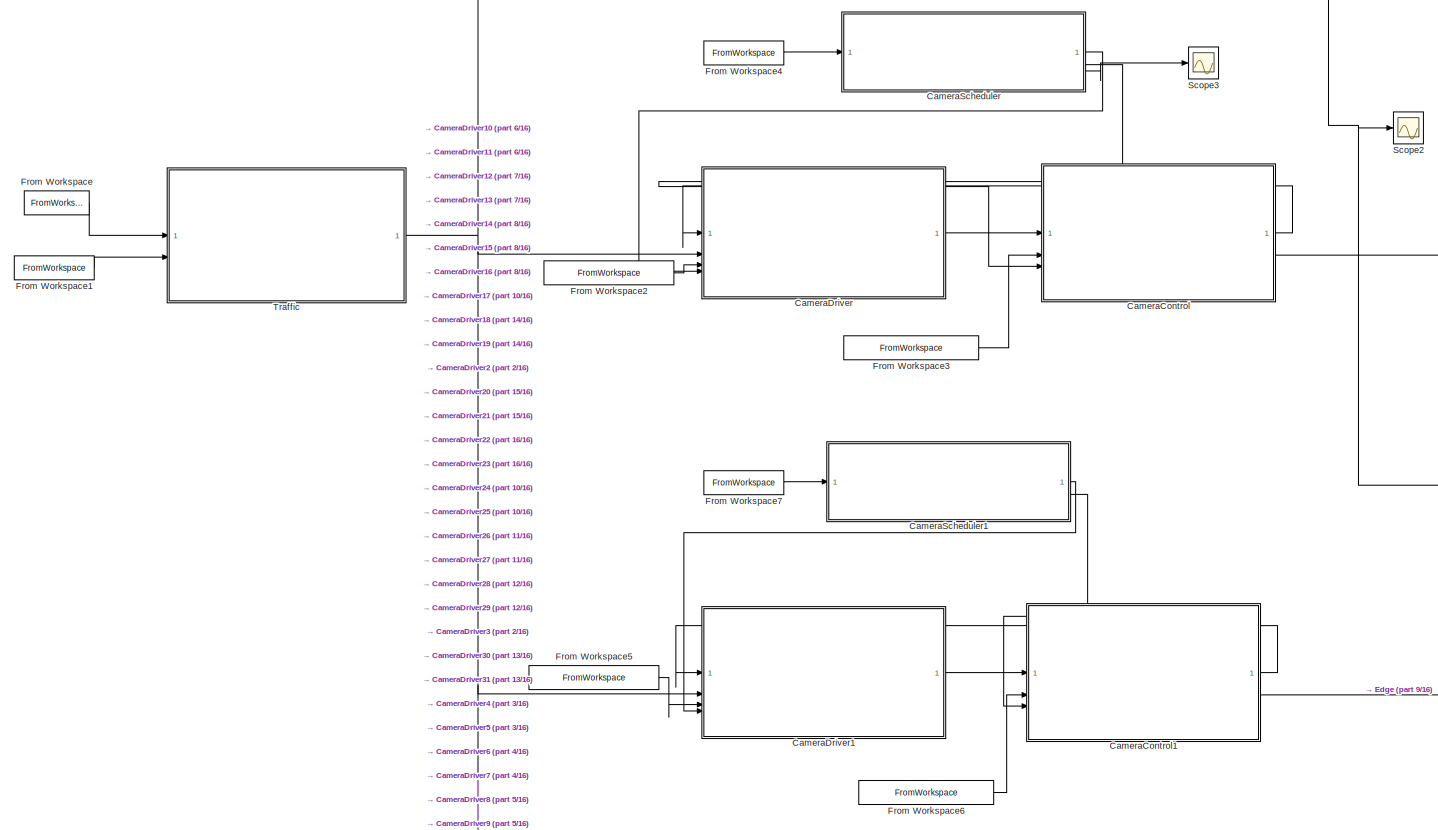
[diagram: root canvas - part 1/16, top left region]
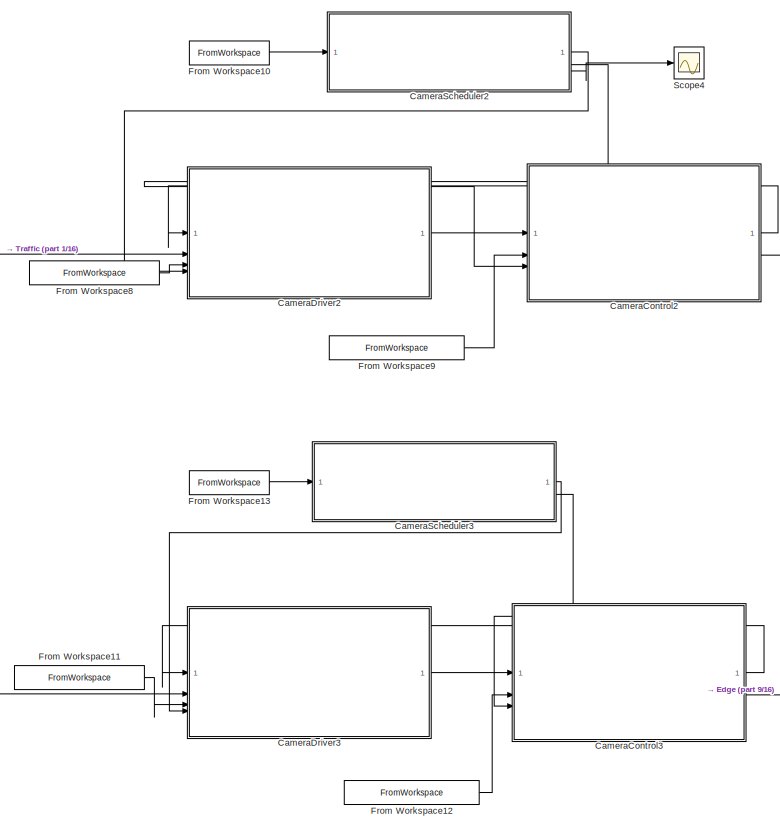
[diagram: root canvas - part 2/16, top center region]
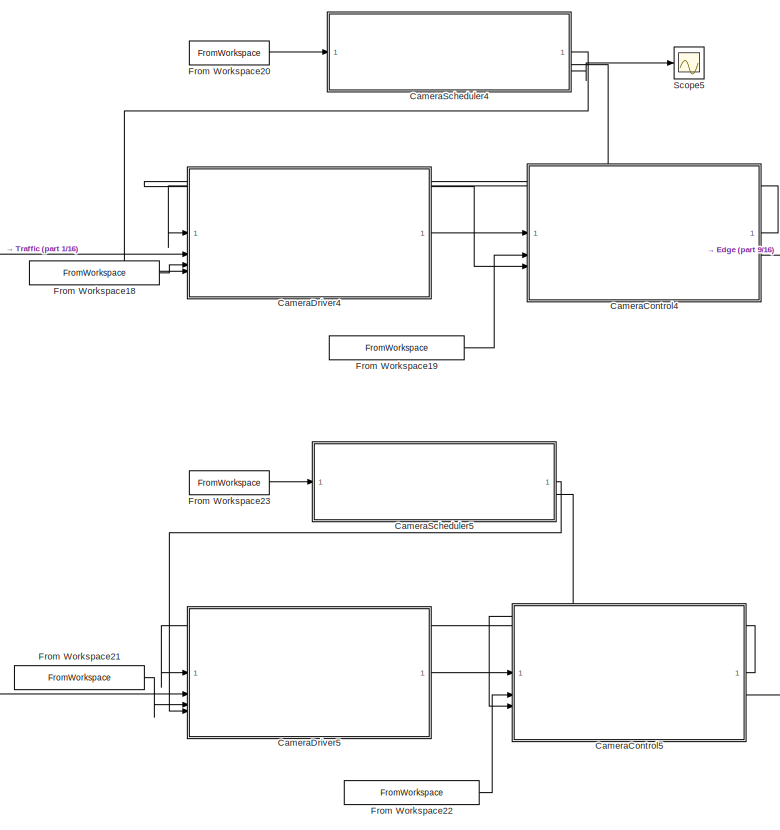
[diagram: root canvas - part 3/16, top center region]
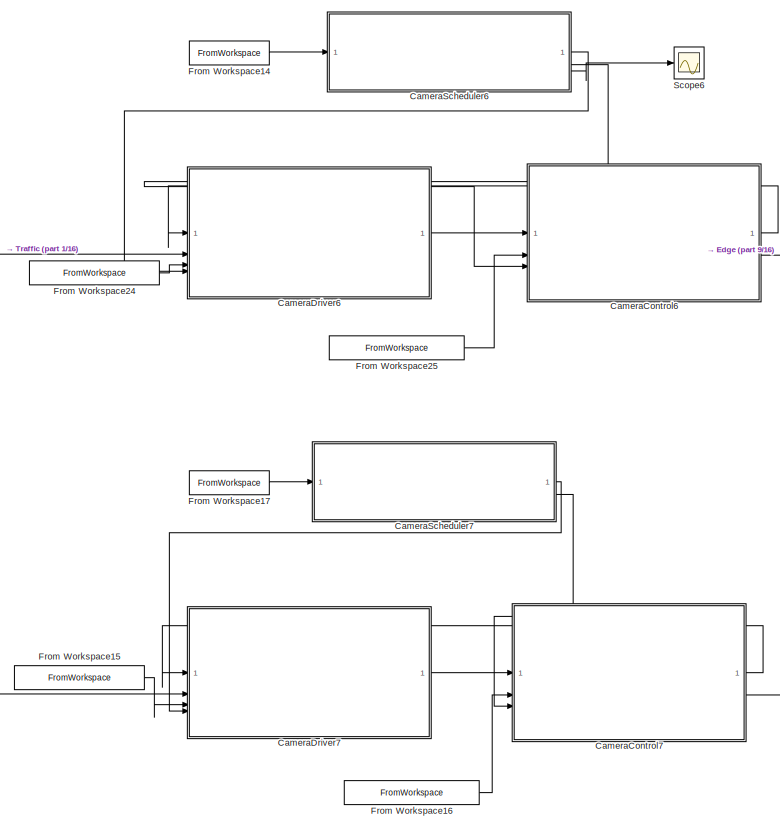
[diagram: root canvas - part 4/16, top center region]
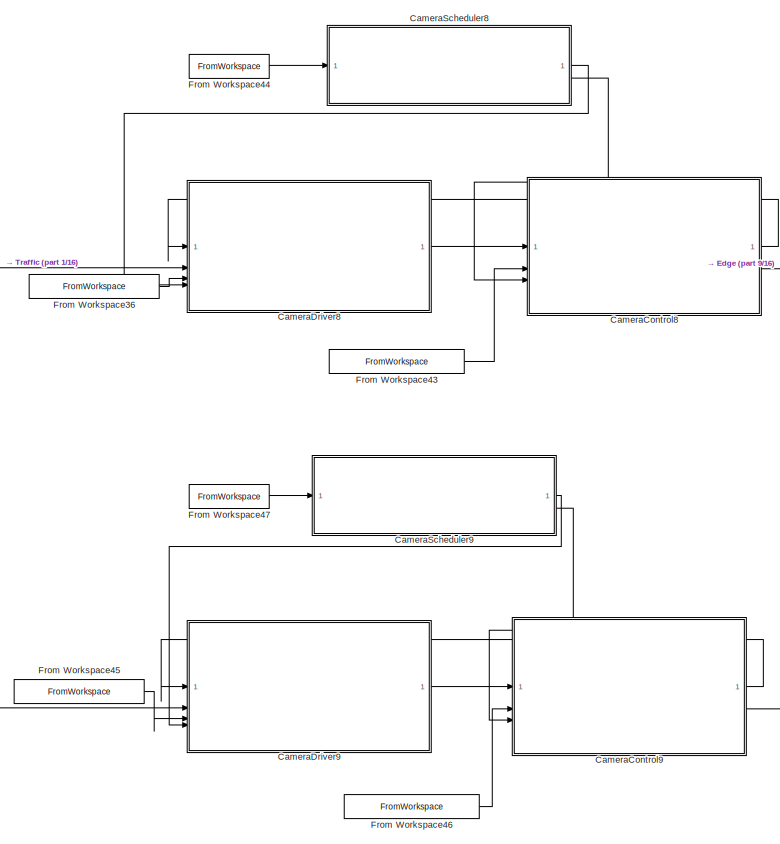
[diagram: root canvas - part 5/16, top center region]
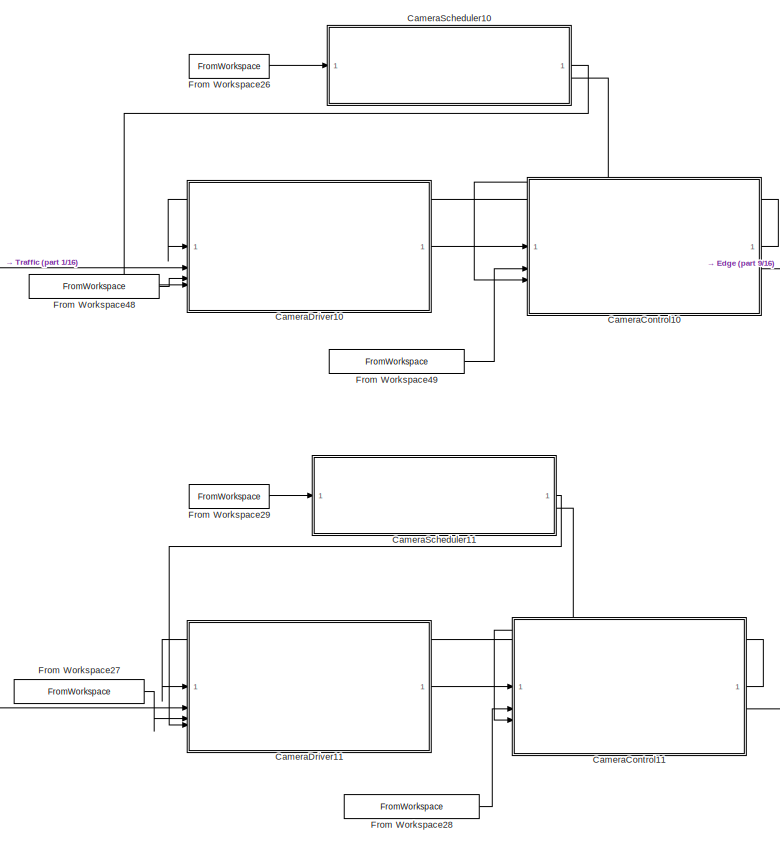
[diagram: root canvas - part 6/16, central region]
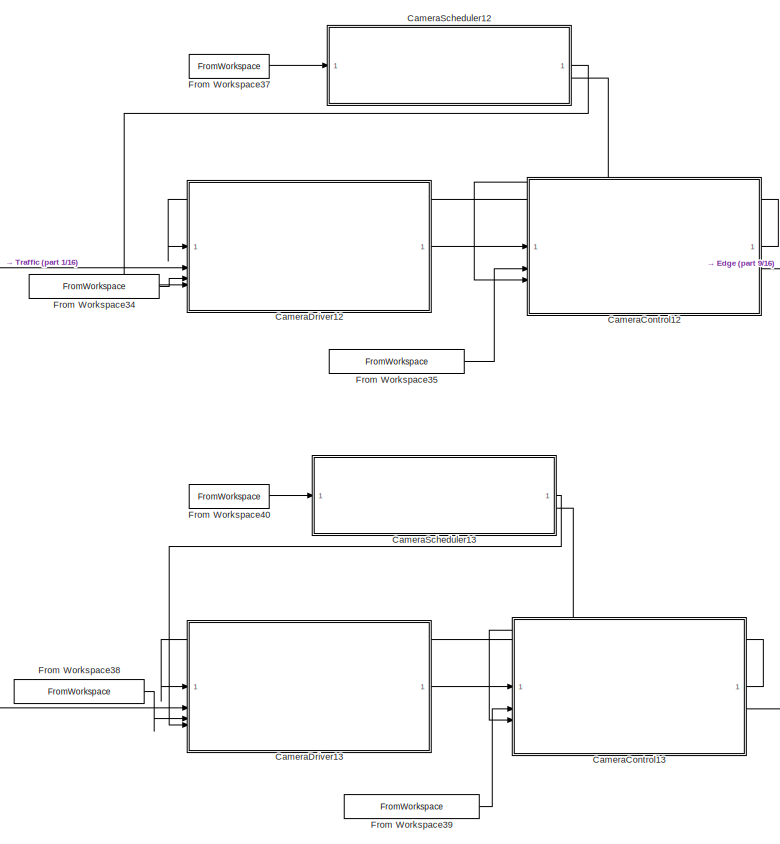
[diagram: root canvas - part 7/16, central region]
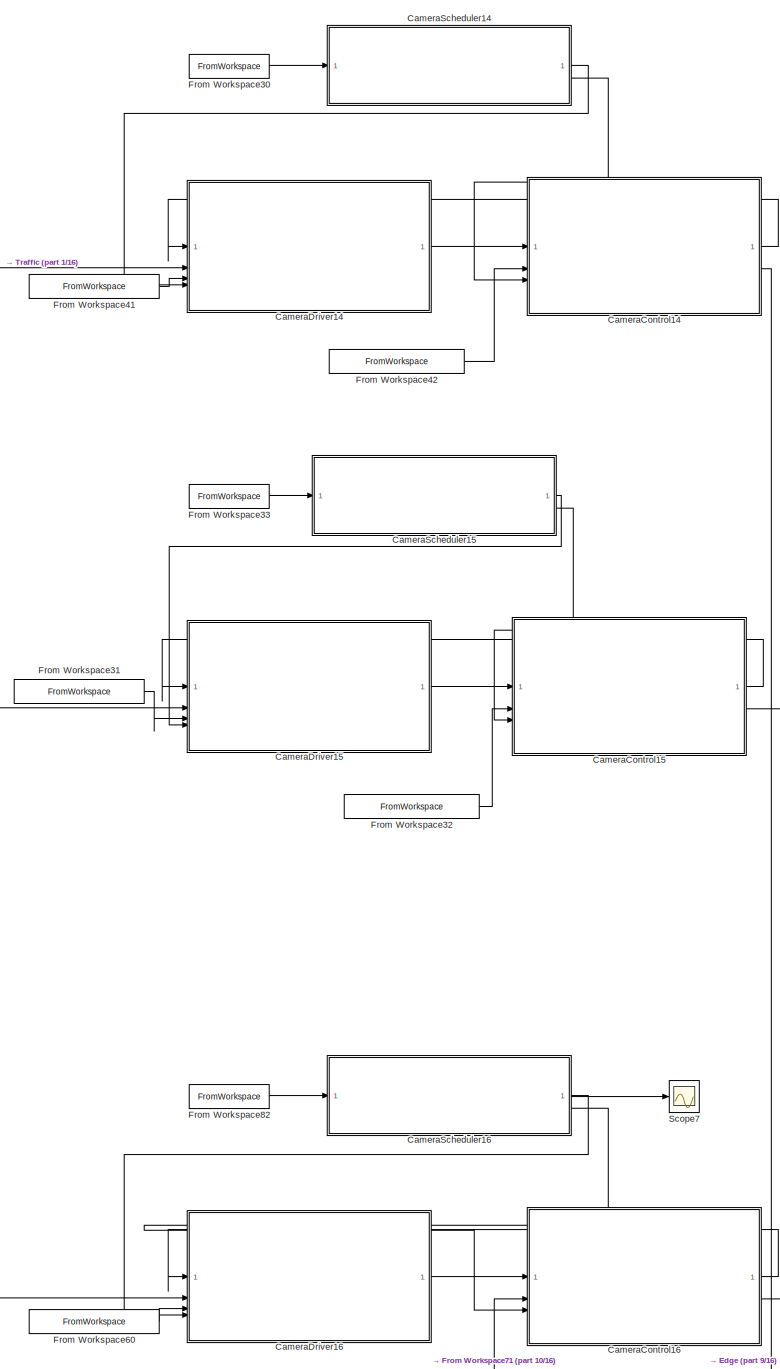
[diagram: root canvas - part 8/16, central region]
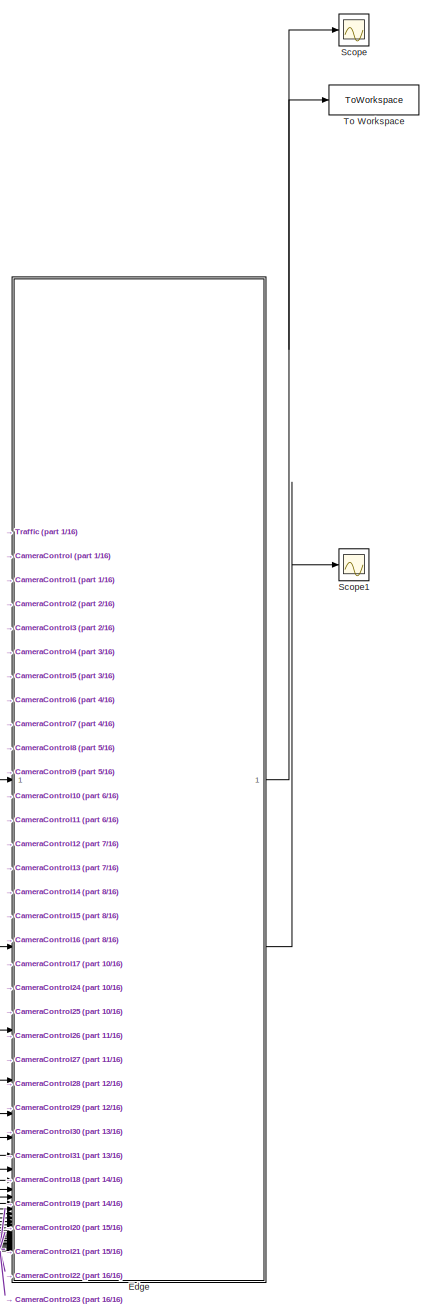
[diagram: root canvas - part 9/16, middle right region]
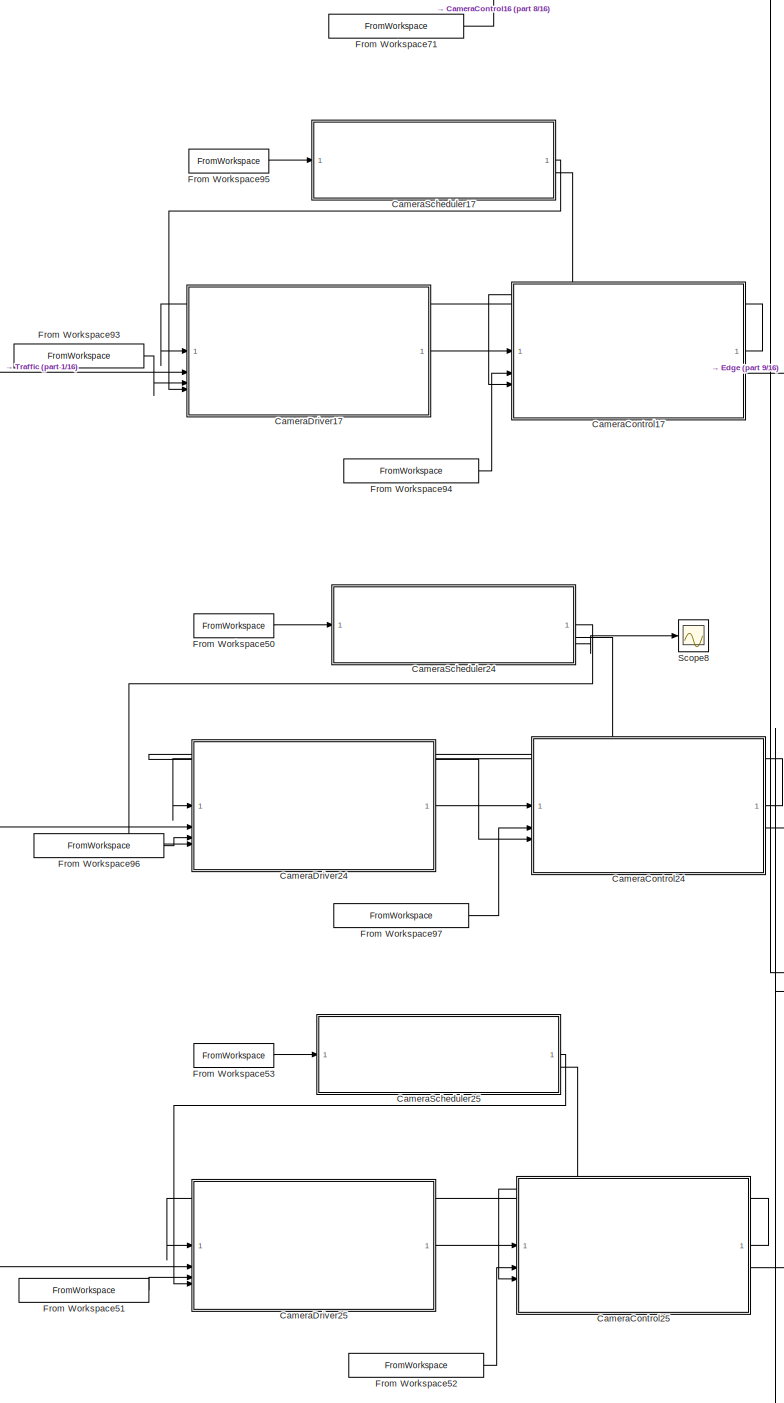
[diagram: root canvas - part 10/16, central region]
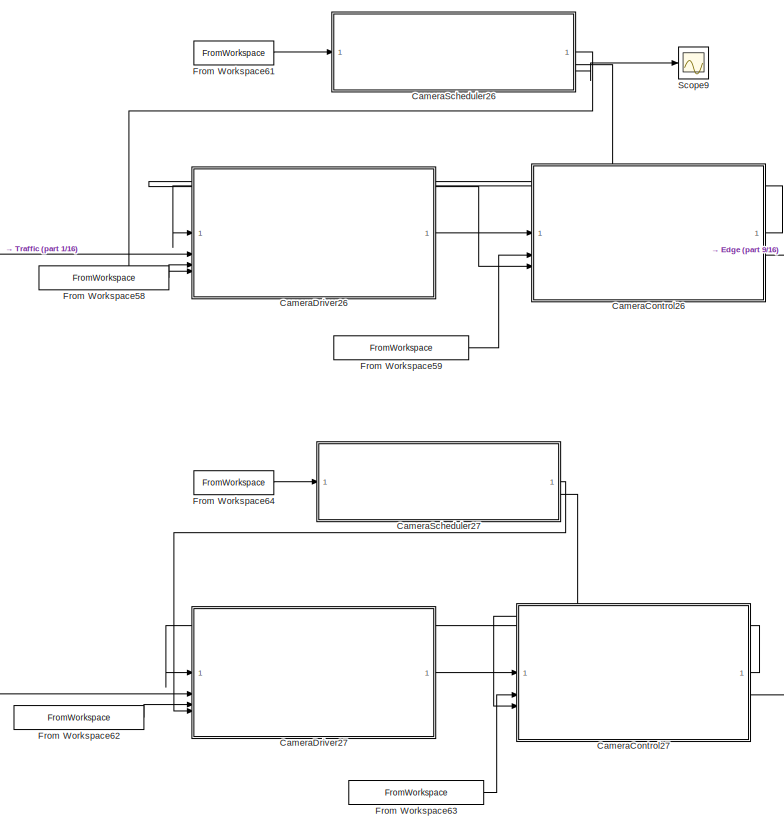
[diagram: root canvas - part 11/16, central region]
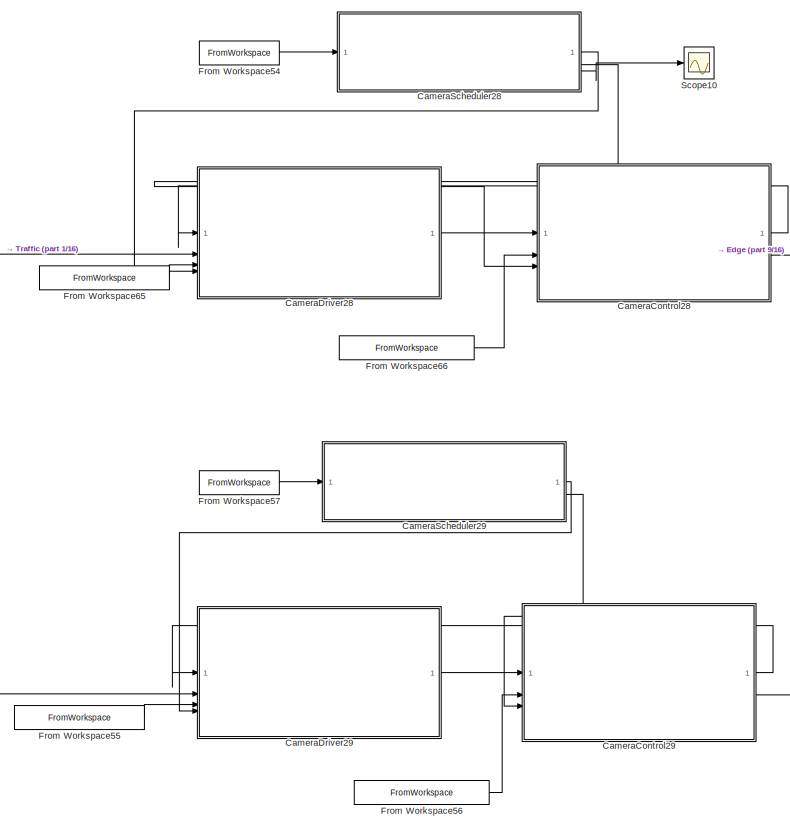
[diagram: root canvas - part 12/16, bottom center region]
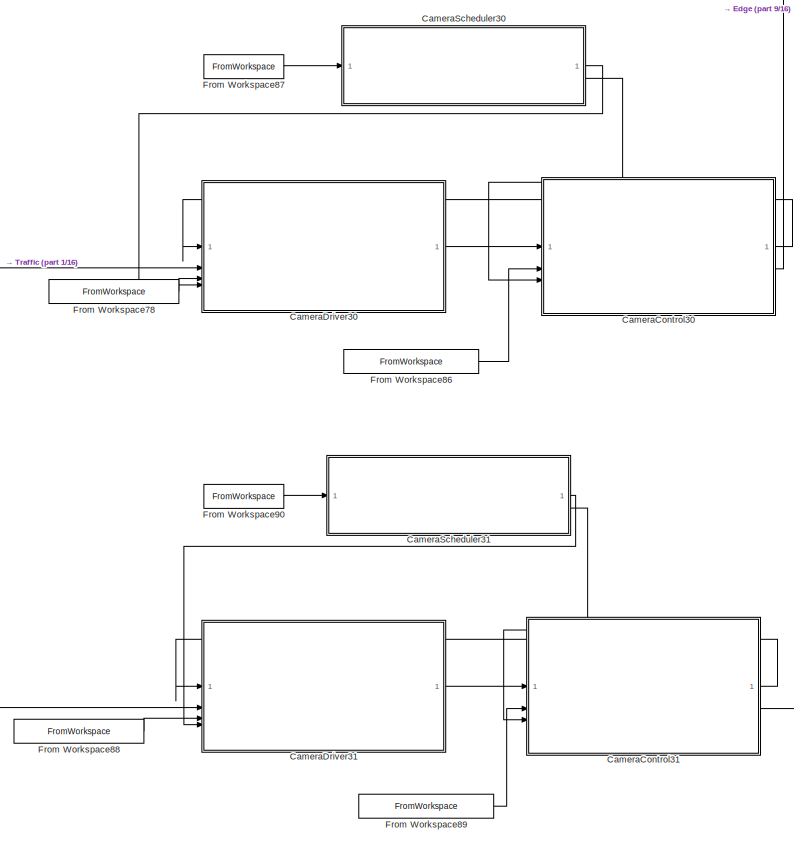
[diagram: root canvas - part 13/16, bottom center region]
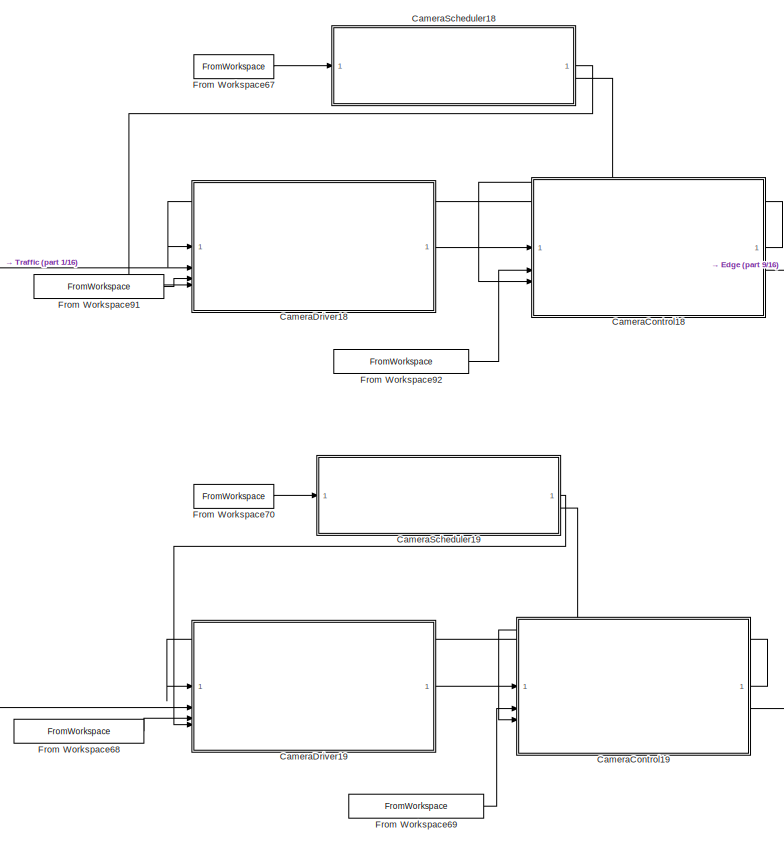
[diagram: root canvas - part 14/16, bottom center region]
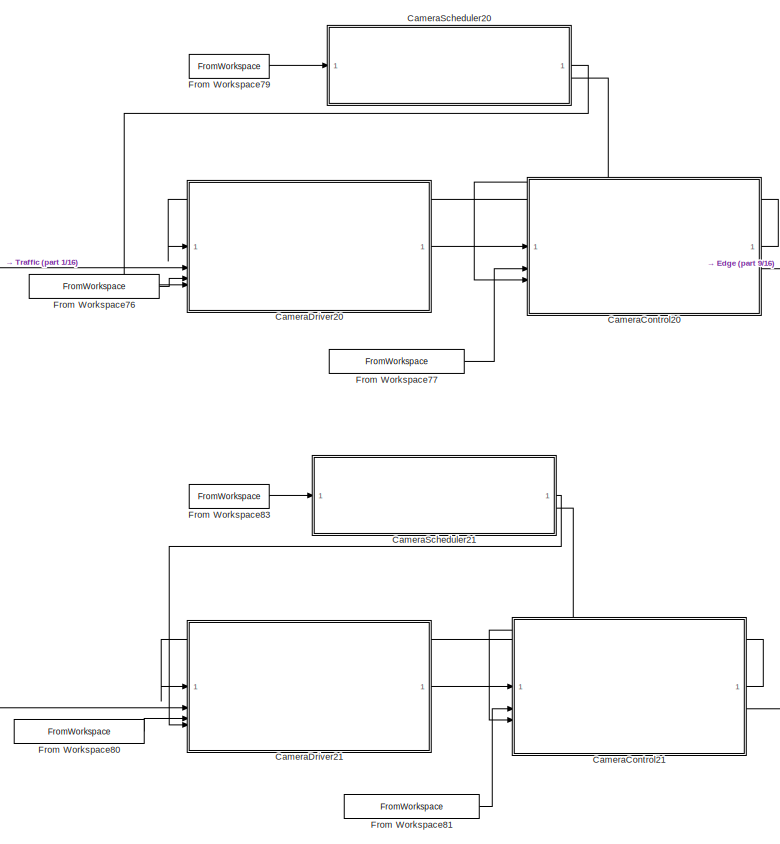
[diagram: root canvas - part 15/16, bottom center region]
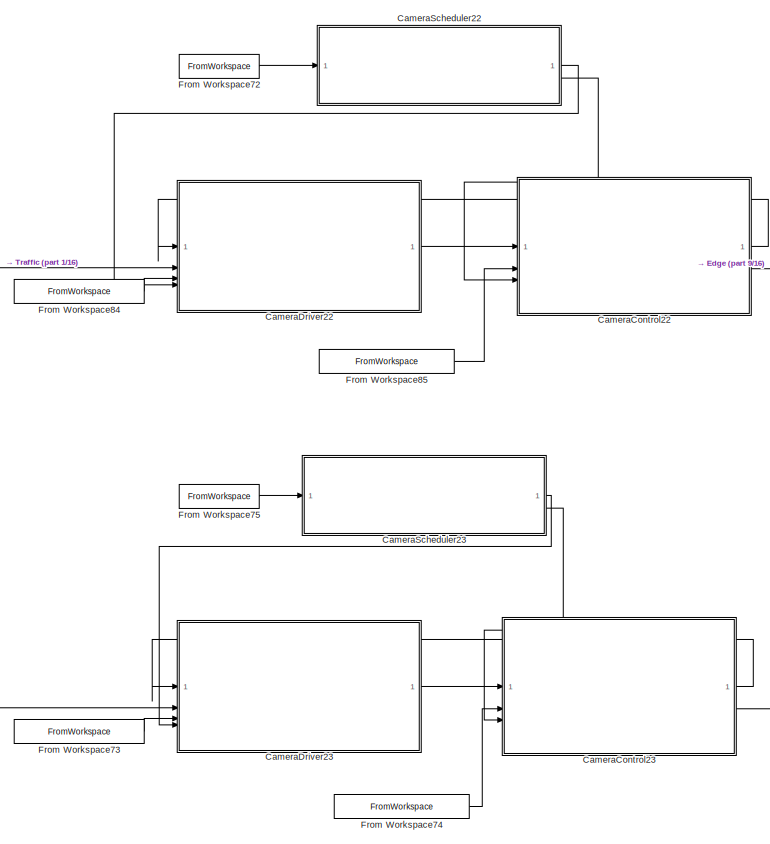
[diagram: root canvas - part 16/16, bottom center region]
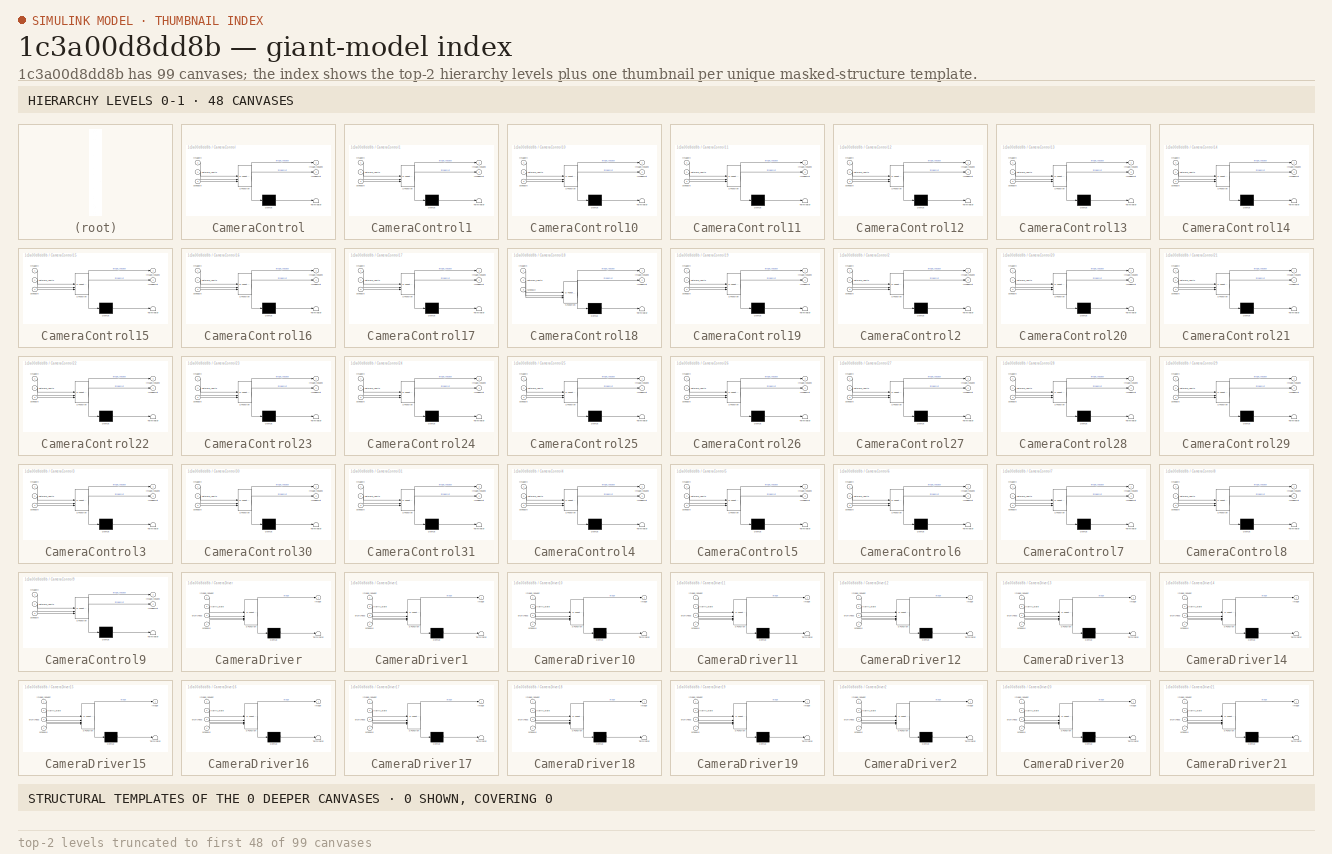
[diagram: thumbnail index - top-2 hierarchy levels (99 canvases (first 48 of 99 shown)) + 0 structural-template representatives of the remaining 0 canvases]
MODEL slx_1c3a00d8dd8b
KIND model
CONFIG AbsTol = auto
CONFIG EnableMultiTasking = off
CONFIG FixedStep = auto
CONFIG MaxStep = auto
CONFIG MinStep = auto
CONFIG RelTol = 1e-3
CONFIG SampleTimeConstraint = Unconstrained
CONFIG SolverName = VariableStepAuto
CONFIG StartTime = 0.0
CONFIG StopTime = 3.0
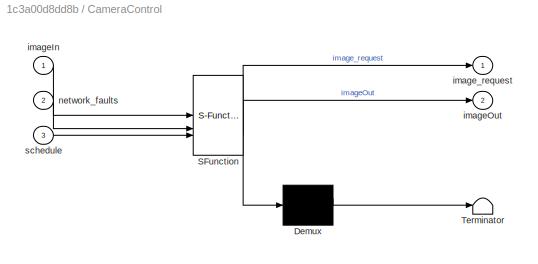
BLOCK [SubSystem] CameraControl
  ErrorFcn = Stateflow.Translate.translate
  PermitHierarchicalResolution = ExplicitOnly
  PortSchema = {"entries":[{"content":{"sides":[{"content":{"connectorIds":["In3","In1","In2"]},"type":"ConnectorPlacement.EquallySpacedRectSide","uuid":"ab620818-a51b-4a3c-9b00-600c4a6c30a0"},{"content":{"connectorIds":["Out1","Out2"],"side":"RIGHT"},"type":"ConnectorPlacement.EquallySpacedRectSide","uuid":"fd7d4612-1aa1-44dc-acf4-0ffdcf3f06ab"},{"content":{"side":"TOP"},"type":"ConnectorPlacement.EquallySpaced...<+241ch>  <repeated x32 — deduplicated; at blocks: CameraControl, CameraControl1, CameraControl10, CameraControl11, CameraControl12, CameraControl13, CameraControl14, CameraControl15, CameraControl16, CameraControl17, CameraControl18, CameraControl19, CameraControl2, CameraControl20, CameraControl21, CameraControl22, +16 more>
  SFBlockType = Chart
  TreatAsAtomicUnit = on
BLOCK [Demux] CameraControl/ Demux 
  Outputs = 1
BLOCK [S-Function] CameraControl/ SFunction 
  EnableBusSupport = on
  FunctionName = sf_sfun
  InputPortMessageModes = m,n,m
  OutputPortMessageModes = n,n,m
  PortCounts = [3 3]
  SFcnIsStateOwnerBlock = off
  SFunctionDeploymentMode = off
  Tag = Stateflow S-Function 2
BLOCK [Terminator] CameraControl/ Terminator 
BLOCK [Inport] CameraControl/imageIn
BLOCK [Outport] CameraControl/imageOut
  Port = 2
BLOCK [Outport] CameraControl/image_request
BLOCK [Inport] CameraControl/network_faults
  Port = 2
BLOCK [Inport] CameraControl/schedule
  Port = 3
BLOCK [SubSystem] CameraControl1
  ErrorFcn = Stateflow.Translate.translate
  PermitHierarchicalResolution = ExplicitOnly
  SFBlockType = Chart
  TreatAsAtomicUnit = on
BLOCK [Demux] CameraControl1/ Demux 
  Outputs = 1
BLOCK [S-Function] CameraControl1/ SFunction 
  EnableBusSupport = on
  FunctionName = sf_sfun
  InputPortMessageModes = m,n,m
  OutputPortMessageModes = n,n,m
  PortCounts = [3 3]
  SFcnIsStateOwnerBlock = off
  SFunctionDeploymentMode = off
  Tag = Stateflow S-Function 6
BLOCK [Terminator] CameraControl1/ Terminator 
BLOCK [Inport] CameraControl1/imageIn
BLOCK [Outport] CameraControl1/imageOut
  Port = 2
BLOCK [Outport] CameraControl1/image_request
BLOCK [Inport] CameraControl1/network_faults
  Port = 2
BLOCK [Inport] CameraControl1/schedule
  Port = 3
BLOCK [SubSystem] CameraControl10
  ErrorFcn = Stateflow.Translate.translate
  PermitHierarchicalResolution = ExplicitOnly
  SFBlockType = Chart
  TreatAsAtomicUnit = on
BLOCK [Demux] CameraControl10/ Demux 
  Outputs = 1
BLOCK [S-Function] CameraControl10/ SFunction 
  EnableBusSupport = on
  FunctionName = sf_sfun
  InputPortMessageModes = m,n,m
  OutputPortMessageModes = n,n,m
  PortCounts = [3 3]
  SFcnIsStateOwnerBlock = off
  SFunctionDeploymentMode = off
  Tag = Stateflow S-Function 27
BLOCK [Terminator] CameraControl10/ Terminator 
BLOCK [Inport] CameraControl10/imageIn
BLOCK [Outport] CameraControl10/imageOut
  Port = 2
BLOCK [Outport] CameraControl10/image_request
BLOCK [Inport] CameraControl10/network_faults
  Port = 2
BLOCK [Inport] CameraControl10/schedule
  Port = 3
BLOCK [SubSystem] CameraControl11
  ErrorFcn = Stateflow.Translate.translate
  PermitHierarchicalResolution = ExplicitOnly
  SFBlockType = Chart
  TreatAsAtomicUnit = on
BLOCK [Demux] CameraControl11/ Demux 
  Outputs = 1
BLOCK [S-Function] CameraControl11/ SFunction 
  EnableBusSupport = on
  FunctionName = sf_sfun
  InputPortMessageModes = m,n,m
  OutputPortMessageModes = n,n,m
  PortCounts = [3 3]
  SFcnIsStateOwnerBlock = off
  SFunctionDeploymentMode = off
  Tag = Stateflow S-Function 28
BLOCK [Terminator] CameraControl11/ Terminator 
BLOCK [Inport] CameraControl11/imageIn
BLOCK [Outport] CameraControl11/imageOut
  Port = 2
BLOCK [Outport] CameraControl11/image_request
BLOCK [Inport] CameraControl11/network_faults
  Port = 2
BLOCK [Inport] CameraControl11/schedule
  Port = 3
BLOCK [SubSystem] CameraControl12
  ErrorFcn = Stateflow.Translate.translate
  PermitHierarchicalResolution = ExplicitOnly
  SFBlockType = Chart
  TreatAsAtomicUnit = on
BLOCK [Demux] CameraControl12/ Demux 
  Outputs = 1
BLOCK [S-Function] CameraControl12/ SFunction 
  EnableBusSupport = on
  FunctionName = sf_sfun
  InputPortMessageModes = m,n,m
  OutputPortMessageModes = n,n,m
  PortCounts = [3 3]
  SFcnIsStateOwnerBlock = off
  SFunctionDeploymentMode = off
  Tag = Stateflow S-Function 29
BLOCK [Terminator] CameraControl12/ Terminator 
BLOCK [Inport] CameraControl12/imageIn
BLOCK [Outport] CameraControl12/imageOut
  Port = 2
BLOCK [Outport] CameraControl12/image_request
BLOCK [Inport] CameraControl12/network_faults
  Port = 2
BLOCK [Inport] CameraControl12/schedule
  Port = 3
BLOCK [SubSystem] CameraControl13
  ErrorFcn = Stateflow.Translate.translate
  PermitHierarchicalResolution = ExplicitOnly
  SFBlockType = Chart
  TreatAsAtomicUnit = on
BLOCK [Demux] CameraControl13/ Demux 
  Outputs = 1
BLOCK [S-Function] CameraControl13/ SFunction 
  EnableBusSupport = on
  FunctionName = sf_sfun
  InputPortMessageModes = m,n,m
  OutputPortMessageModes = n,n,m
  PortCounts = [3 3]
  SFcnIsStateOwnerBlock = off
  SFunctionDeploymentMode = off
  Tag = Stateflow S-Function 30
BLOCK [Terminator] CameraControl13/ Terminator 
BLOCK [Inport] CameraControl13/imageIn
BLOCK [Outport] CameraControl13/imageOut
  Port = 2
BLOCK [Outport] CameraControl13/image_request
BLOCK [Inport] CameraControl13/network_faults
  Port = 2
BLOCK [Inport] CameraControl13/schedule
  Port = 3
BLOCK [SubSystem] CameraControl14
  ErrorFcn = Stateflow.Translate.translate
  PermitHierarchicalResolution = ExplicitOnly
  SFBlockType = Chart
  TreatAsAtomicUnit = on
BLOCK [Demux] CameraControl14/ Demux 
  Outputs = 1
BLOCK [S-Function] CameraControl14/ SFunction 
  EnableBusSupport = on
  FunctionName = sf_sfun
  InputPortMessageModes = m,n,m
  OutputPortMessageModes = n,n,m
  PortCounts = [3 3]
  SFcnIsStateOwnerBlock = off
  SFunctionDeploymentMode = off
  Tag = Stateflow S-Function 31
BLOCK [Terminator] CameraControl14/ Terminator 
BLOCK [Inport] CameraControl14/imageIn
BLOCK [Outport] CameraControl14/imageOut
  Port = 2
BLOCK [Outport] CameraControl14/image_request
BLOCK [Inport] CameraControl14/network_faults
  Port = 2
BLOCK [Inport] CameraControl14/schedule
  Port = 3
BLOCK [SubSystem] CameraControl15
  ErrorFcn = Stateflow.Translate.translate
  PermitHierarchicalResolution = ExplicitOnly
  SFBlockType = Chart
  TreatAsAtomicUnit = on
BLOCK [Demux] CameraControl15/ Demux 
  Outputs = 1
BLOCK [S-Function] CameraControl15/ SFunction 
  EnableBusSupport = on
  FunctionName = sf_sfun
  InputPortMessageModes = m,n,m
  OutputPortMessageModes = n,n,m
  PortCounts = [3 3]
  SFcnIsStateOwnerBlock = off
  SFunctionDeploymentMode = off
  Tag = Stateflow S-Function 32
BLOCK [Terminator] CameraControl15/ Terminator 
BLOCK [Inport] CameraControl15/imageIn
BLOCK [Outport] CameraControl15/imageOut
  Port = 2
BLOCK [Outport] CameraControl15/image_request
BLOCK [Inport] CameraControl15/network_faults
  Port = 2
BLOCK [Inport] CameraControl15/schedule
  Port = 3
BLOCK [SubSystem] CameraControl16
  ErrorFcn = Stateflow.Translate.translate
  PermitHierarchicalResolution = ExplicitOnly
  SFBlockType = Chart
  TreatAsAtomicUnit = on
BLOCK [Demux] CameraControl16/ Demux 
  Outputs = 1
BLOCK [S-Function] CameraControl16/ SFunction 
  EnableBusSupport = on
  FunctionName = sf_sfun
  InputPortMessageModes = m,n,m
  OutputPortMessageModes = n,n,m
  PortCounts = [3 3]
  SFcnIsStateOwnerBlock = off
  SFunctionDeploymentMode = off
  Tag = Stateflow S-Function 51
BLOCK [Terminator] CameraControl16/ Terminator 
BLOCK [Inport] CameraControl16/imageIn
BLOCK [Outport] CameraControl16/imageOut
  Port = 2
BLOCK [Outport] CameraControl16/image_request
BLOCK [Inport] CameraControl16/network_faults
  Port = 2
BLOCK [Inport] CameraControl16/schedule
  Port = 3
BLOCK [SubSystem] CameraControl17
  ErrorFcn = Stateflow.Translate.translate
  PermitHierarchicalResolution = ExplicitOnly
  SFBlockType = Chart
  TreatAsAtomicUnit = on
BLOCK [Demux] CameraControl17/ Demux 
  Outputs = 1
BLOCK [S-Function] CameraControl17/ SFunction 
  EnableBusSupport = on
  FunctionName = sf_sfun
  InputPortMessageModes = m,n,m
  OutputPortMessageModes = n,n,m
  PortCounts = [3 3]
  SFcnIsStateOwnerBlock = off
  SFunctionDeploymentMode = off
  Tag = Stateflow S-Function 52
BLOCK [Terminator] CameraControl17/ Terminator 
BLOCK [Inport] CameraControl17/imageIn
BLOCK [Outport] CameraControl17/imageOut
  Port = 2
BLOCK [Outport] CameraControl17/image_request
BLOCK [Inport] CameraControl17/network_faults
  Port = 2
BLOCK [Inport] CameraControl17/schedule
  Port = 3
BLOCK [SubSystem] CameraControl18
  ErrorFcn = Stateflow.Translate.translate
  PermitHierarchicalResolution = ExplicitOnly
  SFBlockType = Chart
  TreatAsAtomicUnit = on
BLOCK [Demux] CameraControl18/ Demux 
  Outputs = 1
BLOCK [S-Function] CameraControl18/ SFunction 
  EnableBusSupport = on
  FunctionName = sf_sfun
  InputPortMessageModes = m,n,m
  OutputPortMessageModes = n,n,m
  PortCounts = [3 3]
  SFcnIsStateOwnerBlock = off
  SFunctionDeploymentMode = off
  Tag = Stateflow S-Function 53
BLOCK [Terminator] CameraControl18/ Terminator 
BLOCK [Inport] CameraControl18/imageIn
BLOCK [Outport] CameraControl18/imageOut
  Port = 2
BLOCK [Outport] CameraControl18/image_request
BLOCK [Inport] CameraControl18/network_faults
  Port = 2
BLOCK [Inport] CameraControl18/schedule
  Port = 3
BLOCK [SubSystem] CameraControl19
  ErrorFcn = Stateflow.Translate.translate
  PermitHierarchicalResolution = ExplicitOnly
  SFBlockType = Chart
  TreatAsAtomicUnit = on
BLOCK [Demux] CameraControl19/ Demux 
  Outputs = 1
BLOCK [S-Function] CameraControl19/ SFunction 
  EnableBusSupport = on
  FunctionName = sf_sfun
  InputPortMessageModes = m,n,m
  OutputPortMessageModes = n,n,m
  PortCounts = [3 3]
  SFcnIsStateOwnerBlock = off
  SFunctionDeploymentMode = off
  Tag = Stateflow S-Function 54
BLOCK [Terminator] CameraControl19/ Terminator 
BLOCK [Inport] CameraControl19/imageIn
BLOCK [Outport] CameraControl19/imageOut
  Port = 2
BLOCK [Outport] CameraControl19/image_request
BLOCK [Inport] CameraControl19/network_faults
  Port = 2
BLOCK [Inport] CameraControl19/schedule
  Port = 3
BLOCK [SubSystem] CameraControl2
  ErrorFcn = Stateflow.Translate.translate
  PermitHierarchicalResolution = ExplicitOnly
  SFBlockType = Chart
  TreatAsAtomicUnit = on
BLOCK [Demux] CameraControl2/ Demux 
  Outputs = 1
BLOCK [S-Function] CameraControl2/ SFunction 
  EnableBusSupport = on
  FunctionName = sf_sfun
  InputPortMessageModes = m,n,m
  OutputPortMessageModes = n,n,m
  PortCounts = [3 3]
  SFcnIsStateOwnerBlock = off
  SFunctionDeploymentMode = off
  Tag = Stateflow S-Function 9
BLOCK [Terminator] CameraControl2/ Terminator 
BLOCK [Inport] CameraControl2/imageIn
BLOCK [Outport] CameraControl2/imageOut
  Port = 2
BLOCK [Outport] CameraControl2/image_request
BLOCK [Inport] CameraControl2/network_faults
  Port = 2
BLOCK [Inport] CameraControl2/schedule
  Port = 3
BLOCK [SubSystem] CameraControl20
  ErrorFcn = Stateflow.Translate.translate
  PermitHierarchicalResolution = ExplicitOnly
  SFBlockType = Chart
  TreatAsAtomicUnit = on
BLOCK [Demux] CameraControl20/ Demux 
  Outputs = 1
BLOCK [S-Function] CameraControl20/ SFunction 
  EnableBusSupport = on
  FunctionName = sf_sfun
  InputPortMessageModes = m,n,m
  OutputPortMessageModes = n,n,m
  PortCounts = [3 3]
  SFcnIsStateOwnerBlock = off
  SFunctionDeploymentMode = off
  Tag = Stateflow S-Function 55
BLOCK [Terminator] CameraControl20/ Terminator 
BLOCK [Inport] CameraControl20/imageIn
BLOCK [Outport] CameraControl20/imageOut
  Port = 2
BLOCK [Outport] CameraControl20/image_request
BLOCK [Inport] CameraControl20/network_faults
  Port = 2
BLOCK [Inport] CameraControl20/schedule
  Port = 3
BLOCK [SubSystem] CameraControl21
  ErrorFcn = Stateflow.Translate.translate
  PermitHierarchicalResolution = ExplicitOnly
  SFBlockType = Chart
  TreatAsAtomicUnit = on
BLOCK [Demux] CameraControl21/ Demux 
  Outputs = 1
BLOCK [S-Function] CameraControl21/ SFunction 
  EnableBusSupport = on
  FunctionName = sf_sfun
  InputPortMessageModes = m,n,m
  OutputPortMessageModes = n,n,m
  PortCounts = [3 3]
  SFcnIsStateOwnerBlock = off
  SFunctionDeploymentMode = off
  Tag = Stateflow S-Function 56
BLOCK [Terminator] CameraControl21/ Terminator 
BLOCK [Inport] CameraControl21/imageIn
BLOCK [Outport] CameraControl21/imageOut
  Port = 2
BLOCK [Outport] CameraControl21/image_request
BLOCK [Inport] CameraControl21/network_faults
  Port = 2
BLOCK [Inport] CameraControl21/schedule
  Port = 3
BLOCK [SubSystem] CameraControl22
  ErrorFcn = Stateflow.Translate.translate
  PermitHierarchicalResolution = ExplicitOnly
  SFBlockType = Chart
  TreatAsAtomicUnit = on
BLOCK [Demux] CameraControl22/ Demux 
  Outputs = 1
BLOCK [S-Function] CameraControl22/ SFunction 
  EnableBusSupport = on
  FunctionName = sf_sfun
  InputPortMessageModes = m,n,m
  OutputPortMessageModes = n,n,m
  PortCounts = [3 3]
  SFcnIsStateOwnerBlock = off
  SFunctionDeploymentMode = off
  Tag = Stateflow S-Function 57
BLOCK [Terminator] CameraControl22/ Terminator 
BLOCK [Inport] CameraControl22/imageIn
BLOCK [Outport] CameraControl22/imageOut
  Port = 2
BLOCK [Outport] CameraControl22/image_request
BLOCK [Inport] CameraControl22/network_faults
  Port = 2
BLOCK [Inport] CameraControl22/schedule
  Port = 3
BLOCK [SubSystem] CameraControl23
  ErrorFcn = Stateflow.Translate.translate
  PermitHierarchicalResolution = ExplicitOnly
  SFBlockType = Chart
  TreatAsAtomicUnit = on
BLOCK [Demux] CameraControl23/ Demux 
  Outputs = 1
BLOCK [S-Function] CameraControl23/ SFunction 
  EnableBusSupport = on
  FunctionName = sf_sfun
  InputPortMessageModes = m,n,m
  OutputPortMessageModes = n,n,m
  PortCounts = [3 3]
  SFcnIsStateOwnerBlock = off
  SFunctionDeploymentMode = off
  Tag = Stateflow S-Function 58
BLOCK [Terminator] CameraControl23/ Terminator 
BLOCK [Inport] CameraControl23/imageIn
BLOCK [Outport] CameraControl23/imageOut
  Port = 2
BLOCK [Outport] CameraControl23/image_request
BLOCK [Inport] CameraControl23/network_faults
  Port = 2
BLOCK [Inport] CameraControl23/schedule
  Port = 3
BLOCK [SubSystem] CameraControl24
  ErrorFcn = Stateflow.Translate.translate
  PermitHierarchicalResolution = ExplicitOnly
  SFBlockType = Chart
  TreatAsAtomicUnit = on
BLOCK [Demux] CameraControl24/ Demux 
  Outputs = 1
BLOCK [S-Function] CameraControl24/ SFunction 
  EnableBusSupport = on
  FunctionName = sf_sfun
  InputPortMessageModes = m,n,m
  OutputPortMessageModes = n,n,m
  PortCounts = [3 3]
  SFcnIsStateOwnerBlock = off
  SFunctionDeploymentMode = off
  Tag = Stateflow S-Function 59
BLOCK [Terminator] CameraControl24/ Terminator 
BLOCK [Inport] CameraControl24/imageIn
BLOCK [Outport] CameraControl24/imageOut
  Port = 2
BLOCK [Outport] CameraControl24/image_request
BLOCK [Inport] CameraControl24/network_faults
  Port = 2
BLOCK [Inport] CameraControl24/schedule
  Port = 3
BLOCK [SubSystem] CameraControl25
  ErrorFcn = Stateflow.Translate.translate
  PermitHierarchicalResolution = ExplicitOnly
  SFBlockType = Chart
  TreatAsAtomicUnit = on
BLOCK [Demux] CameraControl25/ Demux 
  Outputs = 1
BLOCK [S-Function] CameraControl25/ SFunction 
  EnableBusSupport = on
  FunctionName = sf_sfun
  InputPortMessageModes = m,n,m
  OutputPortMessageModes = n,n,m
  PortCounts = [3 3]
  SFcnIsStateOwnerBlock = off
  SFunctionDeploymentMode = off
  Tag = Stateflow S-Function 60
BLOCK [Terminator] CameraControl25/ Terminator 
BLOCK [Inport] CameraControl25/imageIn
BLOCK [Outport] CameraControl25/imageOut
  Port = 2
BLOCK [Outport] CameraControl25/image_request
BLOCK [Inport] CameraControl25/network_faults
  Port = 2
BLOCK [Inport] CameraControl25/schedule
  Port = 3
BLOCK [SubSystem] CameraControl26
  ErrorFcn = Stateflow.Translate.translate
  PermitHierarchicalResolution = ExplicitOnly
  SFBlockType = Chart
  TreatAsAtomicUnit = on
BLOCK [Demux] CameraControl26/ Demux 
  Outputs = 1
BLOCK [S-Function] CameraControl26/ SFunction 
  EnableBusSupport = on
  FunctionName = sf_sfun
  InputPortMessageModes = m,n,m
  OutputPortMessageModes = n,n,m
  PortCounts = [3 3]
  SFcnIsStateOwnerBlock = off
  SFunctionDeploymentMode = off
  Tag = Stateflow S-Function 61
BLOCK [Terminator] CameraControl26/ Terminator 
BLOCK [Inport] CameraControl26/imageIn
BLOCK [Outport] CameraControl26/imageOut
  Port = 2
BLOCK [Outport] CameraControl26/image_request
BLOCK [Inport] CameraControl26/network_faults
  Port = 2
BLOCK [Inport] CameraControl26/schedule
  Port = 3
BLOCK [SubSystem] CameraControl27
  ErrorFcn = Stateflow.Translate.translate
  PermitHierarchicalResolution = ExplicitOnly
  SFBlockType = Chart
  TreatAsAtomicUnit = on
BLOCK [Demux] CameraControl27/ Demux 
  Outputs = 1
BLOCK [S-Function] CameraControl27/ SFunction 
  EnableBusSupport = on
  FunctionName = sf_sfun
  InputPortMessageModes = m,n,m
  OutputPortMessageModes = n,n,m
  PortCounts = [3 3]
  SFcnIsStateOwnerBlock = off
  SFunctionDeploymentMode = off
  Tag = Stateflow S-Function 62
BLOCK [Terminator] CameraControl27/ Terminator 
BLOCK [Inport] CameraControl27/imageIn
BLOCK [Outport] CameraControl27/imageOut
  Port = 2
BLOCK [Outport] CameraControl27/image_request
BLOCK [Inport] CameraControl27/network_faults
  Port = 2
BLOCK [Inport] CameraControl27/schedule
  Port = 3
BLOCK [SubSystem] CameraControl28
  ErrorFcn = Stateflow.Translate.translate
  PermitHierarchicalResolution = ExplicitOnly
  SFBlockType = Chart
  TreatAsAtomicUnit = on
BLOCK [Demux] CameraControl28/ Demux 
  Outputs = 1
BLOCK [S-Function] CameraControl28/ SFunction 
  EnableBusSupport = on
  FunctionName = sf_sfun
  InputPortMessageModes = m,n,m
  OutputPortMessageModes = n,n,m
  PortCounts = [3 3]
  SFcnIsStateOwnerBlock = off
  SFunctionDeploymentMode = off
  Tag = Stateflow S-Function 63
BLOCK [Terminator] CameraControl28/ Terminator 
BLOCK [Inport] CameraControl28/imageIn
BLOCK [Outport] CameraControl28/imageOut
  Port = 2
BLOCK [Outport] CameraControl28/image_request
BLOCK [Inport] CameraControl28/network_faults
  Port = 2
BLOCK [Inport] CameraControl28/schedule
  Port = 3
BLOCK [SubSystem] CameraControl29
  ErrorFcn = Stateflow.Translate.translate
  PermitHierarchicalResolution = ExplicitOnly
  SFBlockType = Chart
  TreatAsAtomicUnit = on
BLOCK [Demux] CameraControl29/ Demux 
  Outputs = 1
BLOCK [S-Function] CameraControl29/ SFunction 
  EnableBusSupport = on
  FunctionName = sf_sfun
  InputPortMessageModes = m,n,m
  OutputPortMessageModes = n,n,m
  PortCounts = [3 3]
  SFcnIsStateOwnerBlock = off
  SFunctionDeploymentMode = off
  Tag = Stateflow S-Function 64
BLOCK [Terminator] CameraControl29/ Terminator 
BLOCK [Inport] CameraControl29/imageIn
BLOCK [Outport] CameraControl29/imageOut
  Port = 2
BLOCK [Outport] CameraControl29/image_request
BLOCK [Inport] CameraControl29/network_faults
  Port = 2
BLOCK [Inport] CameraControl29/schedule
  Port = 3
BLOCK [SubSystem] CameraControl3
  ErrorFcn = Stateflow.Translate.translate
  PermitHierarchicalResolution = ExplicitOnly
  SFBlockType = Chart
  TreatAsAtomicUnit = on
BLOCK [Demux] CameraControl3/ Demux 
  Outputs = 1
BLOCK [S-Function] CameraControl3/ SFunction 
  EnableBusSupport = on
  FunctionName = sf_sfun
  InputPortMessageModes = m,n,m
  OutputPortMessageModes = n,n,m
  PortCounts = [3 3]
  SFcnIsStateOwnerBlock = off
  SFunctionDeploymentMode = off
  Tag = Stateflow S-Function 10
BLOCK [Terminator] CameraControl3/ Terminator 
BLOCK [Inport] CameraControl3/imageIn
BLOCK [Outport] CameraControl3/imageOut
  Port = 2
BLOCK [Outport] CameraControl3/image_request
BLOCK [Inport] CameraControl3/network_faults
  Port = 2
BLOCK [Inport] CameraControl3/schedule
  Port = 3
BLOCK [SubSystem] CameraControl30
  ErrorFcn = Stateflow.Translate.translate
  PermitHierarchicalResolution = ExplicitOnly
  SFBlockType = Chart
  TreatAsAtomicUnit = on
BLOCK [Demux] CameraControl30/ Demux 
  Outputs = 1
BLOCK [S-Function] CameraControl30/ SFunction 
  EnableBusSupport = on
  FunctionName = sf_sfun
  InputPortMessageModes = m,n,m
  OutputPortMessageModes = n,n,m
  PortCounts = [3 3]
  SFcnIsStateOwnerBlock = off
  SFunctionDeploymentMode = off
  Tag = Stateflow S-Function 65
BLOCK [Terminator] CameraControl30/ Terminator 
BLOCK [Inport] CameraControl30/imageIn
BLOCK [Outport] CameraControl30/imageOut
  Port = 2
BLOCK [Outport] CameraControl30/image_request
BLOCK [Inport] CameraControl30/network_faults
  Port = 2
BLOCK [Inport] CameraControl30/schedule
  Port = 3
BLOCK [SubSystem] CameraControl31
  ErrorFcn = Stateflow.Translate.translate
  PermitHierarchicalResolution = ExplicitOnly
  SFBlockType = Chart
  TreatAsAtomicUnit = on
BLOCK [Demux] CameraControl31/ Demux 
  Outputs = 1
BLOCK [S-Function] CameraControl31/ SFunction 
  EnableBusSupport = on
  FunctionName = sf_sfun
  InputPortMessageModes = m,n,m
  OutputPortMessageModes = n,n,m
  PortCounts = [3 3]
  SFcnIsStateOwnerBlock = off
  SFunctionDeploymentMode = off
  Tag = Stateflow S-Function 66
BLOCK [Terminator] CameraControl31/ Terminator 
BLOCK [Inport] CameraControl31/imageIn
BLOCK [Outport] CameraControl31/imageOut
  Port = 2
BLOCK [Outport] CameraControl31/image_request
BLOCK [Inport] CameraControl31/network_faults
  Port = 2
BLOCK [Inport] CameraControl31/schedule
  Port = 3
BLOCK [SubSystem] CameraControl4
  ErrorFcn = Stateflow.Translate.translate
  PermitHierarchicalResolution = ExplicitOnly
  SFBlockType = Chart
  TreatAsAtomicUnit = on
BLOCK [Demux] CameraControl4/ Demux 
  Outputs = 1
BLOCK [S-Function] CameraControl4/ SFunction 
  EnableBusSupport = on
  FunctionName = sf_sfun
  InputPortMessageModes = m,n,m
  OutputPortMessageModes = n,n,m
  PortCounts = [3 3]
  SFcnIsStateOwnerBlock = off
  SFunctionDeploymentMode = off
  Tag = Stateflow S-Function 15
BLOCK [Terminator] CameraControl4/ Terminator 
BLOCK [Inport] CameraControl4/imageIn
BLOCK [Outport] CameraControl4/imageOut
  Port = 2
BLOCK [Outport] CameraControl4/image_request
BLOCK [Inport] CameraControl4/network_faults
  Port = 2
BLOCK [Inport] CameraControl4/schedule
  Port = 3
BLOCK [SubSystem] CameraControl5
  ErrorFcn = Stateflow.Translate.translate
  PermitHierarchicalResolution = ExplicitOnly
  SFBlockType = Chart
  TreatAsAtomicUnit = on
BLOCK [Demux] CameraControl5/ Demux 
  Outputs = 1
BLOCK [S-Function] CameraControl5/ SFunction 
  EnableBusSupport = on
  FunctionName = sf_sfun
  InputPortMessageModes = m,n,m
  OutputPortMessageModes = n,n,m
  PortCounts = [3 3]
  SFcnIsStateOwnerBlock = off
  SFunctionDeploymentMode = off
  Tag = Stateflow S-Function 16
BLOCK [Terminator] CameraControl5/ Terminator 
BLOCK [Inport] CameraControl5/imageIn
BLOCK [Outport] CameraControl5/imageOut
  Port = 2
BLOCK [Outport] CameraControl5/image_request
BLOCK [Inport] CameraControl5/network_faults
  Port = 2
BLOCK [Inport] CameraControl5/schedule
  Port = 3
BLOCK [SubSystem] CameraControl6
  ErrorFcn = Stateflow.Translate.translate
  PermitHierarchicalResolution = ExplicitOnly
  SFBlockType = Chart
  TreatAsAtomicUnit = on
BLOCK [Demux] CameraControl6/ Demux 
  Outputs = 1
BLOCK [S-Function] CameraControl6/ SFunction 
  EnableBusSupport = on
  FunctionName = sf_sfun
  InputPortMessageModes = m,n,m
  OutputPortMessageModes = n,n,m
  PortCounts = [3 3]
  SFcnIsStateOwnerBlock = off
  SFunctionDeploymentMode = off
  Tag = Stateflow S-Function 17
BLOCK [Terminator] CameraControl6/ Terminator 
BLOCK [Inport] CameraControl6/imageIn
BLOCK [Outport] CameraControl6/imageOut
  Port = 2
BLOCK [Outport] CameraControl6/image_request
BLOCK [Inport] CameraControl6/network_faults
  Port = 2
BLOCK [Inport] CameraControl6/schedule
  Port = 3
BLOCK [SubSystem] CameraControl7
  ErrorFcn = Stateflow.Translate.translate
  PermitHierarchicalResolution = ExplicitOnly
  SFBlockType = Chart
  TreatAsAtomicUnit = on
BLOCK [Demux] CameraControl7/ Demux 
  Outputs = 1
BLOCK [S-Function] CameraControl7/ SFunction 
  EnableBusSupport = on
  FunctionName = sf_sfun
  InputPortMessageModes = m,n,m
  OutputPortMessageModes = n,n,m
  PortCounts = [3 3]
  SFcnIsStateOwnerBlock = off
  SFunctionDeploymentMode = off
  Tag = Stateflow S-Function 18
BLOCK [Terminator] CameraControl7/ Terminator 
BLOCK [Inport] CameraControl7/imageIn
BLOCK [Outport] CameraControl7/imageOut
  Port = 2
BLOCK [Outport] CameraControl7/image_request
BLOCK [Inport] CameraControl7/network_faults
  Port = 2
BLOCK [Inport] CameraControl7/schedule
  Port = 3
BLOCK [SubSystem] CameraControl8
  ErrorFcn = Stateflow.Translate.translate
  PermitHierarchicalResolution = ExplicitOnly
  SFBlockType = Chart
  TreatAsAtomicUnit = on
BLOCK [Demux] CameraControl8/ Demux 
  Outputs = 1
BLOCK [S-Function] CameraControl8/ SFunction 
  EnableBusSupport = on
  FunctionName = sf_sfun
  InputPortMessageModes = m,n,m
  OutputPortMessageModes = n,n,m
  PortCounts = [3 3]
  SFcnIsStateOwnerBlock = off
  SFunctionDeploymentMode = off
  Tag = Stateflow S-Function 33
BLOCK [Terminator] CameraControl8/ Terminator 
BLOCK [Inport] CameraControl8/imageIn
BLOCK [Outport] CameraControl8/imageOut
  Port = 2
BLOCK [Outport] CameraControl8/image_request
BLOCK [Inport] CameraControl8/network_faults
  Port = 2
BLOCK [Inport] CameraControl8/schedule
  Port = 3
BLOCK [SubSystem] CameraControl9
  ErrorFcn = Stateflow.Translate.translate
  PermitHierarchicalResolution = ExplicitOnly
  SFBlockType = Chart
  TreatAsAtomicUnit = on
BLOCK [Demux] CameraControl9/ Demux 
  Outputs = 1
BLOCK [S-Function] CameraControl9/ SFunction 
  EnableBusSupport = on
  FunctionName = sf_sfun
  InputPortMessageModes = m,n,m
  OutputPortMessageModes = n,n,m
  PortCounts = [3 3]
  SFcnIsStateOwnerBlock = off
  SFunctionDeploymentMode = off
  Tag = Stateflow S-Function 34
BLOCK [Terminator] CameraControl9/ Terminator 
BLOCK [Inport] CameraControl9/imageIn
BLOCK [Outport] CameraControl9/imageOut
  Port = 2
BLOCK [Outport] CameraControl9/image_request
BLOCK [Inport] CameraControl9/network_faults
  Port = 2
BLOCK [Inport] CameraControl9/schedule
  Port = 3
BLOCK [SubSystem] CameraDriver
  ErrorFcn = Stateflow.Translate.translate
  PermitHierarchicalResolution = ExplicitOnly
  PortSchema = {"entries":[{"content":{"sides":[{"content":{"connectorIds":["In4","In1","In2","In3"]},"type":"ConnectorPlacement.EquallySpacedRectSide","uuid":"49bdffc0-8e15-4462-b991-b36534669558"},{"content":{"connectorIds":["Out1"],"side":"RIGHT"},"type":"ConnectorPlacement.EquallySpacedRectSide","uuid":"379950e5-a8e3-41fb-8f45-c3d731cfbd8a"},{"content":{"side":"TOP"},"type":"ConnectorPlacement.EquallySpacedR...<+240ch>  <repeated x32 — deduplicated; at blocks: CameraDriver, CameraDriver1, CameraDriver10, CameraDriver11, CameraDriver12, CameraDriver13, CameraDriver14, CameraDriver15, CameraDriver16, CameraDriver17, CameraDriver18, CameraDriver19, CameraDriver2, CameraDriver20, CameraDriver21, CameraDriver22, +16 more>
  SFBlockType = Chart
  TreatAsAtomicUnit = on
BLOCK [Demux] CameraDriver/ Demux 
  Outputs = 1
BLOCK [S-Function] CameraDriver/ SFunction 
  EnableBusSupport = on
  FunctionName = sf_sfun
  InputPortMessageModes = n,n,n,m
  OutputPortMessageModes = n,m
  PortCounts = [4 2]
  SFcnIsStateOwnerBlock = off
  SFunctionDeploymentMode = off
  Tag = Stateflow S-Function 1
BLOCK [Terminator] CameraDriver/ Terminator 
BLOCK [Inport] CameraDriver/blurryness
  Port = 3
BLOCK [Outport] CameraDriver/image
BLOCK [Inport] CameraDriver/image_request
BLOCK [Inport] CameraDriver/schedule
  Port = 4
BLOCK [Inport] CameraDriver/traffic_state
  Port = 2
BLOCK [SubSystem] CameraDriver1
  ErrorFcn = Stateflow.Translate.translate
  PermitHierarchicalResolution = ExplicitOnly
  SFBlockType = Chart
  TreatAsAtomicUnit = on
BLOCK [Demux] CameraDriver1/ Demux 
  Outputs = 1
BLOCK [S-Function] CameraDriver1/ SFunction 
  EnableBusSupport = on
  FunctionName = sf_sfun
  InputPortMessageModes = n,n,n,m
  OutputPortMessageModes = n,m
  PortCounts = [4 2]
  SFcnIsStateOwnerBlock = off
  SFunctionDeploymentMode = off
  Tag = Stateflow S-Function 7
BLOCK [Terminator] CameraDriver1/ Terminator 
BLOCK [Inport] CameraDriver1/blurryness
  Port = 3
BLOCK [Outport] CameraDriver1/image
BLOCK [Inport] CameraDriver1/image_request
BLOCK [Inport] CameraDriver1/schedule
  Port = 4
BLOCK [Inport] CameraDriver1/traffic_state
  Port = 2
BLOCK [SubSystem] CameraDriver10
  ErrorFcn = Stateflow.Translate.translate
  PermitHierarchicalResolution = ExplicitOnly
  SFBlockType = Chart
  TreatAsAtomicUnit = on
BLOCK [Demux] CameraDriver10/ Demux 
  Outputs = 1
BLOCK [S-Function] CameraDriver10/ SFunction 
  EnableBusSupport = on
  FunctionName = sf_sfun
  InputPortMessageModes = n,n,n,m
  OutputPortMessageModes = n,m
  PortCounts = [4 2]
  SFcnIsStateOwnerBlock = off
  SFunctionDeploymentMode = off
  Tag = Stateflow S-Function 35
BLOCK [Terminator] CameraDriver10/ Terminator 
BLOCK [Inport] CameraDriver10/blurryness
  Port = 3
BLOCK [Outport] CameraDriver10/image
BLOCK [Inport] CameraDriver10/image_request
BLOCK [Inport] CameraDriver10/schedule
  Port = 4
BLOCK [Inport] CameraDriver10/traffic_state
  Port = 2
BLOCK [SubSystem] CameraDriver11
  ErrorFcn = Stateflow.Translate.translate
  PermitHierarchicalResolution = ExplicitOnly
  SFBlockType = Chart
  TreatAsAtomicUnit = on
BLOCK [Demux] CameraDriver11/ Demux 
  Outputs = 1
BLOCK [S-Function] CameraDriver11/ SFunction 
  EnableBusSupport = on
  FunctionName = sf_sfun
  InputPortMessageModes = n,n,n,m
  OutputPortMessageModes = n,m
  PortCounts = [4 2]
  SFcnIsStateOwnerBlock = off
  SFunctionDeploymentMode = off
  Tag = Stateflow S-Function 36
BLOCK [Terminator] CameraDriver11/ Terminator 
BLOCK [Inport] CameraDriver11/blurryness
  Port = 3
BLOCK [Outport] CameraDriver11/image
BLOCK [Inport] CameraDriver11/image_request
BLOCK [Inport] CameraDriver11/schedule
  Port = 4
BLOCK [Inport] CameraDriver11/traffic_state
  Port = 2
BLOCK [SubSystem] CameraDriver12
  ErrorFcn = Stateflow.Translate.translate
  PermitHierarchicalResolution = ExplicitOnly
  SFBlockType = Chart
  TreatAsAtomicUnit = on
BLOCK [Demux] CameraDriver12/ Demux 
  Outputs = 1
BLOCK [S-Function] CameraDriver12/ SFunction 
  EnableBusSupport = on
  FunctionName = sf_sfun
  InputPortMessageModes = n,n,n,m
  OutputPortMessageModes = n,m
  PortCounts = [4 2]
  SFcnIsStateOwnerBlock = off
  SFunctionDeploymentMode = off
  Tag = Stateflow S-Function 37
BLOCK [Terminator] CameraDriver12/ Terminator 
BLOCK [Inport] CameraDriver12/blurryness
  Port = 3
BLOCK [Outport] CameraDriver12/image
BLOCK [Inport] CameraDriver12/image_request
BLOCK [Inport] CameraDriver12/schedule
  Port = 4
BLOCK [Inport] CameraDriver12/traffic_state
  Port = 2
BLOCK [SubSystem] CameraDriver13
  ErrorFcn = Stateflow.Translate.translate
  PermitHierarchicalResolution = ExplicitOnly
  SFBlockType = Chart
  TreatAsAtomicUnit = on
BLOCK [Demux] CameraDriver13/ Demux 
  Outputs = 1
BLOCK [S-Function] CameraDriver13/ SFunction 
  EnableBusSupport = on
  FunctionName = sf_sfun
  InputPortMessageModes = n,n,n,m
  OutputPortMessageModes = n,m
  PortCounts = [4 2]
  SFcnIsStateOwnerBlock = off
  SFunctionDeploymentMode = off
  Tag = Stateflow S-Function 38
BLOCK [Terminator] CameraDriver13/ Terminator 
BLOCK [Inport] CameraDriver13/blurryness
  Port = 3
BLOCK [Outport] CameraDriver13/image
BLOCK [Inport] CameraDriver13/image_request
BLOCK [Inport] CameraDriver13/schedule
  Port = 4
BLOCK [Inport] CameraDriver13/traffic_state
  Port = 2
BLOCK [SubSystem] CameraDriver14
  ErrorFcn = Stateflow.Translate.translate
  PermitHierarchicalResolution = ExplicitOnly
  SFBlockType = Chart
  TreatAsAtomicUnit = on
BLOCK [Demux] CameraDriver14/ Demux 
  Outputs = 1
BLOCK [S-Function] CameraDriver14/ SFunction 
  EnableBusSupport = on
  FunctionName = sf_sfun
  InputPortMessageModes = n,n,n,m
  OutputPortMessageModes = n,m
  PortCounts = [4 2]
  SFcnIsStateOwnerBlock = off
  SFunctionDeploymentMode = off
  Tag = Stateflow S-Function 39
BLOCK [Terminator] CameraDriver14/ Terminator 
BLOCK [Inport] CameraDriver14/blurryness
  Port = 3
BLOCK [Outport] CameraDriver14/image
BLOCK [Inport] CameraDriver14/image_request
BLOCK [Inport] CameraDriver14/schedule
  Port = 4
BLOCK [Inport] CameraDriver14/traffic_state
  Port = 2
BLOCK [SubSystem] CameraDriver15
  ErrorFcn = Stateflow.Translate.translate
  PermitHierarchicalResolution = ExplicitOnly
  SFBlockType = Chart
  TreatAsAtomicUnit = on
BLOCK [Demux] CameraDriver15/ Demux 
  Outputs = 1
BLOCK [S-Function] CameraDriver15/ SFunction 
  EnableBusSupport = on
  FunctionName = sf_sfun
  InputPortMessageModes = n,n,n,m
  OutputPortMessageModes = n,m
  PortCounts = [4 2]
  SFcnIsStateOwnerBlock = off
  SFunctionDeploymentMode = off
  Tag = Stateflow S-Function 40
BLOCK [Terminator] CameraDriver15/ Terminator 
BLOCK [Inport] CameraDriver15/blurryness
  Port = 3
BLOCK [Outport] CameraDriver15/image
BLOCK [Inport] CameraDriver15/image_request
BLOCK [Inport] CameraDriver15/schedule
  Port = 4
BLOCK [Inport] CameraDriver15/traffic_state
  Port = 2
BLOCK [SubSystem] CameraDriver16
  ErrorFcn = Stateflow.Translate.translate
  PermitHierarchicalResolution = ExplicitOnly
  SFBlockType = Chart
  TreatAsAtomicUnit = on
BLOCK [Demux] CameraDriver16/ Demux 
  Outputs = 1
BLOCK [S-Function] CameraDriver16/ SFunction 
  EnableBusSupport = on
  FunctionName = sf_sfun
  InputPortMessageModes = n,n,n,m
  OutputPortMessageModes = n,m
  PortCounts = [4 2]
  SFcnIsStateOwnerBlock = off
  SFunctionDeploymentMode = off
  Tag = Stateflow S-Function 67
BLOCK [Terminator] CameraDriver16/ Terminator 
BLOCK [Inport] CameraDriver16/blurryness
  Port = 3
BLOCK [Outport] CameraDriver16/image
BLOCK [Inport] CameraDriver16/image_request
BLOCK [Inport] CameraDriver16/schedule
  Port = 4
BLOCK [Inport] CameraDriver16/traffic_state
  Port = 2
BLOCK [SubSystem] CameraDriver17
  ErrorFcn = Stateflow.Translate.translate
  PermitHierarchicalResolution = ExplicitOnly
  SFBlockType = Chart
  TreatAsAtomicUnit = on
BLOCK [Demux] CameraDriver17/ Demux 
  Outputs = 1
BLOCK [S-Function] CameraDriver17/ SFunction 
  EnableBusSupport = on
  FunctionName = sf_sfun
  InputPortMessageModes = n,n,n,m
  OutputPortMessageModes = n,m
  PortCounts = [4 2]
  SFcnIsStateOwnerBlock = off
  SFunctionDeploymentMode = off
  Tag = Stateflow S-Function 68
BLOCK [Terminator] CameraDriver17/ Terminator 
BLOCK [Inport] CameraDriver17/blurryness
  Port = 3
BLOCK [Outport] CameraDriver17/image
BLOCK [Inport] CameraDriver17/image_request
BLOCK [Inport] CameraDriver17/schedule
  Port = 4
BLOCK [Inport] CameraDriver17/traffic_state
  Port = 2
BLOCK [SubSystem] CameraDriver18
  ErrorFcn = Stateflow.Translate.translate
  PermitHierarchicalResolution = ExplicitOnly
  SFBlockType = Chart
  TreatAsAtomicUnit = on
BLOCK [Demux] CameraDriver18/ Demux 
  Outputs = 1
BLOCK [S-Function] CameraDriver18/ SFunction 
  EnableBusSupport = on
  FunctionName = sf_sfun
  InputPortMessageModes = n,n,n,m
  OutputPortMessageModes = n,m
  PortCounts = [4 2]
  SFcnIsStateOwnerBlock = off
  SFunctionDeploymentMode = off
  Tag = Stateflow S-Function 69
BLOCK [Terminator] CameraDriver18/ Terminator 
BLOCK [Inport] CameraDriver18/blurryness
  Port = 3
BLOCK [Outport] CameraDriver18/image
BLOCK [Inport] CameraDriver18/image_request
BLOCK [Inport] CameraDriver18/schedule
  Port = 4
BLOCK [Inport] CameraDriver18/traffic_state
  Port = 2
BLOCK [SubSystem] CameraDriver19
  ErrorFcn = Stateflow.Translate.translate
  PermitHierarchicalResolution = ExplicitOnly
  SFBlockType = Chart
  TreatAsAtomicUnit = on
BLOCK [Demux] CameraDriver19/ Demux 
  Outputs = 1
BLOCK [S-Function] CameraDriver19/ SFunction 
  EnableBusSupport = on
  FunctionName = sf_sfun
  InputPortMessageModes = n,n,n,m
  OutputPortMessageModes = n,m
  PortCounts = [4 2]
  SFcnIsStateOwnerBlock = off
  SFunctionDeploymentMode = off
  Tag = Stateflow S-Function 70
BLOCK [Terminator] CameraDriver19/ Terminator 
BLOCK [Inport] CameraDriver19/blurryness
  Port = 3
BLOCK [Outport] CameraDriver19/image
BLOCK [Inport] CameraDriver19/image_request
BLOCK [Inport] CameraDriver19/schedule
  Port = 4
BLOCK [Inport] CameraDriver19/traffic_state
  Port = 2
BLOCK [SubSystem] CameraDriver2
  ErrorFcn = Stateflow.Translate.translate
  PermitHierarchicalResolution = ExplicitOnly
  SFBlockType = Chart
  TreatAsAtomicUnit = on
BLOCK [Demux] CameraDriver2/ Demux 
  Outputs = 1
BLOCK [S-Function] CameraDriver2/ SFunction 
  EnableBusSupport = on
  FunctionName = sf_sfun
  InputPortMessageModes = n,n,n,m
  OutputPortMessageModes = n,m
  PortCounts = [4 2]
  SFcnIsStateOwnerBlock = off
  SFunctionDeploymentMode = off
  Tag = Stateflow S-Function 11
BLOCK [Terminator] CameraDriver2/ Terminator 
BLOCK [Inport] CameraDriver2/blurryness
  Port = 3
BLOCK [Outport] CameraDriver2/image
BLOCK [Inport] CameraDriver2/image_request
BLOCK [Inport] CameraDriver2/schedule
  Port = 4
BLOCK [Inport] CameraDriver2/traffic_state
  Port = 2
BLOCK [SubSystem] CameraDriver20
  ErrorFcn = Stateflow.Translate.translate
  PermitHierarchicalResolution = ExplicitOnly
  SFBlockType = Chart
  TreatAsAtomicUnit = on
BLOCK [Demux] CameraDriver20/ Demux 
  Outputs = 1
BLOCK [S-Function] CameraDriver20/ SFunction 
  EnableBusSupport = on
  FunctionName = sf_sfun
  InputPortMessageModes = n,n,n,m
  OutputPortMessageModes = n,m
  PortCounts = [4 2]
  SFcnIsStateOwnerBlock = off
  SFunctionDeploymentMode = off
  Tag = Stateflow S-Function 71
BLOCK [Terminator] CameraDriver20/ Terminator 
BLOCK [Inport] CameraDriver20/blurryness
  Port = 3
BLOCK [Outport] CameraDriver20/image
BLOCK [Inport] CameraDriver20/image_request
BLOCK [Inport] CameraDriver20/schedule
  Port = 4
BLOCK [Inport] CameraDriver20/traffic_state
  Port = 2
BLOCK [SubSystem] CameraDriver21
  ErrorFcn = Stateflow.Translate.translate
  PermitHierarchicalResolution = ExplicitOnly
  SFBlockType = Chart
  TreatAsAtomicUnit = on
BLOCK [Demux] CameraDriver21/ Demux 
  Outputs = 1
BLOCK [S-Function] CameraDriver21/ SFunction 
  EnableBusSupport = on
  FunctionName = sf_sfun
  InputPortMessageModes = n,n,n,m
  OutputPortMessageModes = n,m
  PortCounts = [4 2]
  SFcnIsStateOwnerBlock = off
  SFunctionDeploymentMode = off
  Tag = Stateflow S-Function 72
BLOCK [Terminator] CameraDriver21/ Terminator 
BLOCK [Inport] CameraDriver21/blurryness
  Port = 3
BLOCK [Outport] CameraDriver21/image
BLOCK [Inport] CameraDriver21/image_request
BLOCK [Inport] CameraDriver21/schedule
  Port = 4
BLOCK [Inport] CameraDriver21/traffic_state
  Port = 2
BLOCK [SubSystem] CameraDriver22
  ErrorFcn = Stateflow.Translate.translate
  PermitHierarchicalResolution = ExplicitOnly
  SFBlockType = Chart
  TreatAsAtomicUnit = on
BLOCK [Demux] CameraDriver22/ Demux 
  Outputs = 1
BLOCK [S-Function] CameraDriver22/ SFunction 
  EnableBusSupport = on
  FunctionName = sf_sfun
  InputPortMessageModes = n,n,n,m
  OutputPortMessageModes = n,m
  PortCounts = [4 2]
  SFcnIsStateOwnerBlock = off
  SFunctionDeploymentMode = off
  Tag = Stateflow S-Function 73
BLOCK [Terminator] CameraDriver22/ Terminator 
BLOCK [Inport] CameraDriver22/blurryness
  Port = 3
BLOCK [Outport] CameraDriver22/image
BLOCK [Inport] CameraDriver22/image_request
BLOCK [Inport] CameraDriver22/schedule
  Port = 4
BLOCK [Inport] CameraDriver22/traffic_state
  Port = 2
BLOCK [SubSystem] CameraDriver23
  ErrorFcn = Stateflow.Translate.translate
  PermitHierarchicalResolution = ExplicitOnly
  SFBlockType = Chart
  TreatAsAtomicUnit = on
BLOCK [Demux] CameraDriver23/ Demux 
  Outputs = 1
BLOCK [S-Function] CameraDriver23/ SFunction 
  EnableBusSupport = on
  FunctionName = sf_sfun
  InputPortMessageModes = n,n,n,m
  OutputPortMessageModes = n,m
  PortCounts = [4 2]
  SFcnIsStateOwnerBlock = off
  SFunctionDeploymentMode = off
  Tag = Stateflow S-Function 74
BLOCK [Terminator] CameraDriver23/ Terminator 
BLOCK [Inport] CameraDriver23/blurryness
  Port = 3
BLOCK [Outport] CameraDriver23/image
BLOCK [Inport] CameraDriver23/image_request
BLOCK [Inport] CameraDriver23/schedule
  Port = 4
BLOCK [Inport] CameraDriver23/traffic_state
  Port = 2
BLOCK [SubSystem] CameraDriver24
  ErrorFcn = Stateflow.Translate.translate
  PermitHierarchicalResolution = ExplicitOnly
  SFBlockType = Chart
  TreatAsAtomicUnit = on
BLOCK [Demux] CameraDriver24/ Demux 
  Outputs = 1
BLOCK [S-Function] CameraDriver24/ SFunction 
  EnableBusSupport = on
  FunctionName = sf_sfun
  InputPortMessageModes = n,n,n,m
  OutputPortMessageModes = n,m
  PortCounts = [4 2]
  SFcnIsStateOwnerBlock = off
  SFunctionDeploymentMode = off
  Tag = Stateflow S-Function 75
BLOCK [Terminator] CameraDriver24/ Terminator 
BLOCK [Inport] CameraDriver24/blurryness
  Port = 3
BLOCK [Outport] CameraDriver24/image
BLOCK [Inport] CameraDriver24/image_request
BLOCK [Inport] CameraDriver24/schedule
  Port = 4
BLOCK [Inport] CameraDriver24/traffic_state
  Port = 2
BLOCK [SubSystem] CameraDriver25
  ErrorFcn = Stateflow.Translate.translate
  PermitHierarchicalResolution = ExplicitOnly
  SFBlockType = Chart
  TreatAsAtomicUnit = on
BLOCK [Demux] CameraDriver25/ Demux 
  Outputs = 1
BLOCK [S-Function] CameraDriver25/ SFunction 
  EnableBusSupport = on
  FunctionName = sf_sfun
  InputPortMessageModes = n,n,n,m
  OutputPortMessageModes = n,m
  PortCounts = [4 2]
  SFcnIsStateOwnerBlock = off
  SFunctionDeploymentMode = off
  Tag = Stateflow S-Function 76
BLOCK [Terminator] CameraDriver25/ Terminator 
BLOCK [Inport] CameraDriver25/blurryness
  Port = 3
BLOCK [Outport] CameraDriver25/image
BLOCK [Inport] CameraDriver25/image_request
BLOCK [Inport] CameraDriver25/schedule
  Port = 4
BLOCK [Inport] CameraDriver25/traffic_state
  Port = 2
BLOCK [SubSystem] CameraDriver26
  ErrorFcn = Stateflow.Translate.translate
  PermitHierarchicalResolution = ExplicitOnly
  SFBlockType = Chart
  TreatAsAtomicUnit = on
BLOCK [Demux] CameraDriver26/ Demux 
  Outputs = 1
BLOCK [S-Function] CameraDriver26/ SFunction 
  EnableBusSupport = on
  FunctionName = sf_sfun
  InputPortMessageModes = n,n,n,m
  OutputPortMessageModes = n,m
  PortCounts = [4 2]
  SFcnIsStateOwnerBlock = off
  SFunctionDeploymentMode = off
  Tag = Stateflow S-Function 77
BLOCK [Terminator] CameraDriver26/ Terminator 
BLOCK [Inport] CameraDriver26/blurryness
  Port = 3
BLOCK [Outport] CameraDriver26/image
BLOCK [Inport] CameraDriver26/image_request
BLOCK [Inport] CameraDriver26/schedule
  Port = 4
BLOCK [Inport] CameraDriver26/traffic_state
  Port = 2
BLOCK [SubSystem] CameraDriver27
  ErrorFcn = Stateflow.Translate.translate
  PermitHierarchicalResolution = ExplicitOnly
  SFBlockType = Chart
  TreatAsAtomicUnit = on
BLOCK [Demux] CameraDriver27/ Demux 
  Outputs = 1
BLOCK [S-Function] CameraDriver27/ SFunction 
  EnableBusSupport = on
  FunctionName = sf_sfun
  InputPortMessageModes = n,n,n,m
  OutputPortMessageModes = n,m
  PortCounts = [4 2]
  SFcnIsStateOwnerBlock = off
  SFunctionDeploymentMode = off
  Tag = Stateflow S-Function 78
BLOCK [Terminator] CameraDriver27/ Terminator 
BLOCK [Inport] CameraDriver27/blurryness
  Port = 3
BLOCK [Outport] CameraDriver27/image
BLOCK [Inport] CameraDriver27/image_request
BLOCK [Inport] CameraDriver27/schedule
  Port = 4
BLOCK [Inport] CameraDriver27/traffic_state
  Port = 2
BLOCK [SubSystem] CameraDriver28
  ErrorFcn = Stateflow.Translate.translate
  PermitHierarchicalResolution = ExplicitOnly
  SFBlockType = Chart
  TreatAsAtomicUnit = on
BLOCK [Demux] CameraDriver28/ Demux 
  Outputs = 1
BLOCK [S-Function] CameraDriver28/ SFunction 
  EnableBusSupport = on
  FunctionName = sf_sfun
  InputPortMessageModes = n,n,n,m
  OutputPortMessageModes = n,m
  PortCounts = [4 2]
  SFcnIsStateOwnerBlock = off
  SFunctionDeploymentMode = off
  Tag = Stateflow S-Function 79
BLOCK [Terminator] CameraDriver28/ Terminator 
BLOCK [Inport] CameraDriver28/blurryness
  Port = 3
BLOCK [Outport] CameraDriver28/image
BLOCK [Inport] CameraDriver28/image_request
BLOCK [Inport] CameraDriver28/schedule
  Port = 4
BLOCK [Inport] CameraDriver28/traffic_state
  Port = 2
BLOCK [SubSystem] CameraDriver29
  ErrorFcn = Stateflow.Translate.translate
  PermitHierarchicalResolution = ExplicitOnly
  SFBlockType = Chart
  TreatAsAtomicUnit = on
BLOCK [Demux] CameraDriver29/ Demux 
  Outputs = 1
BLOCK [S-Function] CameraDriver29/ SFunction 
  EnableBusSupport = on
  FunctionName = sf_sfun
  InputPortMessageModes = n,n,n,m
  OutputPortMessageModes = n,m
  PortCounts = [4 2]
  SFcnIsStateOwnerBlock = off
  SFunctionDeploymentMode = off
  Tag = Stateflow S-Function 80
BLOCK [Terminator] CameraDriver29/ Terminator 
BLOCK [Inport] CameraDriver29/blurryness
  Port = 3
BLOCK [Outport] CameraDriver29/image
BLOCK [Inport] CameraDriver29/image_request
BLOCK [Inport] CameraDriver29/schedule
  Port = 4
BLOCK [Inport] CameraDriver29/traffic_state
  Port = 2
BLOCK [SubSystem] CameraDriver3
  ErrorFcn = Stateflow.Translate.translate
  PermitHierarchicalResolution = ExplicitOnly
  SFBlockType = Chart
  TreatAsAtomicUnit = on
BLOCK [Demux] CameraDriver3/ Demux 
  Outputs = 1
BLOCK [S-Function] CameraDriver3/ SFunction 
  EnableBusSupport = on
  FunctionName = sf_sfun
  InputPortMessageModes = n,n,n,m
  OutputPortMessageModes = n,m
  PortCounts = [4 2]
  SFcnIsStateOwnerBlock = off
  SFunctionDeploymentMode = off
  Tag = Stateflow S-Function 12
BLOCK [Terminator] CameraDriver3/ Terminator 
BLOCK [Inport] CameraDriver3/blurryness
  Port = 3
BLOCK [Outport] CameraDriver3/image
BLOCK [Inport] CameraDriver3/image_request
BLOCK [Inport] CameraDriver3/schedule
  Port = 4
BLOCK [Inport] CameraDriver3/traffic_state
  Port = 2
BLOCK [SubSystem] CameraDriver30
  ErrorFcn = Stateflow.Translate.translate
  PermitHierarchicalResolution = ExplicitOnly
  SFBlockType = Chart
  TreatAsAtomicUnit = on
BLOCK [Demux] CameraDriver30/ Demux 
  Outputs = 1
BLOCK [S-Function] CameraDriver30/ SFunction 
  EnableBusSupport = on
  FunctionName = sf_sfun
  InputPortMessageModes = n,n,n,m
  OutputPortMessageModes = n,m
  PortCounts = [4 2]
  SFcnIsStateOwnerBlock = off
  SFunctionDeploymentMode = off
  Tag = Stateflow S-Function 81
BLOCK [Terminator] CameraDriver30/ Terminator 
BLOCK [Inport] CameraDriver30/blurryness
  Port = 3
BLOCK [Outport] CameraDriver30/image
BLOCK [Inport] CameraDriver30/image_request
BLOCK [Inport] CameraDriver30/schedule
  Port = 4
BLOCK [Inport] CameraDriver30/traffic_state
  Port = 2
BLOCK [SubSystem] CameraDriver31
  ErrorFcn = Stateflow.Translate.translate
  PermitHierarchicalResolution = ExplicitOnly
  SFBlockType = Chart
  TreatAsAtomicUnit = on
BLOCK [Demux] CameraDriver31/ Demux 
  Outputs = 1
BLOCK [S-Function] CameraDriver31/ SFunction 
  EnableBusSupport = on
  FunctionName = sf_sfun
  InputPortMessageModes = n,n,n,m
  OutputPortMessageModes = n,m
  PortCounts = [4 2]
  SFcnIsStateOwnerBlock = off
  SFunctionDeploymentMode = off
  Tag = Stateflow S-Function 82
BLOCK [Terminator] CameraDriver31/ Terminator 
BLOCK [Inport] CameraDriver31/blurryness
  Port = 3
BLOCK [Outport] CameraDriver31/image
BLOCK [Inport] CameraDriver31/image_request
BLOCK [Inport] CameraDriver31/schedule
  Port = 4
BLOCK [Inport] CameraDriver31/traffic_state
  Port = 2
BLOCK [SubSystem] CameraDriver4
  ErrorFcn = Stateflow.Translate.translate
  PermitHierarchicalResolution = ExplicitOnly
  SFBlockType = Chart
  TreatAsAtomicUnit = on
BLOCK [Demux] CameraDriver4/ Demux 
  Outputs = 1
BLOCK [S-Function] CameraDriver4/ SFunction 
  EnableBusSupport = on
  FunctionName = sf_sfun
  InputPortMessageModes = n,n,n,m
  OutputPortMessageModes = n,m
  PortCounts = [4 2]
  SFcnIsStateOwnerBlock = off
  SFunctionDeploymentMode = off
  Tag = Stateflow S-Function 19
BLOCK [Terminator] CameraDriver4/ Terminator 
BLOCK [Inport] CameraDriver4/blurryness
  Port = 3
BLOCK [Outport] CameraDriver4/image
BLOCK [Inport] CameraDriver4/image_request
BLOCK [Inport] CameraDriver4/schedule
  Port = 4
BLOCK [Inport] CameraDriver4/traffic_state
  Port = 2
BLOCK [SubSystem] CameraDriver5
  ErrorFcn = Stateflow.Translate.translate
  PermitHierarchicalResolution = ExplicitOnly
  SFBlockType = Chart
  TreatAsAtomicUnit = on
BLOCK [Demux] CameraDriver5/ Demux 
  Outputs = 1
BLOCK [S-Function] CameraDriver5/ SFunction 
  EnableBusSupport = on
  FunctionName = sf_sfun
  InputPortMessageModes = n,n,n,m
  OutputPortMessageModes = n,m
  PortCounts = [4 2]
  SFcnIsStateOwnerBlock = off
  SFunctionDeploymentMode = off
  Tag = Stateflow S-Function 20
BLOCK [Terminator] CameraDriver5/ Terminator 
BLOCK [Inport] CameraDriver5/blurryness
  Port = 3
BLOCK [Outport] CameraDriver5/image
BLOCK [Inport] CameraDriver5/image_request
BLOCK [Inport] CameraDriver5/schedule
  Port = 4
BLOCK [Inport] CameraDriver5/traffic_state
  Port = 2
BLOCK [SubSystem] CameraDriver6
  ErrorFcn = Stateflow.Translate.translate
  PermitHierarchicalResolution = ExplicitOnly
  SFBlockType = Chart
  TreatAsAtomicUnit = on
BLOCK [Demux] CameraDriver6/ Demux 
  Outputs = 1
BLOCK [S-Function] CameraDriver6/ SFunction 
  EnableBusSupport = on
  FunctionName = sf_sfun
  InputPortMessageModes = n,n,n,m
  OutputPortMessageModes = n,m
  PortCounts = [4 2]
  SFcnIsStateOwnerBlock = off
  SFunctionDeploymentMode = off
  Tag = Stateflow S-Function 21
BLOCK [Terminator] CameraDriver6/ Terminator 
BLOCK [Inport] CameraDriver6/blurryness
  Port = 3
BLOCK [Outport] CameraDriver6/image
BLOCK [Inport] CameraDriver6/image_request
BLOCK [Inport] CameraDriver6/schedule
  Port = 4
BLOCK [Inport] CameraDriver6/traffic_state
  Port = 2
BLOCK [SubSystem] CameraDriver7
  ErrorFcn = Stateflow.Translate.translate
  PermitHierarchicalResolution = ExplicitOnly
  SFBlockType = Chart
  TreatAsAtomicUnit = on
BLOCK [Demux] CameraDriver7/ Demux 
  Outputs = 1
BLOCK [S-Function] CameraDriver7/ SFunction 
  EnableBusSupport = on
  FunctionName = sf_sfun
  InputPortMessageModes = n,n,n,m
  OutputPortMessageModes = n,m
  PortCounts = [4 2]
  SFcnIsStateOwnerBlock = off
  SFunctionDeploymentMode = off
  Tag = Stateflow S-Function 22
BLOCK [Terminator] CameraDriver7/ Terminator 
BLOCK [Inport] CameraDriver7/blurryness
  Port = 3
BLOCK [Outport] CameraDriver7/image
BLOCK [Inport] CameraDriver7/image_request
BLOCK [Inport] CameraDriver7/schedule
  Port = 4
BLOCK [Inport] CameraDriver7/traffic_state
  Port = 2
BLOCK [SubSystem] CameraDriver8
  ErrorFcn = Stateflow.Translate.translate
  PermitHierarchicalResolution = ExplicitOnly
  SFBlockType = Chart
  TreatAsAtomicUnit = on
BLOCK [Demux] CameraDriver8/ Demux 
  Outputs = 1
BLOCK [S-Function] CameraDriver8/ SFunction 
  EnableBusSupport = on
  FunctionName = sf_sfun
  InputPortMessageModes = n,n,n,m
  OutputPortMessageModes = n,m
  PortCounts = [4 2]
  SFcnIsStateOwnerBlock = off
  SFunctionDeploymentMode = off
  Tag = Stateflow S-Function 41
BLOCK [Terminator] CameraDriver8/ Terminator 
BLOCK [Inport] CameraDriver8/blurryness
  Port = 3
BLOCK [Outport] CameraDriver8/image
BLOCK [Inport] CameraDriver8/image_request
BLOCK [Inport] CameraDriver8/schedule
  Port = 4
BLOCK [Inport] CameraDriver8/traffic_state
  Port = 2
BLOCK [SubSystem] CameraDriver9
  ErrorFcn = Stateflow.Translate.translate
  PermitHierarchicalResolution = ExplicitOnly
  SFBlockType = Chart
  TreatAsAtomicUnit = on
BLOCK [Demux] CameraDriver9/ Demux 
  Outputs = 1
BLOCK [S-Function] CameraDriver9/ SFunction 
  EnableBusSupport = on
  FunctionName = sf_sfun
  InputPortMessageModes = n,n,n,m
  OutputPortMessageModes = n,m
  PortCounts = [4 2]
  SFcnIsStateOwnerBlock = off
  SFunctionDeploymentMode = off
  Tag = Stateflow S-Function 42
BLOCK [Terminator] CameraDriver9/ Terminator 
BLOCK [Inport] CameraDriver9/blurryness
  Port = 3
BLOCK [Outport] CameraDriver9/image
BLOCK [Inport] CameraDriver9/image_request
BLOCK [Inport] CameraDriver9/schedule
  Port = 4
BLOCK [Inport] CameraDriver9/traffic_state
  Port = 2
BLOCK [SubSystem] CameraScheduler
  ErrorFcn = Stateflow.Translate.translate
  PermitHierarchicalResolution = ExplicitOnly
  PortSchema = {"entries":[{"content":{"sides":[{"content":{"connectorIds":["In1"]},"type":"ConnectorPlacement.EquallySpacedRectSide","uuid":"228150a7-62a2-46d0-a1ac-a8e868d835b5"},{"content":{"connectorIds":["Out2","Out3","Out1"],"side":"RIGHT"},"type":"ConnectorPlacement.EquallySpacedRectSide","uuid":"cb1c6840-c5bf-4913-92c2-1c054d368f87"},{"content":{"side":"TOP"},"type":"ConnectorPlacement.EquallySpacedRectS...<+236ch>  <repeated x8 — deduplicated; at blocks: CameraScheduler, CameraScheduler16, CameraScheduler2, CameraScheduler24, CameraScheduler26, CameraScheduler28, CameraScheduler4, CameraScheduler6>
  SFBlockType = Chart
  TreatAsAtomicUnit = on
BLOCK [Demux] CameraScheduler/ Demux 
  Outputs = 1
BLOCK [S-Function] CameraScheduler/ SFunction 
  EnableBusSupport = on
  FunctionName = sf_sfun
  OutputPortMessageModes = n,m,m,n
  PortCounts = [1 4]
  SFcnIsStateOwnerBlock = off
  SFunctionDeploymentMode = off
  Tag = Stateflow S-Function 5
BLOCK [Terminator] CameraScheduler/ Terminator 
BLOCK [Outport] CameraScheduler/i
  Port = 3
BLOCK [Outport] CameraScheduler/schedule_control
  Port = 2
BLOCK [Outport] CameraScheduler/schedule_driver
BLOCK [Inport] CameraScheduler/timer_array
BLOCK [SubSystem] CameraScheduler1
  ErrorFcn = Stateflow.Translate.translate
  PermitHierarchicalResolution = ExplicitOnly
  PortSchema = {"entries":[{"content":{"sides":[{"content":{"connectorIds":["In1"]},"type":"ConnectorPlacement.EquallySpacedRectSide","uuid":"335362b2-4c4f-40e6-baf0-d287f6971824"},{"content":{"connectorIds":["Out2","Out1"],"side":"RIGHT"},"type":"ConnectorPlacement.EquallySpacedRectSide","uuid":"7ee54d08-aa3e-4d6f-8253-6f749626479a"},{"content":{"side":"TOP"},"type":"ConnectorPlacement.EquallySpacedRectSide","u...<+229ch>  <repeated x16 — deduplicated; at blocks: CameraScheduler1, CameraScheduler11, CameraScheduler13, CameraScheduler15, CameraScheduler17, CameraScheduler19, CameraScheduler21, CameraScheduler23, CameraScheduler25, CameraScheduler27, CameraScheduler29, CameraScheduler3, CameraScheduler31, CameraScheduler5, CameraScheduler7, CameraScheduler9>
  SFBlockType = Chart
  TreatAsAtomicUnit = on
BLOCK [Demux] CameraScheduler1/ Demux 
  Outputs = 1
BLOCK [S-Function] CameraScheduler1/ SFunction 
  EnableBusSupport = on
  FunctionName = sf_sfun
  OutputPortMessageModes = n,m,m
  PortCounts = [1 3]
  SFcnIsStateOwnerBlock = off
  SFunctionDeploymentMode = off
  Tag = Stateflow S-Function 8
BLOCK [Terminator] CameraScheduler1/ Terminator 
BLOCK [Outport] CameraScheduler1/schedule_control
  Port = 2
BLOCK [Outport] CameraScheduler1/schedule_driver
BLOCK [Inport] CameraScheduler1/timer_array
BLOCK [SubSystem] CameraScheduler10
  ErrorFcn = Stateflow.Translate.translate
  PermitHierarchicalResolution = ExplicitOnly
  PortSchema = {"entries":[{"content":{"sides":[{"content":{"connectorIds":["In1"]},"type":"ConnectorPlacement.EquallySpacedRectSide","uuid":"228150a7-62a2-46d0-a1ac-a8e868d835b5"},{"content":{"connectorIds":["Out2","Out1"],"side":"RIGHT"},"type":"ConnectorPlacement.EquallySpacedRectSide","uuid":"cb1c6840-c5bf-4913-92c2-1c054d368f87"},{"content":{"side":"TOP"},"type":"ConnectorPlacement.EquallySpacedRectSide","u...<+229ch>  <repeated x8 — deduplicated; at blocks: CameraScheduler10, CameraScheduler12, CameraScheduler14, CameraScheduler18, CameraScheduler20, CameraScheduler22, CameraScheduler30, CameraScheduler8>
  SFBlockType = Chart
  TreatAsAtomicUnit = on
BLOCK [Demux] CameraScheduler10/ Demux 
  Outputs = 1
BLOCK [S-Function] CameraScheduler10/ SFunction 
  EnableBusSupport = on
  FunctionName = sf_sfun
  OutputPortMessageModes = n,m,m
  PortCounts = [1 3]
  SFcnIsStateOwnerBlock = off
  SFunctionDeploymentMode = off
  Tag = Stateflow S-Function 43
BLOCK [Terminator] CameraScheduler10/ Terminator 
BLOCK [Outport] CameraScheduler10/schedule_control
  Port = 2
BLOCK [Outport] CameraScheduler10/schedule_driver
BLOCK [Inport] CameraScheduler10/timer_array
BLOCK [SubSystem] CameraScheduler11
  ErrorFcn = Stateflow.Translate.translate
  PermitHierarchicalResolution = ExplicitOnly
  SFBlockType = Chart
  TreatAsAtomicUnit = on
BLOCK [Demux] CameraScheduler11/ Demux 
  Outputs = 1
BLOCK [S-Function] CameraScheduler11/ SFunction 
  EnableBusSupport = on
  FunctionName = sf_sfun
  OutputPortMessageModes = n,m,m
  PortCounts = [1 3]
  SFcnIsStateOwnerBlock = off
  SFunctionDeploymentMode = off
  Tag = Stateflow S-Function 44
BLOCK [Terminator] CameraScheduler11/ Terminator 
BLOCK [Outport] CameraScheduler11/schedule_control
  Port = 2
BLOCK [Outport] CameraScheduler11/schedule_driver
BLOCK [Inport] CameraScheduler11/timer_array
BLOCK [SubSystem] CameraScheduler12
  ErrorFcn = Stateflow.Translate.translate
  PermitHierarchicalResolution = ExplicitOnly
  SFBlockType = Chart
  TreatAsAtomicUnit = on
BLOCK [Demux] CameraScheduler12/ Demux 
  Outputs = 1
BLOCK [S-Function] CameraScheduler12/ SFunction 
  EnableBusSupport = on
  FunctionName = sf_sfun
  OutputPortMessageModes = n,m,m
  PortCounts = [1 3]
  SFcnIsStateOwnerBlock = off
  SFunctionDeploymentMode = off
  Tag = Stateflow S-Function 45
BLOCK [Terminator] CameraScheduler12/ Terminator 
BLOCK [Outport] CameraScheduler12/schedule_control
  Port = 2
BLOCK [Outport] CameraScheduler12/schedule_driver
BLOCK [Inport] CameraScheduler12/timer_array
BLOCK [SubSystem] CameraScheduler13
  ErrorFcn = Stateflow.Translate.translate
  PermitHierarchicalResolution = ExplicitOnly
  SFBlockType = Chart
  TreatAsAtomicUnit = on
BLOCK [Demux] CameraScheduler13/ Demux 
  Outputs = 1
BLOCK [S-Function] CameraScheduler13/ SFunction 
  EnableBusSupport = on
  FunctionName = sf_sfun
  OutputPortMessageModes = n,m,m
  PortCounts = [1 3]
  SFcnIsStateOwnerBlock = off
  SFunctionDeploymentMode = off
  Tag = Stateflow S-Function 46
BLOCK [Terminator] CameraScheduler13/ Terminator 
BLOCK [Outport] CameraScheduler13/schedule_control
  Port = 2
BLOCK [Outport] CameraScheduler13/schedule_driver
BLOCK [Inport] CameraScheduler13/timer_array
BLOCK [SubSystem] CameraScheduler14
  ErrorFcn = Stateflow.Translate.translate
  PermitHierarchicalResolution = ExplicitOnly
  SFBlockType = Chart
  TreatAsAtomicUnit = on
BLOCK [Demux] CameraScheduler14/ Demux 
  Outputs = 1
BLOCK [S-Function] CameraScheduler14/ SFunction 
  EnableBusSupport = on
  FunctionName = sf_sfun
  OutputPortMessageModes = n,m,m
  PortCounts = [1 3]
  SFcnIsStateOwnerBlock = off
  SFunctionDeploymentMode = off
  Tag = Stateflow S-Function 47
BLOCK [Terminator] CameraScheduler14/ Terminator 
BLOCK [Outport] CameraScheduler14/schedule_control
  Port = 2
BLOCK [Outport] CameraScheduler14/schedule_driver
BLOCK [Inport] CameraScheduler14/timer_array
BLOCK [SubSystem] CameraScheduler15
  ErrorFcn = Stateflow.Translate.translate
  PermitHierarchicalResolution = ExplicitOnly
  SFBlockType = Chart
  TreatAsAtomicUnit = on
BLOCK [Demux] CameraScheduler15/ Demux 
  Outputs = 1
BLOCK [S-Function] CameraScheduler15/ SFunction 
  EnableBusSupport = on
  FunctionName = sf_sfun
  OutputPortMessageModes = n,m,m
  PortCounts = [1 3]
  SFcnIsStateOwnerBlock = off
  SFunctionDeploymentMode = off
  Tag = Stateflow S-Function 48
BLOCK [Terminator] CameraScheduler15/ Terminator 
BLOCK [Outport] CameraScheduler15/schedule_control
  Port = 2
BLOCK [Outport] CameraScheduler15/schedule_driver
BLOCK [Inport] CameraScheduler15/timer_array
BLOCK [SubSystem] CameraScheduler16
  ErrorFcn = Stateflow.Translate.translate
  PermitHierarchicalResolution = ExplicitOnly
  SFBlockType = Chart
  TreatAsAtomicUnit = on
BLOCK [Demux] CameraScheduler16/ Demux 
  Outputs = 1
BLOCK [S-Function] CameraScheduler16/ SFunction 
  EnableBusSupport = on
  FunctionName = sf_sfun
  OutputPortMessageModes = n,m,m,n
  PortCounts = [1 4]
  SFcnIsStateOwnerBlock = off
  SFunctionDeploymentMode = off
  Tag = Stateflow S-Function 83
BLOCK [Terminator] CameraScheduler16/ Terminator 
BLOCK [Outport] CameraScheduler16/i
  Port = 3
BLOCK [Outport] CameraScheduler16/schedule_control
  Port = 2
BLOCK [Outport] CameraScheduler16/schedule_driver
BLOCK [Inport] CameraScheduler16/timer_array
BLOCK [SubSystem] CameraScheduler17
  ErrorFcn = Stateflow.Translate.translate
  PermitHierarchicalResolution = ExplicitOnly
  SFBlockType = Chart
  TreatAsAtomicUnit = on
BLOCK [Demux] CameraScheduler17/ Demux 
  Outputs = 1
BLOCK [S-Function] CameraScheduler17/ SFunction 
  EnableBusSupport = on
  FunctionName = sf_sfun
  OutputPortMessageModes = n,m,m
  PortCounts = [1 3]
  SFcnIsStateOwnerBlock = off
  SFunctionDeploymentMode = off
  Tag = Stateflow S-Function 84
BLOCK [Terminator] CameraScheduler17/ Terminator 
BLOCK [Outport] CameraScheduler17/schedule_control
  Port = 2
BLOCK [Outport] CameraScheduler17/schedule_driver
BLOCK [Inport] CameraScheduler17/timer_array
BLOCK [SubSystem] CameraScheduler18
  ErrorFcn = Stateflow.Translate.translate
  PermitHierarchicalResolution = ExplicitOnly
  SFBlockType = Chart
  TreatAsAtomicUnit = on
BLOCK [Demux] CameraScheduler18/ Demux 
  Outputs = 1
BLOCK [S-Function] CameraScheduler18/ SFunction 
  EnableBusSupport = on
  FunctionName = sf_sfun
  OutputPortMessageModes = n,m,m
  PortCounts = [1 3]
  SFcnIsStateOwnerBlock = off
  SFunctionDeploymentMode = off
  Tag = Stateflow S-Function 85
BLOCK [Terminator] CameraScheduler18/ Terminator 
BLOCK [Outport] CameraScheduler18/schedule_control
  Port = 2
BLOCK [Outport] CameraScheduler18/schedule_driver
BLOCK [Inport] CameraScheduler18/timer_array
BLOCK [SubSystem] CameraScheduler19
  ErrorFcn = Stateflow.Translate.translate
  PermitHierarchicalResolution = ExplicitOnly
  SFBlockType = Chart
  TreatAsAtomicUnit = on
BLOCK [Demux] CameraScheduler19/ Demux 
  Outputs = 1
BLOCK [S-Function] CameraScheduler19/ SFunction 
  EnableBusSupport = on
  FunctionName = sf_sfun
  OutputPortMessageModes = n,m,m
  PortCounts = [1 3]
  SFcnIsStateOwnerBlock = off
  SFunctionDeploymentMode = off
  Tag = Stateflow S-Function 86
BLOCK [Terminator] CameraScheduler19/ Terminator 
BLOCK [Outport] CameraScheduler19/schedule_control
  Port = 2
BLOCK [Outport] CameraScheduler19/schedule_driver
BLOCK [Inport] CameraScheduler19/timer_array
BLOCK [SubSystem] CameraScheduler2
  ErrorFcn = Stateflow.Translate.translate
  PermitHierarchicalResolution = ExplicitOnly
  SFBlockType = Chart
  TreatAsAtomicUnit = on
BLOCK [Demux] CameraScheduler2/ Demux 
  Outputs = 1
BLOCK [S-Function] CameraScheduler2/ SFunction 
  EnableBusSupport = on
  FunctionName = sf_sfun
  OutputPortMessageModes = n,m,m,n
  PortCounts = [1 4]
  SFcnIsStateOwnerBlock = off
  SFunctionDeploymentMode = off
  Tag = Stateflow S-Function 13
BLOCK [Terminator] CameraScheduler2/ Terminator 
BLOCK [Outport] CameraScheduler2/i
  Port = 3
BLOCK [Outport] CameraScheduler2/schedule_control
  Port = 2
BLOCK [Outport] CameraScheduler2/schedule_driver
BLOCK [Inport] CameraScheduler2/timer_array
BLOCK [SubSystem] CameraScheduler20
  ErrorFcn = Stateflow.Translate.translate
  PermitHierarchicalResolution = ExplicitOnly
  SFBlockType = Chart
  TreatAsAtomicUnit = on
BLOCK [Demux] CameraScheduler20/ Demux 
  Outputs = 1
BLOCK [S-Function] CameraScheduler20/ SFunction 
  EnableBusSupport = on
  FunctionName = sf_sfun
  OutputPortMessageModes = n,m,m
  PortCounts = [1 3]
  SFcnIsStateOwnerBlock = off
  SFunctionDeploymentMode = off
  Tag = Stateflow S-Function 87
BLOCK [Terminator] CameraScheduler20/ Terminator 
BLOCK [Outport] CameraScheduler20/schedule_control
  Port = 2
BLOCK [Outport] CameraScheduler20/schedule_driver
BLOCK [Inport] CameraScheduler20/timer_array
BLOCK [SubSystem] CameraScheduler21
  ErrorFcn = Stateflow.Translate.translate
  PermitHierarchicalResolution = ExplicitOnly
  SFBlockType = Chart
  TreatAsAtomicUnit = on
BLOCK [Demux] CameraScheduler21/ Demux 
  Outputs = 1
BLOCK [S-Function] CameraScheduler21/ SFunction 
  EnableBusSupport = on
  FunctionName = sf_sfun
  OutputPortMessageModes = n,m,m
  PortCounts = [1 3]
  SFcnIsStateOwnerBlock = off
  SFunctionDeploymentMode = off
  Tag = Stateflow S-Function 88
BLOCK [Terminator] CameraScheduler21/ Terminator 
BLOCK [Outport] CameraScheduler21/schedule_control
  Port = 2
BLOCK [Outport] CameraScheduler21/schedule_driver
BLOCK [Inport] CameraScheduler21/timer_array
BLOCK [SubSystem] CameraScheduler22
  ErrorFcn = Stateflow.Translate.translate
  PermitHierarchicalResolution = ExplicitOnly
  SFBlockType = Chart
  TreatAsAtomicUnit = on
BLOCK [Demux] CameraScheduler22/ Demux 
  Outputs = 1
BLOCK [S-Function] CameraScheduler22/ SFunction 
  EnableBusSupport = on
  FunctionName = sf_sfun
  OutputPortMessageModes = n,m,m
  PortCounts = [1 3]
  SFcnIsStateOwnerBlock = off
  SFunctionDeploymentMode = off
  Tag = Stateflow S-Function 89
BLOCK [Terminator] CameraScheduler22/ Terminator 
BLOCK [Outport] CameraScheduler22/schedule_control
  Port = 2
BLOCK [Outport] CameraScheduler22/schedule_driver
BLOCK [Inport] CameraScheduler22/timer_array
BLOCK [SubSystem] CameraScheduler23
  ErrorFcn = Stateflow.Translate.translate
  PermitHierarchicalResolution = ExplicitOnly
  SFBlockType = Chart
  TreatAsAtomicUnit = on
BLOCK [Demux] CameraScheduler23/ Demux 
  Outputs = 1
BLOCK [S-Function] CameraScheduler23/ SFunction 
  EnableBusSupport = on
  FunctionName = sf_sfun
  OutputPortMessageModes = n,m,m
  PortCounts = [1 3]
  SFcnIsStateOwnerBlock = off
  SFunctionDeploymentMode = off
  Tag = Stateflow S-Function 90
BLOCK [Terminator] CameraScheduler23/ Terminator 
BLOCK [Outport] CameraScheduler23/schedule_control
  Port = 2
BLOCK [Outport] CameraScheduler23/schedule_driver
BLOCK [Inport] CameraScheduler23/timer_array
BLOCK [SubSystem] CameraScheduler24
  ErrorFcn = Stateflow.Translate.translate
  PermitHierarchicalResolution = ExplicitOnly
  SFBlockType = Chart
  TreatAsAtomicUnit = on
BLOCK [Demux] CameraScheduler24/ Demux 
  Outputs = 1
BLOCK [S-Function] CameraScheduler24/ SFunction 
  EnableBusSupport = on
  FunctionName = sf_sfun
  OutputPortMessageModes = n,m,m,n
  PortCounts = [1 4]
  SFcnIsStateOwnerBlock = off
  SFunctionDeploymentMode = off
  Tag = Stateflow S-Function 91
BLOCK [Terminator] CameraScheduler24/ Terminator 
BLOCK [Outport] CameraScheduler24/i
  Port = 3
BLOCK [Outport] CameraScheduler24/schedule_control
  Port = 2
BLOCK [Outport] CameraScheduler24/schedule_driver
BLOCK [Inport] CameraScheduler24/timer_array
BLOCK [SubSystem] CameraScheduler25
  ErrorFcn = Stateflow.Translate.translate
  PermitHierarchicalResolution = ExplicitOnly
  SFBlockType = Chart
  TreatAsAtomicUnit = on
BLOCK [Demux] CameraScheduler25/ Demux 
  Outputs = 1
BLOCK [S-Function] CameraScheduler25/ SFunction 
  EnableBusSupport = on
  FunctionName = sf_sfun
  OutputPortMessageModes = n,m,m
  PortCounts = [1 3]
  SFcnIsStateOwnerBlock = off
  SFunctionDeploymentMode = off
  Tag = Stateflow S-Function 92
BLOCK [Terminator] CameraScheduler25/ Terminator 
BLOCK [Outport] CameraScheduler25/schedule_control
  Port = 2
BLOCK [Outport] CameraScheduler25/schedule_driver
BLOCK [Inport] CameraScheduler25/timer_array
BLOCK [SubSystem] CameraScheduler26
  ErrorFcn = Stateflow.Translate.translate
  PermitHierarchicalResolution = ExplicitOnly
  SFBlockType = Chart
  TreatAsAtomicUnit = on
BLOCK [Demux] CameraScheduler26/ Demux 
  Outputs = 1
BLOCK [S-Function] CameraScheduler26/ SFunction 
  EnableBusSupport = on
  FunctionName = sf_sfun
  OutputPortMessageModes = n,m,m,n
  PortCounts = [1 4]
  SFcnIsStateOwnerBlock = off
  SFunctionDeploymentMode = off
  Tag = Stateflow S-Function 93
BLOCK [Terminator] CameraScheduler26/ Terminator 
BLOCK [Outport] CameraScheduler26/i
  Port = 3
BLOCK [Outport] CameraScheduler26/schedule_control
  Port = 2
BLOCK [Outport] CameraScheduler26/schedule_driver
BLOCK [Inport] CameraScheduler26/timer_array
BLOCK [SubSystem] CameraScheduler27
  ErrorFcn = Stateflow.Translate.translate
  PermitHierarchicalResolution = ExplicitOnly
  SFBlockType = Chart
  TreatAsAtomicUnit = on
BLOCK [Demux] CameraScheduler27/ Demux 
  Outputs = 1
BLOCK [S-Function] CameraScheduler27/ SFunction 
  EnableBusSupport = on
  FunctionName = sf_sfun
  OutputPortMessageModes = n,m,m
  PortCounts = [1 3]
  SFcnIsStateOwnerBlock = off
  SFunctionDeploymentMode = off
  Tag = Stateflow S-Function 94
BLOCK [Terminator] CameraScheduler27/ Terminator 
BLOCK [Outport] CameraScheduler27/schedule_control
  Port = 2
BLOCK [Outport] CameraScheduler27/schedule_driver
BLOCK [Inport] CameraScheduler27/timer_array
BLOCK [SubSystem] CameraScheduler28
  ErrorFcn = Stateflow.Translate.translate
  PermitHierarchicalResolution = ExplicitOnly
  SFBlockType = Chart
  TreatAsAtomicUnit = on
BLOCK [Demux] CameraScheduler28/ Demux 
  Outputs = 1
BLOCK [S-Function] CameraScheduler28/ SFunction 
  EnableBusSupport = on
  FunctionName = sf_sfun
  OutputPortMessageModes = n,m,m,n
  PortCounts = [1 4]
  SFcnIsStateOwnerBlock = off
  SFunctionDeploymentMode = off
  Tag = Stateflow S-Function 95
BLOCK [Terminator] CameraScheduler28/ Terminator 
BLOCK [Outport] CameraScheduler28/i
  Port = 3
BLOCK [Outport] CameraScheduler28/schedule_control
  Port = 2
BLOCK [Outport] CameraScheduler28/schedule_driver
BLOCK [Inport] CameraScheduler28/timer_array
BLOCK [SubSystem] CameraScheduler29
  ErrorFcn = Stateflow.Translate.translate
  PermitHierarchicalResolution = ExplicitOnly
  SFBlockType = Chart
  TreatAsAtomicUnit = on
BLOCK [Demux] CameraScheduler29/ Demux 
  Outputs = 1
BLOCK [S-Function] CameraScheduler29/ SFunction 
  EnableBusSupport = on
  FunctionName = sf_sfun
  OutputPortMessageModes = n,m,m
  PortCounts = [1 3]
  SFcnIsStateOwnerBlock = off
  SFunctionDeploymentMode = off
  Tag = Stateflow S-Function 96
BLOCK [Terminator] CameraScheduler29/ Terminator 
BLOCK [Outport] CameraScheduler29/schedule_control
  Port = 2
BLOCK [Outport] CameraScheduler29/schedule_driver
BLOCK [Inport] CameraScheduler29/timer_array
BLOCK [SubSystem] CameraScheduler3
  ErrorFcn = Stateflow.Translate.translate
  PermitHierarchicalResolution = ExplicitOnly
  SFBlockType = Chart
  TreatAsAtomicUnit = on
BLOCK [Demux] CameraScheduler3/ Demux 
  Outputs = 1
BLOCK [S-Function] CameraScheduler3/ SFunction 
  EnableBusSupport = on
  FunctionName = sf_sfun
  OutputPortMessageModes = n,m,m
  PortCounts = [1 3]
  SFcnIsStateOwnerBlock = off
  SFunctionDeploymentMode = off
  Tag = Stateflow S-Function 14
BLOCK [Terminator] CameraScheduler3/ Terminator 
BLOCK [Outport] CameraScheduler3/schedule_control
  Port = 2
BLOCK [Outport] CameraScheduler3/schedule_driver
BLOCK [Inport] CameraScheduler3/timer_array
BLOCK [SubSystem] CameraScheduler30
  ErrorFcn = Stateflow.Translate.translate
  PermitHierarchicalResolution = ExplicitOnly
  SFBlockType = Chart
  TreatAsAtomicUnit = on
BLOCK [Demux] CameraScheduler30/ Demux 
  Outputs = 1
BLOCK [S-Function] CameraScheduler30/ SFunction 
  EnableBusSupport = on
  FunctionName = sf_sfun
  OutputPortMessageModes = n,m,m
  PortCounts = [1 3]
  SFcnIsStateOwnerBlock = off
  SFunctionDeploymentMode = off
  Tag = Stateflow S-Function 97
BLOCK [Terminator] CameraScheduler30/ Terminator 
BLOCK [Outport] CameraScheduler30/schedule_control
  Port = 2
BLOCK [Outport] CameraScheduler30/schedule_driver
BLOCK [Inport] CameraScheduler30/timer_array
BLOCK [SubSystem] CameraScheduler31
  ErrorFcn = Stateflow.Translate.translate
  PermitHierarchicalResolution = ExplicitOnly
  SFBlockType = Chart
  TreatAsAtomicUnit = on
BLOCK [Demux] CameraScheduler31/ Demux 
  Outputs = 1
BLOCK [S-Function] CameraScheduler31/ SFunction 
  EnableBusSupport = on
  FunctionName = sf_sfun
  OutputPortMessageModes = n,m,m
  PortCounts = [1 3]
  SFcnIsStateOwnerBlock = off
  SFunctionDeploymentMode = off
  Tag = Stateflow S-Function 98
BLOCK [Terminator] CameraScheduler31/ Terminator 
BLOCK [Outport] CameraScheduler31/schedule_control
  Port = 2
BLOCK [Outport] CameraScheduler31/schedule_driver
BLOCK [Inport] CameraScheduler31/timer_array
BLOCK [SubSystem] CameraScheduler4
  ErrorFcn = Stateflow.Translate.translate
  PermitHierarchicalResolution = ExplicitOnly
  SFBlockType = Chart
  TreatAsAtomicUnit = on
BLOCK [Demux] CameraScheduler4/ Demux 
  Outputs = 1
BLOCK [S-Function] CameraScheduler4/ SFunction 
  EnableBusSupport = on
  FunctionName = sf_sfun
  OutputPortMessageModes = n,m,m,n
  PortCounts = [1 4]
  SFcnIsStateOwnerBlock = off
  SFunctionDeploymentMode = off
  Tag = Stateflow S-Function 23
BLOCK [Terminator] CameraScheduler4/ Terminator 
BLOCK [Outport] CameraScheduler4/i
  Port = 3
BLOCK [Outport] CameraScheduler4/schedule_control
  Port = 2
BLOCK [Outport] CameraScheduler4/schedule_driver
BLOCK [Inport] CameraScheduler4/timer_array
BLOCK [SubSystem] CameraScheduler5
  ErrorFcn = Stateflow.Translate.translate
  PermitHierarchicalResolution = ExplicitOnly
  SFBlockType = Chart
  TreatAsAtomicUnit = on
BLOCK [Demux] CameraScheduler5/ Demux 
  Outputs = 1
BLOCK [S-Function] CameraScheduler5/ SFunction 
  EnableBusSupport = on
  FunctionName = sf_sfun
  OutputPortMessageModes = n,m,m
  PortCounts = [1 3]
  SFcnIsStateOwnerBlock = off
  SFunctionDeploymentMode = off
  Tag = Stateflow S-Function 24
BLOCK [Terminator] CameraScheduler5/ Terminator 
BLOCK [Outport] CameraScheduler5/schedule_control
  Port = 2
BLOCK [Outport] CameraScheduler5/schedule_driver
BLOCK [Inport] CameraScheduler5/timer_array
BLOCK [SubSystem] CameraScheduler6
  ErrorFcn = Stateflow.Translate.translate
  PermitHierarchicalResolution = ExplicitOnly
  SFBlockType = Chart
  TreatAsAtomicUnit = on
BLOCK [Demux] CameraScheduler6/ Demux 
  Outputs = 1
BLOCK [S-Function] CameraScheduler6/ SFunction 
  EnableBusSupport = on
  FunctionName = sf_sfun
  OutputPortMessageModes = n,m,m,n
  PortCounts = [1 4]
  SFcnIsStateOwnerBlock = off
  SFunctionDeploymentMode = off
  Tag = Stateflow S-Function 25
BLOCK [Terminator] CameraScheduler6/ Terminator 
BLOCK [Outport] CameraScheduler6/i
  Port = 3
BLOCK [Outport] CameraScheduler6/schedule_control
  Port = 2
BLOCK [Outport] CameraScheduler6/schedule_driver
BLOCK [Inport] CameraScheduler6/timer_array
BLOCK [SubSystem] CameraScheduler7
  ErrorFcn = Stateflow.Translate.translate
  PermitHierarchicalResolution = ExplicitOnly
  SFBlockType = Chart
  TreatAsAtomicUnit = on
BLOCK [Demux] CameraScheduler7/ Demux 
  Outputs = 1
BLOCK [S-Function] CameraScheduler7/ SFunction 
  EnableBusSupport = on
  FunctionName = sf_sfun
  OutputPortMessageModes = n,m,m
  PortCounts = [1 3]
  SFcnIsStateOwnerBlock = off
  SFunctionDeploymentMode = off
  Tag = Stateflow S-Function 26
BLOCK [Terminator] CameraScheduler7/ Terminator 
BLOCK [Outport] CameraScheduler7/schedule_control
  Port = 2
BLOCK [Outport] CameraScheduler7/schedule_driver
BLOCK [Inport] CameraScheduler7/timer_array
BLOCK [SubSystem] CameraScheduler8
  ErrorFcn = Stateflow.Translate.translate
  PermitHierarchicalResolution = ExplicitOnly
  SFBlockType = Chart
  TreatAsAtomicUnit = on
BLOCK [Demux] CameraScheduler8/ Demux 
  Outputs = 1
BLOCK [S-Function] CameraScheduler8/ SFunction 
  EnableBusSupport = on
  FunctionName = sf_sfun
  OutputPortMessageModes = n,m,m
  PortCounts = [1 3]
  SFcnIsStateOwnerBlock = off
  SFunctionDeploymentMode = off
  Tag = Stateflow S-Function 49
BLOCK [Terminator] CameraScheduler8/ Terminator 
BLOCK [Outport] CameraScheduler8/schedule_control
  Port = 2
BLOCK [Outport] CameraScheduler8/schedule_driver
BLOCK [Inport] CameraScheduler8/timer_array
BLOCK [SubSystem] CameraScheduler9
  ErrorFcn = Stateflow.Translate.translate
  PermitHierarchicalResolution = ExplicitOnly
  SFBlockType = Chart
  TreatAsAtomicUnit = on
BLOCK [Demux] CameraScheduler9/ Demux 
  Outputs = 1
BLOCK [S-Function] CameraScheduler9/ SFunction 
  EnableBusSupport = on
  FunctionName = sf_sfun
  OutputPortMessageModes = n,m,m
  PortCounts = [1 3]
  SFcnIsStateOwnerBlock = off
  SFunctionDeploymentMode = off
  Tag = Stateflow S-Function 50
BLOCK [Terminator] CameraScheduler9/ Terminator 
BLOCK [Outport] CameraScheduler9/schedule_control
  Port = 2
BLOCK [Outport] CameraScheduler9/schedule_driver
BLOCK [Inport] CameraScheduler9/timer_array
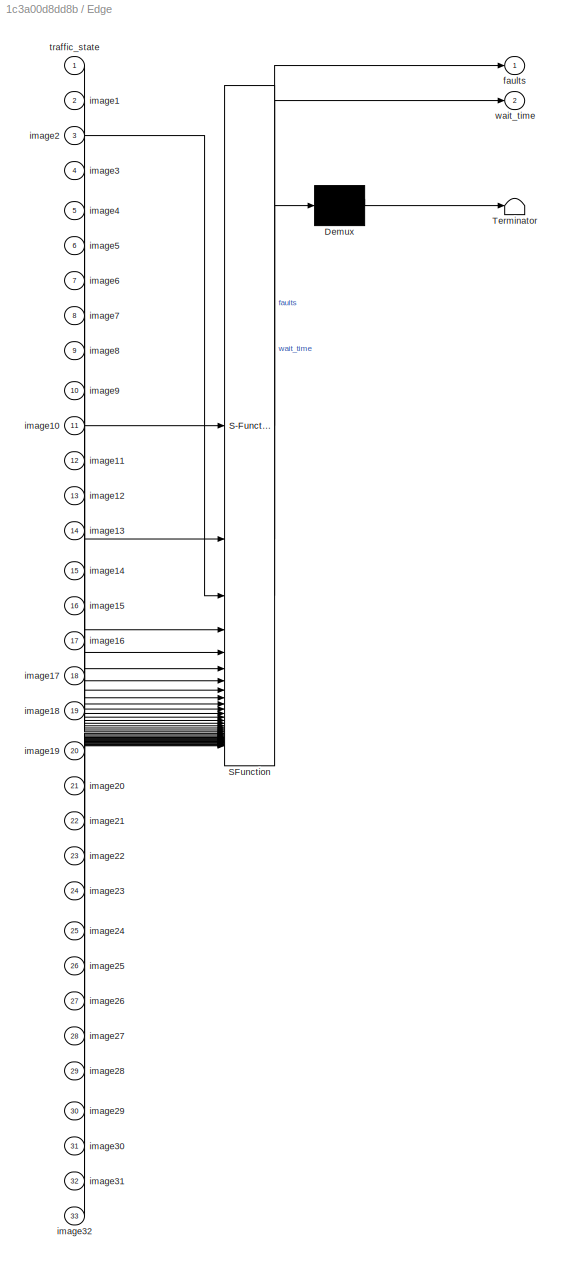
BLOCK [SubSystem] Edge
  ErrorFcn = Stateflow.Translate.translate
  PermitHierarchicalResolution = ExplicitOnly
  SFBlockType = Chart
  TreatAsAtomicUnit = on
BLOCK [Demux] Edge/ Demux 
  Outputs = 1
BLOCK [S-Function] Edge/ SFunction 
  EnableBusSupport = on
  FunctionName = sf_sfun
  InputPortMessageModes = n,m,m,m,m,m,m,m,m,m,m,m,m,m,m,m,m,m,m,m,m,m,m,m,m,m,m,m,m,m,m,m,m
  PortCounts = [33 3]
  SFcnIsStateOwnerBlock = off
  SFunctionDeploymentMode = off
  Tag = Stateflow S-Function 4
BLOCK [Terminator] Edge/ Terminator 
BLOCK [Outport] Edge/faults
BLOCK [Inport] Edge/image1
  Port = 2
BLOCK [Inport] Edge/image10
  Port = 11
BLOCK [Inport] Edge/image11
  Port = 12
BLOCK [Inport] Edge/image12
  Port = 13
BLOCK [Inport] Edge/image13
  Port = 14
BLOCK [Inport] Edge/image14
  Port = 15
BLOCK [Inport] Edge/image15
  Port = 16
BLOCK [Inport] Edge/image16
  Port = 17
BLOCK [Inport] Edge/image17
  Port = 18
BLOCK [Inport] Edge/image18
  Port = 19
BLOCK [Inport] Edge/image19
  Port = 20
BLOCK [Inport] Edge/image2
  Port = 3
BLOCK [Inport] Edge/image20
  Port = 21
BLOCK [Inport] Edge/image21
  Port = 22
BLOCK [Inport] Edge/image22
  Port = 23
BLOCK [Inport] Edge/image23
  Port = 24
BLOCK [Inport] Edge/image24
  Port = 25
BLOCK [Inport] Edge/image25
  Port = 26
BLOCK [Inport] Edge/image26
  Port = 27
BLOCK [Inport] Edge/image27
  Port = 28
BLOCK [Inport] Edge/image28
  Port = 29
BLOCK [Inport] Edge/image29
  Port = 30
BLOCK [Inport] Edge/image3
  Port = 4
BLOCK [Inport] Edge/image30
  Port = 31
BLOCK [Inport] Edge/image31
  Port = 32
BLOCK [Inport] Edge/image32
  Port = 33
BLOCK [Inport] Edge/image4
  Port = 5
BLOCK [Inport] Edge/image5
  Port = 6
BLOCK [Inport] Edge/image6
  Port = 7
BLOCK [Inport] Edge/image7
  Port = 8
BLOCK [Inport] Edge/image8
  Port = 9
BLOCK [Inport] Edge/image9
  Port = 10
BLOCK [Inport] Edge/traffic_state
BLOCK [Outport] Edge/wait_time
  Port = 2
BLOCK [FromWorkspace] From Workspace
  Interpolate = off
  OutDataTypeStr = double
  OutputAfterFinalValue = Holding final value
  SampleTime = -1
  VariableName = arrive_time
  ZeroCross = off
BLOCK [FromWorkspace] From Workspace1
  Interpolate = off
  OutDataTypeStr = double
  OutputAfterFinalValue = Holding final value
  SampleTime = -1
  VariableName = visibility_time
  ZeroCross = off
BLOCK [FromWorkspace] From Workspace10
  VariableName = timer_array_3
BLOCK [FromWorkspace] From Workspace11
  VariableName = blurryness_array_4
BLOCK [FromWorkspace] From Workspace12
  VariableName = networkloss_array_4
BLOCK [FromWorkspace] From Workspace13
  VariableName = timer_array_4
BLOCK [FromWorkspace] From Workspace14
  VariableName = timer_array_7
BLOCK [FromWorkspace] From Workspace15
  VariableName = blurryness_array_8
BLOCK [FromWorkspace] From Workspace16
  VariableName = networkloss_array_8
BLOCK [FromWorkspace] From Workspace17
  VariableName = timer_array_8
BLOCK [FromWorkspace] From Workspace18
  VariableName = blurryness_array_5
BLOCK [FromWorkspace] From Workspace19
  VariableName = networkloss_array_5
BLOCK [FromWorkspace] From Workspace2
  VariableName = blurryness_array_1
BLOCK [FromWorkspace] From Workspace20
  VariableName = timer_array_5
BLOCK [FromWorkspace] From Workspace21
  VariableName = blurryness_array_6
BLOCK [FromWorkspace] From Workspace22
  VariableName = networkloss_array_6
BLOCK [FromWorkspace] From Workspace23
  VariableName = timer_array_6
BLOCK [FromWorkspace] From Workspace24
  VariableName = blurryness_array_7
BLOCK [FromWorkspace] From Workspace25
  VariableName = networkloss_array_7
BLOCK [FromWorkspace] From Workspace26
  VariableName = timer_array_11
BLOCK [FromWorkspace] From Workspace27
  VariableName = blurryness_array_12
BLOCK [FromWorkspace] From Workspace28
  VariableName = networkloss_array_12
BLOCK [FromWorkspace] From Workspace29
  VariableName = timer_array_12
BLOCK [FromWorkspace] From Workspace3
  VariableName = networkloss_array_1
BLOCK [FromWorkspace] From Workspace30
  VariableName = timer_array_15
BLOCK [FromWorkspace] From Workspace31
  VariableName = blurryness_array_16
BLOCK [FromWorkspace] From Workspace32
  VariableName = networkloss_array_16
BLOCK [FromWorkspace] From Workspace33
  VariableName = timer_array_16
BLOCK [FromWorkspace] From Workspace34
  VariableName = blurryness_array_13
BLOCK [FromWorkspace] From Workspace35
  VariableName = networkloss_array_13
BLOCK [FromWorkspace] From Workspace36
  VariableName = blurryness_array_9
BLOCK [FromWorkspace] From Workspace37
  VariableName = timer_array_13
BLOCK [FromWorkspace] From Workspace38
  VariableName = blurryness_array_14
BLOCK [FromWorkspace] From Workspace39
  VariableName = networkloss_array_14
BLOCK [FromWorkspace] From Workspace4
  VariableName = timer_array_1
BLOCK [FromWorkspace] From Workspace40
  VariableName = timer_array_14
BLOCK [FromWorkspace] From Workspace41
  VariableName = blurryness_array_15
BLOCK [FromWorkspace] From Workspace42
  VariableName = networkloss_array_15
BLOCK [FromWorkspace] From Workspace43
  VariableName = networkloss_array_9
BLOCK [FromWorkspace] From Workspace44
  VariableName = timer_array_9
BLOCK [FromWorkspace] From Workspace45
  VariableName = blurryness_array_10
BLOCK [FromWorkspace] From Workspace46
  VariableName = networkloss_array_10
BLOCK [FromWorkspace] From Workspace47
  VariableName = timer_array_10
BLOCK [FromWorkspace] From Workspace48
  VariableName = blurryness_array_11
BLOCK [FromWorkspace] From Workspace49
  VariableName = networkloss_array_11
BLOCK [FromWorkspace] From Workspace5
  VariableName = blurryness_array_2
BLOCK [FromWorkspace] From Workspace50
  VariableName = timer_array_19
BLOCK [FromWorkspace] From Workspace51
  VariableName = blurryness_array_20
BLOCK [FromWorkspace] From Workspace52
  VariableName = networkloss_array_20
BLOCK [FromWorkspace] From Workspace53
  VariableName = timer_array_20
BLOCK [FromWorkspace] From Workspace54
  VariableName = timer_array_23
BLOCK [FromWorkspace] From Workspace55
  VariableName = blurryness_array_24
BLOCK [FromWorkspace] From Workspace56
  VariableName = networkloss_array_24
BLOCK [FromWorkspace] From Workspace57
  VariableName = timer_array_24
BLOCK [FromWorkspace] From Workspace58
  VariableName = blurryness_array_21
BLOCK [FromWorkspace] From Workspace59
  VariableName = networkloss_array_21
BLOCK [FromWorkspace] From Workspace6
  VariableName = networkloss_array_2
BLOCK [FromWorkspace] From Workspace60
  VariableName = blurryness_array_17
BLOCK [FromWorkspace] From Workspace61
  VariableName = timer_array_21
BLOCK [FromWorkspace] From Workspace62
  VariableName = blurryness_array_22
BLOCK [FromWorkspace] From Workspace63
  VariableName = networkloss_array_22
BLOCK [FromWorkspace] From Workspace64
  VariableName = timer_array_22
BLOCK [FromWorkspace] From Workspace65
  VariableName = blurryness_array_23
BLOCK [FromWorkspace] From Workspace66
  VariableName = networkloss_array_23
BLOCK [FromWorkspace] From Workspace67
  VariableName = timer_array_27
BLOCK [FromWorkspace] From Workspace68
  VariableName = blurryness_array_28
BLOCK [FromWorkspace] From Workspace69
  VariableName = networkloss_array_28
BLOCK [FromWorkspace] From Workspace7
  VariableName = timer_array_2
BLOCK [FromWorkspace] From Workspace70
  VariableName = timer_array_28
BLOCK [FromWorkspace] From Workspace71
  VariableName = networkloss_array_17
BLOCK [FromWorkspace] From Workspace72
  VariableName = timer_array_31
BLOCK [FromWorkspace] From Workspace73
  VariableName = blurryness_array_32
BLOCK [FromWorkspace] From Workspace74
  VariableName = networkloss_array_32
BLOCK [FromWorkspace] From Workspace75
  VariableName = timer_array_32
BLOCK [FromWorkspace] From Workspace76
  VariableName = blurryness_array_29
BLOCK [FromWorkspace] From Workspace77
  VariableName = networkloss_array_29
BLOCK [FromWorkspace] From Workspace78
  VariableName = blurryness_array_25
BLOCK [FromWorkspace] From Workspace79
  VariableName = timer_array_29
BLOCK [FromWorkspace] From Workspace8
  VariableName = blurryness_array_3
BLOCK [FromWorkspace] From Workspace80
  VariableName = blurryness_array_30
BLOCK [FromWorkspace] From Workspace81
  VariableName = networkloss_array_30
BLOCK [FromWorkspace] From Workspace82
  VariableName = timer_array_17
BLOCK [FromWorkspace] From Workspace83
  VariableName = timer_array_30
BLOCK [FromWorkspace] From Workspace84
  VariableName = blurryness_array_31
BLOCK [FromWorkspace] From Workspace85
  VariableName = networkloss_array_31
BLOCK [FromWorkspace] From Workspace86
  VariableName = networkloss_array_25
BLOCK [FromWorkspace] From Workspace87
  VariableName = timer_array_25
BLOCK [FromWorkspace] From Workspace88
  VariableName = blurryness_array_26
BLOCK [FromWorkspace] From Workspace89
  VariableName = networkloss_array_26
BLOCK [FromWorkspace] From Workspace9
  VariableName = networkloss_array_3
BLOCK [FromWorkspace] From Workspace90
  VariableName = timer_array_26
BLOCK [FromWorkspace] From Workspace91
  VariableName = blurryness_array_27
BLOCK [FromWorkspace] From Workspace92
  VariableName = networkloss_array_27
BLOCK [FromWorkspace] From Workspace93
  VariableName = blurryness_array_18
BLOCK [FromWorkspace] From Workspace94
  VariableName = networkloss_array_18
BLOCK [FromWorkspace] From Workspace95
  VariableName = timer_array_18
BLOCK [FromWorkspace] From Workspace96
  VariableName = blurryness_array_19
BLOCK [FromWorkspace] From Workspace97
  VariableName = networkloss_array_19
BLOCK [Scope] Scope
  Floating = off
  NumInputPorts = 1
  ScopeSpecificationString = Simulink.scopes.TimeScopeBlockCfg('CurrentConfiguration', extmgr.ConfigurationSet(extmgr.Configuration('Core','General UI',true),extmgr.Configuration('Core','Source UI',true),extmgr.Configuration('Sources','WiredSimulink',true),extmgr.Configuration('Visuals','Time Domain',true,'SerializedDisplays',{struct('MinYLimReal','-1.00000','MaxYLimReal','1.00000','YLabelReal','','MinYLimMag','0.00000','MaxY...<+1703ch>
BLOCK [Scope] Scope1
  Floating = off
  NumInputPorts = 1
  ScopeSpecificationString = Simulink.scopes.TimeScopeBlockCfg('CurrentConfiguration', extmgr.ConfigurationSet(extmgr.Configuration('Core','General UI',true),extmgr.Configuration('Core','Source UI',true),extmgr.Configuration('Sources','WiredSimulink',true,'DataLoggingVariableName','ScopeData1'),extmgr.Configuration('Visuals','Time Domain',true,'SerializedDisplays',{struct('MinYLimReal','-66.51186','MaxYLimReal','598.6067','YL...<+1761ch>
BLOCK [Scope] Scope10
  Floating = off
  NumInputPorts = 1
  ScopeSpecificationString = Simulink.scopes.TimeScopeBlockCfg('CurrentConfiguration', extmgr.ConfigurationSet(extmgr.Configuration('Core','General UI',true),extmgr.Configuration('Core','Source UI',true),extmgr.Configuration('Sources','WiredSimulink',true,'DataLoggingVariableName','ScopeData3'),extmgr.Configuration('Visuals','Time Domain',true,'SerializedDisplays',{struct('MinYLimReal','0.25','MaxYLimReal','17.75','YLabelReal...<+1737ch>
BLOCK [Scope] Scope2
  Floating = off
  NumInputPorts = 1
  ScopeSpecificationString = Simulink.scopes.TimeScopeBlockCfg('CurrentConfiguration', extmgr.ConfigurationSet(extmgr.Configuration('Core','General UI',true),extmgr.Configuration('Core','Source UI',true),extmgr.Configuration('Sources','WiredSimulink',true,'DataLoggingVariableName','ScopeData2'),extmgr.Configuration('Visuals','Time Domain',true,'SerializedDisplays',{struct('MinYLimReal','-0.125','MaxYLimReal','1.125','YLabelRe...<+1750ch>
BLOCK [Scope] Scope3
  Floating = off
  NumInputPorts = 1
  ScopeSpecificationString = Simulink.scopes.TimeScopeBlockCfg('CurrentConfiguration', extmgr.ConfigurationSet(extmgr.Configuration('Core','General UI',true),extmgr.Configuration('Core','Source UI',true),extmgr.Configuration('Sources','WiredSimulink',true,'DataLoggingVariableName','ScopeData3'),extmgr.Configuration('Visuals','Time Domain',true,'SerializedDisplays',{struct('MinYLimReal','0.25','MaxYLimReal','17.75','YLabelReal...<+1737ch>
BLOCK [Scope] Scope4
  Floating = off
  NumInputPorts = 1
  ScopeSpecificationString = Simulink.scopes.TimeScopeBlockCfg('CurrentConfiguration', extmgr.ConfigurationSet(extmgr.Configuration('Core','General UI',true),extmgr.Configuration('Core','Source UI',true),extmgr.Configuration('Sources','WiredSimulink',true,'DataLoggingVariableName','ScopeData1'),extmgr.Configuration('Visuals','Time Domain',true,'SerializedDisplays',{struct('MinYLimReal','0.25','MaxYLimReal','17.75','YLabelReal...<+1737ch>
BLOCK [Scope] Scope5
  Floating = off
  NumInputPorts = 1
  ScopeSpecificationString = Simulink.scopes.TimeScopeBlockCfg('CurrentConfiguration', extmgr.ConfigurationSet(extmgr.Configuration('Core','General UI',true),extmgr.Configuration('Core','Source UI',true),extmgr.Configuration('Sources','WiredSimulink',true,'DataLoggingVariableName','ScopeData1'),extmgr.Configuration('Visuals','Time Domain',true,'SerializedDisplays',{struct('MinYLimReal','0.25','MaxYLimReal','17.75','YLabelReal...<+1737ch>
BLOCK [Scope] Scope6
  Floating = off
  NumInputPorts = 1
  ScopeSpecificationString = Simulink.scopes.TimeScopeBlockCfg('CurrentConfiguration', extmgr.ConfigurationSet(extmgr.Configuration('Core','General UI',true),extmgr.Configuration('Core','Source UI',true),extmgr.Configuration('Sources','WiredSimulink',true,'DataLoggingVariableName','ScopeData2'),extmgr.Configuration('Visuals','Time Domain',true,'SerializedDisplays',{struct('MinYLimReal','0.25','MaxYLimReal','17.75','YLabelReal...<+1737ch>
BLOCK [Scope] Scope7
  Floating = off
  NumInputPorts = 1
  ScopeSpecificationString = Simulink.scopes.TimeScopeBlockCfg('CurrentConfiguration', extmgr.ConfigurationSet(extmgr.Configuration('Core','General UI',true),extmgr.Configuration('Core','Source UI',true),extmgr.Configuration('Sources','WiredSimulink',true,'DataLoggingVariableName','ScopeData4'),extmgr.Configuration('Visuals','Time Domain',true,'SerializedDisplays',{struct('MinYLimReal','0.25','MaxYLimReal','17.75','YLabelReal...<+1720ch>
BLOCK [Scope] Scope8
  Floating = off
  NumInputPorts = 1
  ScopeSpecificationString = Simulink.scopes.TimeScopeBlockCfg('CurrentConfiguration', extmgr.ConfigurationSet(extmgr.Configuration('Core','General UI',true),extmgr.Configuration('Core','Source UI',true),extmgr.Configuration('Sources','WiredSimulink',true,'DataLoggingVariableName','ScopeData5'),extmgr.Configuration('Visuals','Time Domain',true,'SerializedDisplays',{struct('MinYLimReal','0.25','MaxYLimReal','17.75','YLabelReal...<+1737ch>
BLOCK [Scope] Scope9
  Floating = off
  NumInputPorts = 1
  ScopeSpecificationString = Simulink.scopes.TimeScopeBlockCfg('CurrentConfiguration', extmgr.ConfigurationSet(extmgr.Configuration('Core','General UI',true),extmgr.Configuration('Core','Source UI',true),extmgr.Configuration('Sources','WiredSimulink',true,'DataLoggingVariableName','ScopeData6'),extmgr.Configuration('Visuals','Time Domain',true,'SerializedDisplays',{struct('MinYLimReal','0.25','MaxYLimReal','17.75','YLabelReal...<+1737ch>
BLOCK [ToWorkspace] To Workspace
  FixptAsFi = on
  MaxDataPoints = inf
  SampleTime = -1
  SaveFormat = Timeseries
  VariableName = faults
BLOCK [SubSystem] Traffic
  ErrorFcn = Stateflow.Translate.translate
  PermitHierarchicalResolution = ExplicitOnly
  SFBlockType = Chart
  TreatAsAtomicUnit = on
BLOCK [Demux] Traffic/ Demux 
  Outputs = 1
BLOCK [S-Function] Traffic/ SFunction 
  EnableBusSupport = on
  FunctionName = sf_sfun
  PortCounts = [2 2]
  SFcnIsStateOwnerBlock = off
  SFunctionDeploymentMode = off
  Tag = Stateflow S-Function 3
BLOCK [Terminator] Traffic/ Terminator 
BLOCK [Inport] Traffic/arrive_time
BLOCK [Outport] Traffic/traffic_state
BLOCK [Inport] Traffic/visibility_time
  Port = 2
LINE CameraControl10:1 -> CameraDriver10:1
LINE CameraControl10:2 -> Edge:12
LINE CameraControl11:1 -> CameraDriver11:1
LINE CameraControl11:2 -> Edge:13
LINE CameraControl12:1 -> CameraDriver12:1
LINE CameraControl12:2 -> Edge:14
LINE CameraControl13:1 -> CameraDriver13:1
LINE CameraControl13:2 -> Edge:15
LINE CameraControl14:1 -> CameraDriver14:1
LINE CameraControl14:2 -> Edge:16
LINE CameraControl15:1 -> CameraDriver15:1
LINE CameraControl15:2 -> Edge:17
LINE CameraControl16:1 -> CameraDriver16:1
LINE CameraControl16:2 -> Edge:18
LINE CameraControl17:1 -> CameraDriver17:1
LINE CameraControl17:2 -> Edge:19
LINE CameraControl18:1 -> CameraDriver18:1
LINE CameraControl18:2 -> Edge:28
LINE CameraControl19:1 -> CameraDriver19:1
LINE CameraControl19:2 -> Edge:29
LINE CameraControl1:1 -> CameraDriver1:1
LINE CameraControl1:2 -> Edge:3
LINE CameraControl20:1 -> CameraDriver20:1
LINE CameraControl20:2 -> Edge:30
LINE CameraControl21:1 -> CameraDriver21:1
LINE CameraControl21:2 -> Edge:31
LINE CameraControl22:1 -> CameraDriver22:1
LINE CameraControl22:2 -> Edge:32
LINE CameraControl23:1 -> CameraDriver23:1
LINE CameraControl23:2 -> Edge:33
LINE CameraControl24:1 -> CameraDriver24:1
LINE CameraControl24:2 -> Edge:20
LINE CameraControl25:1 -> CameraDriver25:1
LINE CameraControl25:2 -> Edge:21
LINE CameraControl26:1 -> CameraDriver26:1
LINE CameraControl26:2 -> Edge:22
LINE CameraControl27:1 -> CameraDriver27:1
LINE CameraControl27:2 -> Edge:23
LINE CameraControl28:1 -> CameraDriver28:1
LINE CameraControl28:2 -> Edge:24
LINE CameraControl29:1 -> CameraDriver29:1
LINE CameraControl29:2 -> Edge:25
LINE CameraControl2:1 -> CameraDriver2:1
LINE CameraControl2:2 -> Edge:4
LINE CameraControl30:1 -> CameraDriver30:1
LINE CameraControl30:2 -> Edge:26
LINE CameraControl31:1 -> CameraDriver31:1
LINE CameraControl31:2 -> Edge:27
LINE CameraControl3:1 -> CameraDriver3:1
LINE CameraControl3:2 -> Edge:5
LINE CameraControl4:1 -> CameraDriver4:1
LINE CameraControl4:2 -> Edge:6
LINE CameraControl5:1 -> CameraDriver5:1
LINE CameraControl5:2 -> Edge:7
LINE CameraControl6:1 -> CameraDriver6:1
LINE CameraControl6:2 -> Edge:8
LINE CameraControl7:1 -> CameraDriver7:1
LINE CameraControl7:2 -> Edge:9
LINE CameraControl8:1 -> CameraDriver8:1
LINE CameraControl8:2 -> Edge:10
LINE CameraControl9:1 -> CameraDriver9:1
LINE CameraControl9:2 -> Edge:11
LINE CameraControl:1 -> CameraDriver:1
LINE CameraControl:2 -> Edge:2
LINE CameraDriver10:1 -> CameraControl10:1
LINE CameraDriver11:1 -> CameraControl11:1
LINE CameraDriver12:1 -> CameraControl12:1
LINE CameraDriver13:1 -> CameraControl13:1
LINE CameraDriver14:1 -> CameraControl14:1
LINE CameraDriver15:1 -> CameraControl15:1
LINE CameraDriver16:1 -> CameraControl16:1
LINE CameraDriver17:1 -> CameraControl17:1
LINE CameraDriver18:1 -> CameraControl18:1
LINE CameraDriver19:1 -> CameraControl19:1
LINE CameraDriver1:1 -> CameraControl1:1
LINE CameraDriver20:1 -> CameraControl20:1
LINE CameraDriver21:1 -> CameraControl21:1
LINE CameraDriver22:1 -> CameraControl22:1
LINE CameraDriver23:1 -> CameraControl23:1
LINE CameraDriver24:1 -> CameraControl24:1
LINE CameraDriver25:1 -> CameraControl25:1
LINE CameraDriver26:1 -> CameraControl26:1
LINE CameraDriver27:1 -> CameraControl27:1
LINE CameraDriver28:1 -> CameraControl28:1
LINE CameraDriver29:1 -> CameraControl29:1
LINE CameraDriver2:1 -> CameraControl2:1
LINE CameraDriver30:1 -> CameraControl30:1
LINE CameraDriver31:1 -> CameraControl31:1
LINE CameraDriver3:1 -> CameraControl3:1
LINE CameraDriver4:1 -> CameraControl4:1
LINE CameraDriver5:1 -> CameraControl5:1
LINE CameraDriver6:1 -> CameraControl6:1
LINE CameraDriver7:1 -> CameraControl7:1
LINE CameraDriver8:1 -> CameraControl8:1
LINE CameraDriver9:1 -> CameraControl9:1
LINE CameraDriver:1 -> CameraControl:1
LINE CameraScheduler10:1 -> CameraDriver10:4
LINE CameraScheduler10:2 -> CameraControl10:3
LINE CameraScheduler11:1 -> CameraDriver11:4
LINE CameraScheduler11:2 -> CameraControl11:3
LINE CameraScheduler12:1 -> CameraDriver12:4
LINE CameraScheduler12:2 -> CameraControl12:3
LINE CameraScheduler13:1 -> CameraDriver13:4
LINE CameraScheduler13:2 -> CameraControl13:3
LINE CameraScheduler14:1 -> CameraDriver14:4
LINE CameraScheduler14:2 -> CameraControl14:3
LINE CameraScheduler15:1 -> CameraDriver15:4
LINE CameraScheduler15:2 -> CameraControl15:3
LINE CameraScheduler16:1 -> CameraDriver16:4
LINE CameraScheduler16:2 -> CameraControl16:3
LINE CameraScheduler16:3 -> Scope7:1
LINE CameraScheduler17:1 -> CameraDriver17:4
LINE CameraScheduler17:2 -> CameraControl17:3
LINE CameraScheduler18:1 -> CameraDriver18:4
LINE CameraScheduler18:2 -> CameraControl18:3
LINE CameraScheduler19:1 -> CameraDriver19:4
LINE CameraScheduler19:2 -> CameraControl19:3
LINE CameraScheduler1:1 -> CameraDriver1:4
LINE CameraScheduler1:2 -> CameraControl1:3
LINE CameraScheduler20:1 -> CameraDriver20:4
LINE CameraScheduler20:2 -> CameraControl20:3
LINE CameraScheduler21:1 -> CameraDriver21:4
LINE CameraScheduler21:2 -> CameraControl21:3
LINE CameraScheduler22:1 -> CameraDriver22:4
LINE CameraScheduler22:2 -> CameraControl22:3
LINE CameraScheduler23:1 -> CameraDriver23:4
LINE CameraScheduler23:2 -> CameraControl23:3
LINE CameraScheduler24:1 -> CameraDriver24:4
LINE CameraScheduler24:2 -> CameraControl24:3
LINE CameraScheduler24:3 -> Scope8:1
LINE CameraScheduler25:1 -> CameraDriver25:4
LINE CameraScheduler25:2 -> CameraControl25:3
LINE CameraScheduler26:1 -> CameraDriver26:4
LINE CameraScheduler26:2 -> CameraControl26:3
LINE CameraScheduler26:3 -> Scope9:1
LINE CameraScheduler27:1 -> CameraDriver27:4
LINE CameraScheduler27:2 -> CameraControl27:3
LINE CameraScheduler28:1 -> CameraDriver28:4
LINE CameraScheduler28:2 -> CameraControl28:3
LINE CameraScheduler28:3 -> Scope10:1
LINE CameraScheduler29:1 -> CameraDriver29:4
LINE CameraScheduler29:2 -> CameraControl29:3
LINE CameraScheduler2:1 -> CameraDriver2:4
LINE CameraScheduler2:2 -> CameraControl2:3
LINE CameraScheduler2:3 -> Scope4:1
LINE CameraScheduler30:1 -> CameraDriver30:4
LINE CameraScheduler30:2 -> CameraControl30:3
LINE CameraScheduler31:1 -> CameraDriver31:4
LINE CameraScheduler31:2 -> CameraControl31:3
LINE CameraScheduler3:1 -> CameraDriver3:4
LINE CameraScheduler3:2 -> CameraControl3:3
LINE CameraScheduler4:1 -> CameraDriver4:4
LINE CameraScheduler4:2 -> CameraControl4:3
LINE CameraScheduler4:3 -> Scope5:1
LINE CameraScheduler5:1 -> CameraDriver5:4
LINE CameraScheduler5:2 -> CameraControl5:3
LINE CameraScheduler6:1 -> CameraDriver6:4
LINE CameraScheduler6:2 -> CameraControl6:3
LINE CameraScheduler6:3 -> Scope6:1
LINE CameraScheduler7:1 -> CameraDriver7:4
LINE CameraScheduler7:2 -> CameraControl7:3
LINE CameraScheduler8:1 -> CameraDriver8:4
LINE CameraScheduler8:2 -> CameraControl8:3
LINE CameraScheduler9:1 -> CameraDriver9:4
LINE CameraScheduler9:2 -> CameraControl9:3
LINE CameraScheduler:1 -> CameraDriver:4
LINE CameraScheduler:2 -> CameraControl:3
LINE CameraScheduler:3 -> Scope3:1
NET Edge:1 -> Scope:1, To Workspace:1
LINE Edge:2 -> Scope1:1
LINE From Workspace10:1 -> CameraScheduler2:1
LINE From Workspace11:1 -> CameraDriver3:3
LINE From Workspace12:1 -> CameraControl3:2
LINE From Workspace13:1 -> CameraScheduler3:1
LINE From Workspace14:1 -> CameraScheduler6:1
LINE From Workspace15:1 -> CameraDriver7:3
LINE From Workspace16:1 -> CameraControl7:2
LINE From Workspace17:1 -> CameraScheduler7:1
LINE From Workspace18:1 -> CameraDriver4:3
LINE From Workspace19:1 -> CameraControl4:2
LINE From Workspace1:1 -> Traffic:2
LINE From Workspace20:1 -> CameraScheduler4:1
LINE From Workspace21:1 -> CameraDriver5:3
LINE From Workspace22:1 -> CameraControl5:2
LINE From Workspace23:1 -> CameraScheduler5:1
LINE From Workspace24:1 -> CameraDriver6:3
LINE From Workspace25:1 -> CameraControl6:2
LINE From Workspace26:1 -> CameraScheduler10:1
LINE From Workspace27:1 -> CameraDriver11:3
LINE From Workspace28:1 -> CameraControl11:2
LINE From Workspace29:1 -> CameraScheduler11:1
LINE From Workspace2:1 -> CameraDriver:3
LINE From Workspace30:1 -> CameraScheduler14:1
LINE From Workspace31:1 -> CameraDriver15:3
LINE From Workspace32:1 -> CameraControl15:2
LINE From Workspace33:1 -> CameraScheduler15:1
LINE From Workspace34:1 -> CameraDriver12:3
LINE From Workspace35:1 -> CameraControl12:2
LINE From Workspace36:1 -> CameraDriver8:3
LINE From Workspace37:1 -> CameraScheduler12:1
LINE From Workspace38:1 -> CameraDriver13:3
LINE From Workspace39:1 -> CameraControl13:2
LINE From Workspace3:1 -> CameraControl:2
LINE From Workspace40:1 -> CameraScheduler13:1
LINE From Workspace41:1 -> CameraDriver14:3
LINE From Workspace42:1 -> CameraControl14:2
LINE From Workspace43:1 -> CameraControl8:2
LINE From Workspace44:1 -> CameraScheduler8:1
LINE From Workspace45:1 -> CameraDriver9:3
LINE From Workspace46:1 -> CameraControl9:2
LINE From Workspace47:1 -> CameraScheduler9:1
LINE From Workspace48:1 -> CameraDriver10:3
LINE From Workspace49:1 -> CameraControl10:2
LINE From Workspace4:1 -> CameraScheduler:1
LINE From Workspace50:1 -> CameraScheduler24:1
LINE From Workspace51:1 -> CameraDriver25:3
LINE From Workspace52:1 -> CameraControl25:2
LINE From Workspace53:1 -> CameraScheduler25:1
LINE From Workspace54:1 -> CameraScheduler28:1
LINE From Workspace55:1 -> CameraDriver29:3
LINE From Workspace56:1 -> CameraControl29:2
LINE From Workspace57:1 -> CameraScheduler29:1
LINE From Workspace58:1 -> CameraDriver26:3
LINE From Workspace59:1 -> CameraControl26:2
LINE From Workspace5:1 -> CameraDriver1:3
LINE From Workspace60:1 -> CameraDriver16:3
LINE From Workspace61:1 -> CameraScheduler26:1
LINE From Workspace62:1 -> CameraDriver27:3
LINE From Workspace63:1 -> CameraControl27:2
LINE From Workspace64:1 -> CameraScheduler27:1
LINE From Workspace65:1 -> CameraDriver28:3
LINE From Workspace66:1 -> CameraControl28:2
LINE From Workspace67:1 -> CameraScheduler18:1
LINE From Workspace68:1 -> CameraDriver19:3
LINE From Workspace69:1 -> CameraControl19:2
LINE From Workspace6:1 -> CameraControl1:2
LINE From Workspace70:1 -> CameraScheduler19:1
LINE From Workspace71:1 -> CameraControl16:2
LINE From Workspace72:1 -> CameraScheduler22:1
LINE From Workspace73:1 -> CameraDriver23:3
LINE From Workspace74:1 -> CameraControl23:2
LINE From Workspace75:1 -> CameraScheduler23:1
LINE From Workspace76:1 -> CameraDriver20:3
LINE From Workspace77:1 -> CameraControl20:2
LINE From Workspace78:1 -> CameraDriver30:3
LINE From Workspace79:1 -> CameraScheduler20:1
LINE From Workspace7:1 -> CameraScheduler1:1
LINE From Workspace80:1 -> CameraDriver21:3
LINE From Workspace81:1 -> CameraControl21:2
LINE From Workspace82:1 -> CameraScheduler16:1
LINE From Workspace83:1 -> CameraScheduler21:1
LINE From Workspace84:1 -> CameraDriver22:3
LINE From Workspace85:1 -> CameraControl22:2
LINE From Workspace86:1 -> CameraControl30:2
LINE From Workspace87:1 -> CameraScheduler30:1
LINE From Workspace88:1 -> CameraDriver31:3
LINE From Workspace89:1 -> CameraControl31:2
LINE From Workspace8:1 -> CameraDriver2:3
LINE From Workspace90:1 -> CameraScheduler31:1
LINE From Workspace91:1 -> CameraDriver18:3
LINE From Workspace92:1 -> CameraControl18:2
LINE From Workspace93:1 -> CameraDriver17:3
LINE From Workspace94:1 -> CameraControl17:2
LINE From Workspace95:1 -> CameraScheduler17:1
LINE From Workspace96:1 -> CameraDriver24:3
LINE From Workspace97:1 -> CameraControl24:2
LINE From Workspace9:1 -> CameraControl2:2
LINE From Workspace:1 -> Traffic:1
NET Traffic:1 -> CameraDriver10:2, CameraDriver11:2, CameraDriver12:2, CameraDriver13:2, CameraDriver14:2, CameraDriver15:2, CameraDriver16:2, CameraDriver17:2, CameraDriver18:2, CameraDriver19:2, CameraDriver1:2, CameraDriver20:2, CameraDriver21:2, CameraDriver22:2, CameraDriver23:2, CameraDriver24:2, CameraDriver25:2, CameraDriver26:2, CameraDriver27:2, CameraDriver28:2, CameraDriver29:2, CameraDriver2:2, CameraDriver30:2, CameraDriver31:2, CameraDriver3:2, CameraDriver4:2, CameraDriver5:2, CameraDriver6:2, CameraDriver7:2, CameraDriver8:2, CameraDriver9:2, CameraDriver:2, Edge:1, Scope2:1
note: NET lines group one-source signal fan-out (src -> all destinations, sorted); 1:1 wires keep LINE
CHART CameraScheduler4 states=1 transitions=2
  STATE_LABEL 'Main\nentry:\ndt=timer_array[i];'
CHART CameraScheduler5 states=1 transitions=2
  STATE_LABEL 'Main\nentry:\ndt=timer_array[i];'
CHART CameraScheduler6 states=1 transitions=2
  STATE_LABEL 'Main\nentry:\ndt=timer_array[i];'
CHART CameraScheduler7 states=1 transitions=2
  STATE_LABEL 'Main\nentry:\ndt=timer_array[i];'
CHART CameraControl10 states=5 transitions=9
  STATE_LABEL 'Operation'
  STATE_LABEL 'RequestHangling'
  STATE_LABEL 'Operation1'
  STATE_LABEL '{image_request=1;}'
  STATE_LABEL 'schedule{image_request=1;}'
  STATE_LABEL 'ImageMessaging'
  STATE_LABEL 'Operation2\nentry:\nvalidity=isvalid(imageIn);\n'
  STATE_LABEL '{i=1;}'
  STATE_LABEL '[validity==1]\n{receive(imageIn);i = i + 1;\nimageOut.data=imageIn.data\nsend(imageOut);}'
  STATE_LABEL '{i = i + 1;receive(imageIn);}'
  STATE_LABEL '[network_faults(i)==0]'
  STATE_LABEL '{receive(imageIn);i = i + 1;}'
  STATE_LABEL 'schedule'
  STATE_LABEL 'RequestHangling'
  STATE_LABEL 'Operation1'
  STATE_LABEL '{image_request=1;}'
  STATE_LABEL 'schedule{image_request=1;}'
  STATE_LABEL 'Operation1'
  STATE_LABEL 'ImageMessaging'
  STATE_LABEL 'Operation2\nentry:\nvalidity=isvalid(imageIn);\n'
  STATE_LABEL '{i=1;}'
  STATE_LABEL '[validity==1]\n{receive(imageIn);i = i + 1;\nimageOut.data=imageIn.data\nsend(imageOut);}'
  STATE_LABEL '{i = i + 1;receive(imageIn);}'
  STATE_LABEL '[network_faults(i)==0]'
  STATE_LABEL '{receive(imageIn);i = i + 1;}'
  STATE_LABEL 'schedule'
  STATE_LABEL 'Operation2\nentry:\nvalidity=isvalid(imageIn);\n'
CHART CameraControl11 states=6 transitions=9
  STATE_LABEL 'Operation'
  STATE_LABEL 'RequestHangling'
  STATE_LABEL '{image_request=1;}'
  STATE_LABEL 'Operation1'
  STATE_LABEL 'schedule{image_request=1;}'
  STATE_LABEL 'ImageMessaging'
  STATE_LABEL 'Operation2\nentry:\nvalidity=isvalid(imageIn);'
  STATE_LABEL '{i=1;}'
  STATE_LABEL '[isvalid(imageIn)==1]\n{receive(imageIn);i = i + 1;\nimageOut.data=imageIn.data;\nsend(imageOut);}'
  STATE_LABEL '{receive(imageIn);i = i + 1;}'
  STATE_LABEL 'schedule'
  STATE_LABEL '{i = i + 1;receive(imageIn);}'
  STATE_LABEL '[network_faults(i)==0]'
  STATE_LABEL 'RequestHangling'
  STATE_LABEL '{image_request=1;}'
  STATE_LABEL 'Operation1'
  STATE_LABEL 'schedule{image_request=1;}'
  STATE_LABEL '{image_request=1;}'
  STATE_LABEL 'Operation1'
  STATE_LABEL 'ImageMessaging'
  STATE_LABEL 'Operation2\nentry:\nvalidity=isvalid(imageIn);'
  STATE_LABEL '{i=1;}'
  STATE_LABEL '[isvalid(imageIn)==1]\n{receive(imageIn);i = i + 1;\nimageOut.data=imageIn.data;\nsend(imageOut);}'
  STATE_LABEL '{receive(imageIn);i = i + 1;}'
  STATE_LABEL 'schedule'
  STATE_LABEL '{i = i + 1;receive(imageIn);}'
  STATE_LABEL '[network_faults(i)==0]'
  STATE_LABEL 'Operation2\nentry:\nvalidity=isvalid(imageIn);'
CHART CameraControl12 states=5 transitions=9
  STATE_LABEL 'Operation'
  STATE_LABEL 'RequestHangling'
  STATE_LABEL 'Operation1'
  STATE_LABEL '{image_request=1;}'
  STATE_LABEL 'schedule{image_request=1;}'
  STATE_LABEL 'ImageMessaging'
  STATE_LABEL 'Operation2\nentry:\nvalidity=isvalid(imageIn);\n'
  STATE_LABEL '{i=1;}'
  STATE_LABEL '[validity==1]\n{receive(imageIn);i = i + 1;\nimageOut.data=imageIn.data\nsend(imageOut);}'
  STATE_LABEL '{i = i + 1;receive(imageIn);}'
  STATE_LABEL '[network_faults(i)==0]'
  STATE_LABEL '{receive(imageIn);i = i + 1;}'
  STATE_LABEL 'schedule'
  STATE_LABEL 'RequestHangling'
  STATE_LABEL 'Operation1'
  STATE_LABEL '{image_request=1;}'
  STATE_LABEL 'schedule{image_request=1;}'
  STATE_LABEL 'Operation1'
  STATE_LABEL 'ImageMessaging'
  STATE_LABEL 'Operation2\nentry:\nvalidity=isvalid(imageIn);\n'
  STATE_LABEL '{i=1;}'
  STATE_LABEL '[validity==1]\n{receive(imageIn);i = i + 1;\nimageOut.data=imageIn.data\nsend(imageOut);}'
  STATE_LABEL '{i = i + 1;receive(imageIn);}'
  STATE_LABEL '[network_faults(i)==0]'
  STATE_LABEL '{receive(imageIn);i = i + 1;}'
  STATE_LABEL 'schedule'
  STATE_LABEL 'Operation2\nentry:\nvalidity=isvalid(imageIn);\n'
CHART CameraControl13 states=6 transitions=9
  STATE_LABEL 'Operation'
  STATE_LABEL 'RequestHangling'
  STATE_LABEL '{image_request=1;}'
  STATE_LABEL 'Operation1'
  STATE_LABEL 'schedule{image_request=1;}'
  STATE_LABEL 'ImageMessaging'
  STATE_LABEL 'Operation2\nentry:\nvalidity=isvalid(imageIn);'
  STATE_LABEL '{i=1;}'
  STATE_LABEL '[isvalid(imageIn)==1]\n{receive(imageIn);i = i + 1;\nimageOut.data=imageIn.data;\nsend(imageOut);}'
  STATE_LABEL '{receive(imageIn);i = i + 1;}'
  STATE_LABEL 'schedule'
  STATE_LABEL '{i = i + 1;receive(imageIn);}'
  STATE_LABEL '[network_faults(i)==0]'
  STATE_LABEL 'RequestHangling'
  STATE_LABEL '{image_request=1;}'
  STATE_LABEL 'Operation1'
  STATE_LABEL 'schedule{image_request=1;}'
  STATE_LABEL '{image_request=1;}'
  STATE_LABEL 'Operation1'
  STATE_LABEL 'ImageMessaging'
  STATE_LABEL 'Operation2\nentry:\nvalidity=isvalid(imageIn);'
  STATE_LABEL '{i=1;}'
  STATE_LABEL '[isvalid(imageIn)==1]\n{receive(imageIn);i = i + 1;\nimageOut.data=imageIn.data;\nsend(imageOut);}'
  STATE_LABEL '{receive(imageIn);i = i + 1;}'
  STATE_LABEL 'schedule'
  STATE_LABEL '{i = i + 1;receive(imageIn);}'
  STATE_LABEL '[network_faults(i)==0]'
  STATE_LABEL 'Operation2\nentry:\nvalidity=isvalid(imageIn);'
CHART CameraControl14 states=5 transitions=9
  STATE_LABEL 'Operation'
  STATE_LABEL 'RequestHangling'
  STATE_LABEL 'Operation1'
  STATE_LABEL '{image_request=1;}'
  STATE_LABEL 'schedule{image_request=1;}'
  STATE_LABEL 'ImageMessaging'
  STATE_LABEL 'Operation2\nentry:\nvalidity=isvalid(imageIn);\n'
  STATE_LABEL '{i=1;}'
  STATE_LABEL '[validity==1]\n{receive(imageIn);i = i + 1;\nimageOut.data=imageIn.data\nsend(imageOut);}'
  STATE_LABEL '{i = i + 1;receive(imageIn);}'
  STATE_LABEL '[network_faults(i)==0]'
  STATE_LABEL '{receive(imageIn);i = i + 1;}'
  STATE_LABEL 'schedule'
  STATE_LABEL 'RequestHangling'
  STATE_LABEL 'Operation1'
  STATE_LABEL '{image_request=1;}'
  STATE_LABEL 'schedule{image_request=1;}'
  STATE_LABEL 'Operation1'
  STATE_LABEL 'ImageMessaging'
  STATE_LABEL 'Operation2\nentry:\nvalidity=isvalid(imageIn);\n'
  STATE_LABEL '{i=1;}'
  STATE_LABEL '[validity==1]\n{receive(imageIn);i = i + 1;\nimageOut.data=imageIn.data\nsend(imageOut);}'
  STATE_LABEL '{i = i + 1;receive(imageIn);}'
  STATE_LABEL '[network_faults(i)==0]'
  STATE_LABEL '{receive(imageIn);i = i + 1;}'
  STATE_LABEL 'schedule'
  STATE_LABEL 'Operation2\nentry:\nvalidity=isvalid(imageIn);\n'
CHART CameraControl15 states=6 transitions=9
  STATE_LABEL 'Operation'
  STATE_LABEL 'RequestHangling'
  STATE_LABEL '{image_request=1;}'
  STATE_LABEL 'Operation1'
  STATE_LABEL 'schedule{image_request=1;}'
  STATE_LABEL 'ImageMessaging'
  STATE_LABEL 'Operation2\nentry:\nvalidity=isvalid(imageIn);'
  STATE_LABEL '{i=1;}'
  STATE_LABEL '[isvalid(imageIn)==1]\n{receive(imageIn);i = i + 1;\nimageOut.data=imageIn.data;\nsend(imageOut);}'
  STATE_LABEL '{receive(imageIn);i = i + 1;}'
  STATE_LABEL 'schedule'
  STATE_LABEL '{i = i + 1;receive(imageIn);}'
  STATE_LABEL '[network_faults(i)==0]'
  STATE_LABEL 'RequestHangling'
  STATE_LABEL '{image_request=1;}'
  STATE_LABEL 'Operation1'
  STATE_LABEL 'schedule{image_request=1;}'
  STATE_LABEL '{image_request=1;}'
  STATE_LABEL 'Operation1'
  STATE_LABEL 'ImageMessaging'
  STATE_LABEL 'Operation2\nentry:\nvalidity=isvalid(imageIn);'
  STATE_LABEL '{i=1;}'
  STATE_LABEL '[isvalid(imageIn)==1]\n{receive(imageIn);i = i + 1;\nimageOut.data=imageIn.data;\nsend(imageOut);}'
  STATE_LABEL '{receive(imageIn);i = i + 1;}'
  STATE_LABEL 'schedule'
  STATE_LABEL '{i = i + 1;receive(imageIn);}'
  STATE_LABEL '[network_faults(i)==0]'
  STATE_LABEL 'Operation2\nentry:\nvalidity=isvalid(imageIn);'
CHART CameraControl8 states=5 transitions=9
  STATE_LABEL 'Operation'
  STATE_LABEL 'RequestHangling'
  STATE_LABEL 'Operation1'
  STATE_LABEL '{image_request=1;}'
  STATE_LABEL 'schedule{image_request=1;}'
  STATE_LABEL 'ImageMessaging'
  STATE_LABEL 'Operation2\nentry:\nvalidity=isvalid(imageIn);\n'
  STATE_LABEL '{i=1;}'
  STATE_LABEL '[validity==1]\n{receive(imageIn);i = i + 1;\nimageOut.data=imageIn.data\nsend(imageOut);}'
  STATE_LABEL '{i = i + 1;receive(imageIn);}'
  STATE_LABEL '[network_faults(i)==0]'
  STATE_LABEL '{receive(imageIn);i = i + 1;}'
  STATE_LABEL 'schedule'
  STATE_LABEL 'RequestHangling'
  STATE_LABEL 'Operation1'
  STATE_LABEL '{image_request=1;}'
  STATE_LABEL 'schedule{image_request=1;}'
  STATE_LABEL 'Operation1'
  STATE_LABEL 'ImageMessaging'
  STATE_LABEL 'Operation2\nentry:\nvalidity=isvalid(imageIn);\n'
  STATE_LABEL '{i=1;}'
  STATE_LABEL '[validity==1]\n{receive(imageIn);i = i + 1;\nimageOut.data=imageIn.data\nsend(imageOut);}'
  STATE_LABEL '{i = i + 1;receive(imageIn);}'
  STATE_LABEL '[network_faults(i)==0]'
  STATE_LABEL '{receive(imageIn);i = i + 1;}'
  STATE_LABEL 'schedule'
  STATE_LABEL 'Operation2\nentry:\nvalidity=isvalid(imageIn);\n'
CHART CameraControl9 states=6 transitions=9
  STATE_LABEL 'Operation'
  STATE_LABEL 'RequestHangling'
  STATE_LABEL '{image_request=1;}'
  STATE_LABEL 'Operation1'
  STATE_LABEL 'schedule{image_request=1;}'
  STATE_LABEL 'ImageMessaging'
  STATE_LABEL 'Operation2\nentry:\nvalidity=isvalid(imageIn);'
  STATE_LABEL '{i=1;}'
  STATE_LABEL '[isvalid(imageIn)==1]\n{receive(imageIn);i = i + 1;\nimageOut.data=imageIn.data;\nsend(imageOut);}'
  STATE_LABEL '{receive(imageIn);i = i + 1;}'
  STATE_LABEL 'schedule'
  STATE_LABEL '{i = i + 1;receive(imageIn);}'
  STATE_LABEL '[network_faults(i)==0]'
  STATE_LABEL 'RequestHangling'
  STATE_LABEL '{image_request=1;}'
  STATE_LABEL 'Operation1'
  STATE_LABEL 'schedule{image_request=1;}'
  STATE_LABEL '{image_request=1;}'
  STATE_LABEL 'Operation1'
  STATE_LABEL 'ImageMessaging'
  STATE_LABEL 'Operation2\nentry:\nvalidity=isvalid(imageIn);'
  STATE_LABEL '{i=1;}'
  STATE_LABEL '[isvalid(imageIn)==1]\n{receive(imageIn);i = i + 1;\nimageOut.data=imageIn.data;\nsend(imageOut);}'
  STATE_LABEL '{receive(imageIn);i = i + 1;}'
  STATE_LABEL 'schedule'
  STATE_LABEL '{i = i + 1;receive(imageIn);}'
  STATE_LABEL '[network_faults(i)==0]'
  STATE_LABEL 'Operation2\nentry:\nvalidity=isvalid(imageIn);'
CHART CameraDriver10 states=6 transitions=7
  STATE_LABEL 'Operation'
  STATE_LABEL 'CarVisibility'
  STATE_LABEL 'NoCar\nentry: car=0;'
  STATE_LABEL 'Car\nentry: car=1;'
  STATE_LABEL '[traffic_state==1]'
  STATE_LABEL '[traffic_state==0]'
  STATE_LABEL 'DriverOperation'
  STATE_LABEL 'Main'
  STATE_LABEL '{i=1;}'
  STATE_LABEL 'schedule[image_request]'
  STATE_LABEL '{image.data=0;\nsend(image);i = i + 1;}'
  STATE_LABEL '[(car==1)&&(blurryness(i)==1)]\n{image.data=1;i = i + 1;send(image);}'
  STATE_LABEL 'CarVisibility'
  STATE_LABEL 'NoCar\nentry: car=0;'
  STATE_LABEL 'Car\nentry: car=1;'
  STATE_LABEL '[traffic_state==1]'
  STATE_LABEL '[traffic_state==0]'
  STATE_LABEL 'NoCar\nentry: car=0;'
  STATE_LABEL 'Car\nentry: car=1;'
  STATE_LABEL 'DriverOperation'
  STATE_LABEL 'Main'
  STATE_LABEL '{i=1;}'
  STATE_LABEL 'schedule[image_request]'
  STATE_LABEL '{image.data=0;\nsend(image);i = i + 1;}'
  STATE_LABEL '[(car==1)&&(blurryness(i)==1)]\n{image.data=1;i = i + 1;send(image);}'
  STATE_LABEL 'Main'
CHART CameraDriver11 states=6 transitions=7
  STATE_LABEL 'Operation'
  STATE_LABEL 'CarVisibility'
  STATE_LABEL 'NoCar\nentry: car=0;'
  STATE_LABEL 'Car\nentry: car=1;'
  STATE_LABEL '[traffic_state==1]'
  STATE_LABEL '[traffic_state==0]'
  STATE_LABEL 'DriverOperation'
  STATE_LABEL 'Main'
  STATE_LABEL '{i=1;}'
  STATE_LABEL 'schedule\n[image_request]'
  STATE_LABEL '[(car==1)&&(blurryness(i)==1)]\n{image.data=1;send(image);i = i + 1;}'
  STATE_LABEL '{image.data=0;\nsend(image);i = i + 1;}'
  STATE_LABEL 'CarVisibility'
  STATE_LABEL 'NoCar\nentry: car=0;'
  STATE_LABEL 'Car\nentry: car=1;'
  STATE_LABEL '[traffic_state==1]'
  STATE_LABEL '[traffic_state==0]'
  STATE_LABEL 'NoCar\nentry: car=0;'
  STATE_LABEL 'Car\nentry: car=1;'
  STATE_LABEL 'DriverOperation'
  STATE_LABEL 'Main'
  STATE_LABEL '{i=1;}'
  STATE_LABEL 'schedule\n[image_request]'
  STATE_LABEL '[(car==1)&&(blurryness(i)==1)]\n{image.data=1;send(image);i = i + 1;}'
  STATE_LABEL '{image.data=0;\nsend(image);i = i + 1;}'
  STATE_LABEL 'Main'
CHART CameraDriver12 states=6 transitions=7
  STATE_LABEL 'Operation'
  STATE_LABEL 'CarVisibility'
  STATE_LABEL 'NoCar\nentry: car=0;'
  STATE_LABEL 'Car\nentry: car=1;'
  STATE_LABEL '[traffic_state==1]'
  STATE_LABEL '[traffic_state==0]'
  STATE_LABEL 'DriverOperation'
  STATE_LABEL 'Main'
  STATE_LABEL '{i=1;}'
  STATE_LABEL 'schedule[image_request]'
  STATE_LABEL '{image.data=0;\nsend(image);i = i + 1;}'
  STATE_LABEL '[(car==1)&&(blurryness(i)==1)]\n{image.data=1;i = i + 1;send(image);}'
  STATE_LABEL 'CarVisibility'
  STATE_LABEL 'NoCar\nentry: car=0;'
  STATE_LABEL 'Car\nentry: car=1;'
  STATE_LABEL '[traffic_state==1]'
  STATE_LABEL '[traffic_state==0]'
  STATE_LABEL 'NoCar\nentry: car=0;'
  STATE_LABEL 'Car\nentry: car=1;'
  STATE_LABEL 'DriverOperation'
  STATE_LABEL 'Main'
  STATE_LABEL '{i=1;}'
  STATE_LABEL 'schedule[image_request]'
  STATE_LABEL '{image.data=0;\nsend(image);i = i + 1;}'
  STATE_LABEL '[(car==1)&&(blurryness(i)==1)]\n{image.data=1;i = i + 1;send(image);}'
  STATE_LABEL 'Main'
CHART CameraDriver13 states=6 transitions=7
  STATE_LABEL 'Operation'
  STATE_LABEL 'CarVisibility'
  STATE_LABEL 'NoCar\nentry: car=0;'
  STATE_LABEL 'Car\nentry: car=1;'
  STATE_LABEL '[traffic_state==1]'
  STATE_LABEL '[traffic_state==0]'
  STATE_LABEL 'DriverOperation'
  STATE_LABEL 'Main'
  STATE_LABEL '{i=1;}'
  STATE_LABEL 'schedule\n[image_request]'
  STATE_LABEL '[(car==1)&&(blurryness(i)==1)]\n{image.data=1;send(image);i = i + 1;}'
  STATE_LABEL '{image.data=0;\nsend(image);i = i + 1;}'
  STATE_LABEL 'CarVisibility'
  STATE_LABEL 'NoCar\nentry: car=0;'
  STATE_LABEL 'Car\nentry: car=1;'
  STATE_LABEL '[traffic_state==1]'
  STATE_LABEL '[traffic_state==0]'
  STATE_LABEL 'NoCar\nentry: car=0;'
  STATE_LABEL 'Car\nentry: car=1;'
  STATE_LABEL 'DriverOperation'
  STATE_LABEL 'Main'
  STATE_LABEL '{i=1;}'
  STATE_LABEL 'schedule\n[image_request]'
  STATE_LABEL '[(car==1)&&(blurryness(i)==1)]\n{image.data=1;send(image);i = i + 1;}'
  STATE_LABEL '{image.data=0;\nsend(image);i = i + 1;}'
  STATE_LABEL 'Main'
CHART CameraDriver14 states=6 transitions=7
  STATE_LABEL 'Operation'
  STATE_LABEL 'CarVisibility'
  STATE_LABEL 'NoCar\nentry: car=0;'
  STATE_LABEL 'Car\nentry: car=1;'
  STATE_LABEL '[traffic_state==1]'
  STATE_LABEL '[traffic_state==0]'
  STATE_LABEL 'DriverOperation'
  STATE_LABEL 'Main'
  STATE_LABEL '{i=1;}'
  STATE_LABEL 'schedule[image_request]'
  STATE_LABEL '{image.data=0;\nsend(image);i = i + 1;}'
  STATE_LABEL '[(car==1)&&(blurryness(i)==1)]\n{image.data=1;i = i + 1;send(image);}'
  STATE_LABEL 'CarVisibility'
  STATE_LABEL 'NoCar\nentry: car=0;'
  STATE_LABEL 'Car\nentry: car=1;'
  STATE_LABEL '[traffic_state==1]'
  STATE_LABEL '[traffic_state==0]'
  STATE_LABEL 'NoCar\nentry: car=0;'
  STATE_LABEL 'Car\nentry: car=1;'
  STATE_LABEL 'DriverOperation'
  STATE_LABEL 'Main'
  STATE_LABEL '{i=1;}'
  STATE_LABEL 'schedule[image_request]'
  STATE_LABEL '{image.data=0;\nsend(image);i = i + 1;}'
  STATE_LABEL '[(car==1)&&(blurryness(i)==1)]\n{image.data=1;i = i + 1;send(image);}'
  STATE_LABEL 'Main'
CHART CameraDriver15 states=6 transitions=7
  STATE_LABEL 'Operation'
  STATE_LABEL 'CarVisibility'
  STATE_LABEL 'NoCar\nentry: car=0;'
  STATE_LABEL 'Car\nentry: car=1;'
  STATE_LABEL '[traffic_state==1]'
  STATE_LABEL '[traffic_state==0]'
  STATE_LABEL 'DriverOperation'
  STATE_LABEL 'Main'
  STATE_LABEL '{i=1;}'
  STATE_LABEL 'schedule\n[image_request]'
  STATE_LABEL '[(car==1)&&(blurryness(i)==1)]\n{image.data=1;send(image);i = i + 1;}'
  STATE_LABEL '{image.data=0;\nsend(image);i = i + 1;}'
  STATE_LABEL 'CarVisibility'
  STATE_LABEL 'NoCar\nentry: car=0;'
  STATE_LABEL 'Car\nentry: car=1;'
  STATE_LABEL '[traffic_state==1]'
  STATE_LABEL '[traffic_state==0]'
  STATE_LABEL 'NoCar\nentry: car=0;'
  STATE_LABEL 'Car\nentry: car=1;'
  STATE_LABEL 'DriverOperation'
  STATE_LABEL 'Main'
  STATE_LABEL '{i=1;}'
  STATE_LABEL 'schedule\n[image_request]'
  STATE_LABEL '[(car==1)&&(blurryness(i)==1)]\n{image.data=1;send(image);i = i + 1;}'
  STATE_LABEL '{image.data=0;\nsend(image);i = i + 1;}'
  STATE_LABEL 'Main'
CHART CameraDriver8 states=6 transitions=7
  STATE_LABEL 'Operation'
  STATE_LABEL 'CarVisibility'
  STATE_LABEL 'NoCar\nentry: car=0;'
  STATE_LABEL 'Car\nentry: car=1;'
  STATE_LABEL '[traffic_state==1]'
  STATE_LABEL '[traffic_state==0]'
  STATE_LABEL 'DriverOperation'
  STATE_LABEL 'Main'
  STATE_LABEL '{i=1;}'
  STATE_LABEL 'schedule[image_request]'
  STATE_LABEL '{image.data=0;\nsend(image);i = i + 1;}'
  STATE_LABEL '[(car==1)&&(blurryness(i)==1)]\n{image.data=1;i = i + 1;send(image);}'
  STATE_LABEL 'CarVisibility'
  STATE_LABEL 'NoCar\nentry: car=0;'
  STATE_LABEL 'Car\nentry: car=1;'
  STATE_LABEL '[traffic_state==1]'
  STATE_LABEL '[traffic_state==0]'
  STATE_LABEL 'NoCar\nentry: car=0;'
  STATE_LABEL 'Car\nentry: car=1;'
  STATE_LABEL 'DriverOperation'
  STATE_LABEL 'Main'
  STATE_LABEL '{i=1;}'
  STATE_LABEL 'schedule[image_request]'
  STATE_LABEL '{image.data=0;\nsend(image);i = i + 1;}'
  STATE_LABEL '[(car==1)&&(blurryness(i)==1)]\n{image.data=1;i = i + 1;send(image);}'
  STATE_LABEL 'Main'
CHART CameraDriver9 states=6 transitions=7
  STATE_LABEL 'Operation'
  STATE_LABEL 'CarVisibility'
  STATE_LABEL 'NoCar\nentry: car=0;'
  STATE_LABEL 'Car\nentry: car=1;'
  STATE_LABEL '[traffic_state==1]'
  STATE_LABEL '[traffic_state==0]'
  STATE_LABEL 'DriverOperation'
  STATE_LABEL 'Main'
  STATE_LABEL '{i=1;}'
  STATE_LABEL 'schedule\n[image_request]'
  STATE_LABEL '[(car==1)&&(blurryness(i)==1)]\n{image.data=1;send(image);i = i + 1;}'
  STATE_LABEL '{image.data=0;\nsend(image);i = i + 1;}'
  STATE_LABEL 'CarVisibility'
  STATE_LABEL 'NoCar\nentry: car=0;'
  STATE_LABEL 'Car\nentry: car=1;'
  STATE_LABEL '[traffic_state==1]'
  STATE_LABEL '[traffic_state==0]'
  STATE_LABEL 'NoCar\nentry: car=0;'
  STATE_LABEL 'Car\nentry: car=1;'
  STATE_LABEL 'DriverOperation'
  STATE_LABEL 'Main'
  STATE_LABEL '{i=1;}'
  STATE_LABEL 'schedule\n[image_request]'
  STATE_LABEL '[(car==1)&&(blurryness(i)==1)]\n{image.data=1;send(image);i = i + 1;}'
  STATE_LABEL '{image.data=0;\nsend(image);i = i + 1;}'
  STATE_LABEL 'Main'
CHART CameraScheduler10 states=1 transitions=2
  STATE_LABEL 'Main\nentry:\ndt=timer_array[i];'
CHART CameraScheduler11 states=1 transitions=2
  STATE_LABEL 'Main\nentry:\ndt=timer_array[i];'
CHART CameraScheduler12 states=1 transitions=2
  STATE_LABEL 'Main\nentry:\ndt=timer_array[i];'
CHART CameraScheduler13 states=1 transitions=2
  STATE_LABEL 'Main\nentry:\ndt=timer_array[i];'
CHART CameraScheduler14 states=1 transitions=2
  STATE_LABEL 'Main\nentry:\ndt=timer_array[i];'
CHART CameraScheduler15 states=1 transitions=2
  STATE_LABEL 'Main\nentry:\ndt=timer_array[i];'
CHART CameraScheduler8 states=1 transitions=2
  STATE_LABEL 'Main\nentry:\ndt=timer_array[i];'
CHART CameraScheduler9 states=1 transitions=2
  STATE_LABEL 'Main\nentry:\ndt=timer_array[i];'
CHART CameraControl16 states=5 transitions=9
  STATE_LABEL 'Operation'
  STATE_LABEL 'RequestHangling'
  STATE_LABEL 'Operation1'
  STATE_LABEL '{image_request=1;}'
  STATE_LABEL 'schedule{image_request=1;}'
  STATE_LABEL 'ImageMessaging'
  STATE_LABEL 'Operation2\nentry:\nvalidity=isvalid(imageIn);\n'
  STATE_LABEL '{i=1;}'
  STATE_LABEL '[validity==1]\n{receive(imageIn);i = i + 1;\nimageOut.data=imageIn.data\nsend(imageOut);}'
  STATE_LABEL '{i = i + 1;receive(imageIn);}'
  STATE_LABEL '[network_faults(i)==0]'
  STATE_LABEL '{receive(imageIn);i = i + 1;}'
  STATE_LABEL 'schedule'
  STATE_LABEL 'RequestHangling'
  STATE_LABEL 'Operation1'
  STATE_LABEL '{image_request=1;}'
  STATE_LABEL 'schedule{image_request=1;}'
  STATE_LABEL 'Operation1'
  STATE_LABEL 'ImageMessaging'
  STATE_LABEL 'Operation2\nentry:\nvalidity=isvalid(imageIn);\n'
  STATE_LABEL '{i=1;}'
  STATE_LABEL '[validity==1]\n{receive(imageIn);i = i + 1;\nimageOut.data=imageIn.data\nsend(imageOut);}'
  STATE_LABEL '{i = i + 1;receive(imageIn);}'
  STATE_LABEL '[network_faults(i)==0]'
  STATE_LABEL '{receive(imageIn);i = i + 1;}'
  STATE_LABEL 'schedule'
  STATE_LABEL 'Operation2\nentry:\nvalidity=isvalid(imageIn);\n'
CHART CameraControl17 states=6 transitions=9
  STATE_LABEL 'Operation'
  STATE_LABEL 'RequestHangling'
  STATE_LABEL '{image_request=1;}'
  STATE_LABEL 'Operation1'
  STATE_LABEL 'schedule{image_request=1;}'
  STATE_LABEL 'ImageMessaging'
  STATE_LABEL 'Operation2\nentry:\nvalidity=isvalid(imageIn);'
  STATE_LABEL '{i=1;}'
  STATE_LABEL '[isvalid(imageIn)==1]\n{receive(imageIn);i = i + 1;\nimageOut.data=imageIn.data;\nsend(imageOut);}'
  STATE_LABEL '{receive(imageIn);i = i + 1;}'
  STATE_LABEL 'schedule'
  STATE_LABEL '{i = i + 1;receive(imageIn);}'
  STATE_LABEL '[network_faults(i)==0]'
  STATE_LABEL 'RequestHangling'
  STATE_LABEL '{image_request=1;}'
  STATE_LABEL 'Operation1'
  STATE_LABEL 'schedule{image_request=1;}'
  STATE_LABEL '{image_request=1;}'
  STATE_LABEL 'Operation1'
  STATE_LABEL 'ImageMessaging'
  STATE_LABEL 'Operation2\nentry:\nvalidity=isvalid(imageIn);'
  STATE_LABEL '{i=1;}'
  STATE_LABEL '[isvalid(imageIn)==1]\n{receive(imageIn);i = i + 1;\nimageOut.data=imageIn.data;\nsend(imageOut);}'
  STATE_LABEL '{receive(imageIn);i = i + 1;}'
  STATE_LABEL 'schedule'
  STATE_LABEL '{i = i + 1;receive(imageIn);}'
  STATE_LABEL '[network_faults(i)==0]'
  STATE_LABEL 'Operation2\nentry:\nvalidity=isvalid(imageIn);'
CHART CameraControl18 states=5 transitions=9
  STATE_LABEL 'Operation'
  STATE_LABEL 'RequestHangling'
  STATE_LABEL 'Operation1'
  STATE_LABEL '{image_request=1;}'
  STATE_LABEL 'schedule{image_request=1;}'
  STATE_LABEL 'ImageMessaging'
  STATE_LABEL 'Operation2\nentry:\nvalidity=isvalid(imageIn);\n'
  STATE_LABEL '{i=1;}'
  STATE_LABEL '[validity==1]\n{receive(imageIn);i = i + 1;\nimageOut.data=imageIn.data\nsend(imageOut);}'
  STATE_LABEL '{i = i + 1;receive(imageIn);}'
  STATE_LABEL '[network_faults(i)==0]'
  STATE_LABEL '{receive(imageIn);i = i + 1;}'
  STATE_LABEL 'schedule'
  STATE_LABEL 'RequestHangling'
  STATE_LABEL 'Operation1'
  STATE_LABEL '{image_request=1;}'
  STATE_LABEL 'schedule{image_request=1;}'
  STATE_LABEL 'Operation1'
  STATE_LABEL 'ImageMessaging'
  STATE_LABEL 'Operation2\nentry:\nvalidity=isvalid(imageIn);\n'
  STATE_LABEL '{i=1;}'
  STATE_LABEL '[validity==1]\n{receive(imageIn);i = i + 1;\nimageOut.data=imageIn.data\nsend(imageOut);}'
  STATE_LABEL '{i = i + 1;receive(imageIn);}'
  STATE_LABEL '[network_faults(i)==0]'
  STATE_LABEL '{receive(imageIn);i = i + 1;}'
  STATE_LABEL 'schedule'
  STATE_LABEL 'Operation2\nentry:\nvalidity=isvalid(imageIn);\n'
CHART CameraControl19 states=6 transitions=9
  STATE_LABEL 'Operation'
  STATE_LABEL 'RequestHangling'
  STATE_LABEL '{image_request=1;}'
  STATE_LABEL 'Operation1'
  STATE_LABEL 'schedule{image_request=1;}'
  STATE_LABEL 'ImageMessaging'
  STATE_LABEL 'Operation2\nentry:\nvalidity=isvalid(imageIn);'
  STATE_LABEL '{i=1;}'
  STATE_LABEL '[isvalid(imageIn)==1]\n{receive(imageIn);i = i + 1;\nimageOut.data=imageIn.data;\nsend(imageOut);}'
  STATE_LABEL '{receive(imageIn);i = i + 1;}'
  STATE_LABEL 'schedule'
  STATE_LABEL '{i = i + 1;receive(imageIn);}'
  STATE_LABEL '[network_faults(i)==0]'
  STATE_LABEL 'RequestHangling'
  STATE_LABEL '{image_request=1;}'
  STATE_LABEL 'Operation1'
  STATE_LABEL 'schedule{image_request=1;}'
  STATE_LABEL '{image_request=1;}'
  STATE_LABEL 'Operation1'
  STATE_LABEL 'ImageMessaging'
  STATE_LABEL 'Operation2\nentry:\nvalidity=isvalid(imageIn);'
  STATE_LABEL '{i=1;}'
  STATE_LABEL '[isvalid(imageIn)==1]\n{receive(imageIn);i = i + 1;\nimageOut.data=imageIn.data;\nsend(imageOut);}'
  STATE_LABEL '{receive(imageIn);i = i + 1;}'
  STATE_LABEL 'schedule'
  STATE_LABEL '{i = i + 1;receive(imageIn);}'
  STATE_LABEL '[network_faults(i)==0]'
  STATE_LABEL 'Operation2\nentry:\nvalidity=isvalid(imageIn);'
CHART CameraControl20 states=5 transitions=9
  STATE_LABEL 'Operation'
  STATE_LABEL 'RequestHangling'
  STATE_LABEL 'Operation1'
  STATE_LABEL '{image_request=1;}'
  STATE_LABEL 'schedule{image_request=1;}'
  STATE_LABEL 'ImageMessaging'
  STATE_LABEL 'Operation2\nentry:\nvalidity=isvalid(imageIn);\n'
  STATE_LABEL '{i=1;}'
  STATE_LABEL '[validity==1]\n{receive(imageIn);i = i + 1;\nimageOut.data=imageIn.data\nsend(imageOut);}'
  STATE_LABEL '{i = i + 1;receive(imageIn);}'
  STATE_LABEL '[network_faults(i)==0]'
  STATE_LABEL '{receive(imageIn);i = i + 1;}'
  STATE_LABEL 'schedule'
  STATE_LABEL 'RequestHangling'
  STATE_LABEL 'Operation1'
  STATE_LABEL '{image_request=1;}'
  STATE_LABEL 'schedule{image_request=1;}'
  STATE_LABEL 'Operation1'
  STATE_LABEL 'ImageMessaging'
  STATE_LABEL 'Operation2\nentry:\nvalidity=isvalid(imageIn);\n'
  STATE_LABEL '{i=1;}'
  STATE_LABEL '[validity==1]\n{receive(imageIn);i = i + 1;\nimageOut.data=imageIn.data\nsend(imageOut);}'
  STATE_LABEL '{i = i + 1;receive(imageIn);}'
  STATE_LABEL '[network_faults(i)==0]'
  STATE_LABEL '{receive(imageIn);i = i + 1;}'
  STATE_LABEL 'schedule'
  STATE_LABEL 'Operation2\nentry:\nvalidity=isvalid(imageIn);\n'
CHART CameraControl21 states=6 transitions=9
  STATE_LABEL 'Operation'
  STATE_LABEL 'RequestHangling'
  STATE_LABEL '{image_request=1;}'
  STATE_LABEL 'Operation1'
  STATE_LABEL 'schedule{image_request=1;}'
  STATE_LABEL 'ImageMessaging'
  STATE_LABEL 'Operation2\nentry:\nvalidity=isvalid(imageIn);'
  STATE_LABEL '{i=1;}'
  STATE_LABEL '[isvalid(imageIn)==1]\n{receive(imageIn);i = i + 1;\nimageOut.data=imageIn.data;\nsend(imageOut);}'
  STATE_LABEL '{receive(imageIn);i = i + 1;}'
  STATE_LABEL 'schedule'
  STATE_LABEL '{i = i + 1;receive(imageIn);}'
  STATE_LABEL '[network_faults(i)==0]'
  STATE_LABEL 'RequestHangling'
  STATE_LABEL '{image_request=1;}'
  STATE_LABEL 'Operation1'
  STATE_LABEL 'schedule{image_request=1;}'
  STATE_LABEL '{image_request=1;}'
  STATE_LABEL 'Operation1'
  STATE_LABEL 'ImageMessaging'
  STATE_LABEL 'Operation2\nentry:\nvalidity=isvalid(imageIn);'
  STATE_LABEL '{i=1;}'
  STATE_LABEL '[isvalid(imageIn)==1]\n{receive(imageIn);i = i + 1;\nimageOut.data=imageIn.data;\nsend(imageOut);}'
  STATE_LABEL '{receive(imageIn);i = i + 1;}'
  STATE_LABEL 'schedule'
  STATE_LABEL '{i = i + 1;receive(imageIn);}'
  STATE_LABEL '[network_faults(i)==0]'
  STATE_LABEL 'Operation2\nentry:\nvalidity=isvalid(imageIn);'
CHART CameraControl22 states=5 transitions=9
  STATE_LABEL 'Operation'
  STATE_LABEL 'RequestHangling'
  STATE_LABEL 'Operation1'
  STATE_LABEL '{image_request=1;}'
  STATE_LABEL 'schedule{image_request=1;}'
  STATE_LABEL 'ImageMessaging'
  STATE_LABEL 'Operation2\nentry:\nvalidity=isvalid(imageIn);\n'
  STATE_LABEL '{i=1;}'
  STATE_LABEL '[validity==1]\n{receive(imageIn);i = i + 1;\nimageOut.data=imageIn.data\nsend(imageOut);}'
  STATE_LABEL '{i = i + 1;receive(imageIn);}'
  STATE_LABEL '[network_faults(i)==0]'
  STATE_LABEL '{receive(imageIn);i = i + 1;}'
  STATE_LABEL 'schedule'
  STATE_LABEL 'RequestHangling'
  STATE_LABEL 'Operation1'
  STATE_LABEL '{image_request=1;}'
  STATE_LABEL 'schedule{image_request=1;}'
  STATE_LABEL 'Operation1'
  STATE_LABEL 'ImageMessaging'
  STATE_LABEL 'Operation2\nentry:\nvalidity=isvalid(imageIn);\n'
  STATE_LABEL '{i=1;}'
  STATE_LABEL '[validity==1]\n{receive(imageIn);i = i + 1;\nimageOut.data=imageIn.data\nsend(imageOut);}'
  STATE_LABEL '{i = i + 1;receive(imageIn);}'
  STATE_LABEL '[network_faults(i)==0]'
  STATE_LABEL '{receive(imageIn);i = i + 1;}'
  STATE_LABEL 'schedule'
  STATE_LABEL 'Operation2\nentry:\nvalidity=isvalid(imageIn);\n'
CHART CameraControl23 states=6 transitions=9
  STATE_LABEL 'Operation'
  STATE_LABEL 'RequestHangling'
  STATE_LABEL '{image_request=1;}'
  STATE_LABEL 'Operation1'
  STATE_LABEL 'schedule{image_request=1;}'
  STATE_LABEL 'ImageMessaging'
  STATE_LABEL 'Operation2\nentry:\nvalidity=isvalid(imageIn);'
  STATE_LABEL '{i=1;}'
  STATE_LABEL '[isvalid(imageIn)==1]\n{receive(imageIn);i = i + 1;\nimageOut.data=imageIn.data;\nsend(imageOut);}'
  STATE_LABEL '{receive(imageIn);i = i + 1;}'
  STATE_LABEL 'schedule'
  STATE_LABEL '{i = i + 1;receive(imageIn);}'
  STATE_LABEL '[network_faults(i)==0]'
  STATE_LABEL 'RequestHangling'
  STATE_LABEL '{image_request=1;}'
  STATE_LABEL 'Operation1'
  STATE_LABEL 'schedule{image_request=1;}'
  STATE_LABEL '{image_request=1;}'
  STATE_LABEL 'Operation1'
  STATE_LABEL 'ImageMessaging'
  STATE_LABEL 'Operation2\nentry:\nvalidity=isvalid(imageIn);'
  STATE_LABEL '{i=1;}'
  STATE_LABEL '[isvalid(imageIn)==1]\n{receive(imageIn);i = i + 1;\nimageOut.data=imageIn.data;\nsend(imageOut);}'
  STATE_LABEL '{receive(imageIn);i = i + 1;}'
  STATE_LABEL 'schedule'
  STATE_LABEL '{i = i + 1;receive(imageIn);}'
  STATE_LABEL '[network_faults(i)==0]'
  STATE_LABEL 'Operation2\nentry:\nvalidity=isvalid(imageIn);'
CHART CameraControl24 states=5 transitions=9
  STATE_LABEL 'Operation'
  STATE_LABEL 'RequestHangling'
  STATE_LABEL 'Operation1'
  STATE_LABEL '{image_request=1;}'
  STATE_LABEL 'schedule{image_request=1;}'
  STATE_LABEL 'ImageMessaging'
  STATE_LABEL 'Operation2\nentry:\nvalidity=isvalid(imageIn);\n'
  STATE_LABEL '{i=1;}'
  STATE_LABEL '[validity==1]\n{receive(imageIn);i = i + 1;\nimageOut.data=imageIn.data\nsend(imageOut);}'
  STATE_LABEL '{i = i + 1;receive(imageIn);}'
  STATE_LABEL '[network_faults(i)==0]'
  STATE_LABEL '{receive(imageIn);i = i + 1;}'
  STATE_LABEL 'schedule'
  STATE_LABEL 'RequestHangling'
  STATE_LABEL 'Operation1'
  STATE_LABEL '{image_request=1;}'
  STATE_LABEL 'schedule{image_request=1;}'
  STATE_LABEL 'Operation1'
  STATE_LABEL 'ImageMessaging'
  STATE_LABEL 'Operation2\nentry:\nvalidity=isvalid(imageIn);\n'
  STATE_LABEL '{i=1;}'
  STATE_LABEL '[validity==1]\n{receive(imageIn);i = i + 1;\nimageOut.data=imageIn.data\nsend(imageOut);}'
  STATE_LABEL '{i = i + 1;receive(imageIn);}'
  STATE_LABEL '[network_faults(i)==0]'
  STATE_LABEL '{receive(imageIn);i = i + 1;}'
  STATE_LABEL 'schedule'
  STATE_LABEL 'Operation2\nentry:\nvalidity=isvalid(imageIn);\n'
CHART CameraControl25 states=6 transitions=9
  STATE_LABEL 'Operation'
  STATE_LABEL 'RequestHangling'
  STATE_LABEL '{image_request=1;}'
  STATE_LABEL 'Operation1'
  STATE_LABEL 'schedule{image_request=1;}'
  STATE_LABEL 'ImageMessaging'
  STATE_LABEL 'Operation2\nentry:\nvalidity=isvalid(imageIn);'
  STATE_LABEL '{i=1;}'
  STATE_LABEL '[isvalid(imageIn)==1]\n{receive(imageIn);i = i + 1;\nimageOut.data=imageIn.data;\nsend(imageOut);}'
  STATE_LABEL '{receive(imageIn);i = i + 1;}'
  STATE_LABEL 'schedule'
  STATE_LABEL '{i = i + 1;receive(imageIn);}'
  STATE_LABEL '[network_faults(i)==0]'
  STATE_LABEL 'RequestHangling'
  STATE_LABEL '{image_request=1;}'
  STATE_LABEL 'Operation1'
  STATE_LABEL 'schedule{image_request=1;}'
  STATE_LABEL '{image_request=1;}'
  STATE_LABEL 'Operation1'
  STATE_LABEL 'ImageMessaging'
  STATE_LABEL 'Operation2\nentry:\nvalidity=isvalid(imageIn);'
  STATE_LABEL '{i=1;}'
  STATE_LABEL '[isvalid(imageIn)==1]\n{receive(imageIn);i = i + 1;\nimageOut.data=imageIn.data;\nsend(imageOut);}'
  STATE_LABEL '{receive(imageIn);i = i + 1;}'
  STATE_LABEL 'schedule'
  STATE_LABEL '{i = i + 1;receive(imageIn);}'
  STATE_LABEL '[network_faults(i)==0]'
  STATE_LABEL 'Operation2\nentry:\nvalidity=isvalid(imageIn);'
CHART CameraControl26 states=5 transitions=9
  STATE_LABEL 'Operation'
  STATE_LABEL 'RequestHangling'
  STATE_LABEL 'Operation1'
  STATE_LABEL '{image_request=1;}'
  STATE_LABEL 'schedule{image_request=1;}'
  STATE_LABEL 'ImageMessaging'
  STATE_LABEL 'Operation2\nentry:\nvalidity=isvalid(imageIn);\n'
  STATE_LABEL '{i=1;}'
  STATE_LABEL '[validity==1]\n{receive(imageIn);i = i + 1;\nimageOut.data=imageIn.data\nsend(imageOut);}'
  STATE_LABEL '{i = i + 1;receive(imageIn);}'
  STATE_LABEL '[network_faults(i)==0]'
  STATE_LABEL '{receive(imageIn);i = i + 1;}'
  STATE_LABEL 'schedule'
  STATE_LABEL 'RequestHangling'
  STATE_LABEL 'Operation1'
  STATE_LABEL '{image_request=1;}'
  STATE_LABEL 'schedule{image_request=1;}'
  STATE_LABEL 'Operation1'
  STATE_LABEL 'ImageMessaging'
  STATE_LABEL 'Operation2\nentry:\nvalidity=isvalid(imageIn);\n'
  STATE_LABEL '{i=1;}'
  STATE_LABEL '[validity==1]\n{receive(imageIn);i = i + 1;\nimageOut.data=imageIn.data\nsend(imageOut);}'
  STATE_LABEL '{i = i + 1;receive(imageIn);}'
  STATE_LABEL '[network_faults(i)==0]'
  STATE_LABEL '{receive(imageIn);i = i + 1;}'
  STATE_LABEL 'schedule'
  STATE_LABEL 'Operation2\nentry:\nvalidity=isvalid(imageIn);\n'
CHART CameraControl27 states=6 transitions=9
  STATE_LABEL 'Operation'
  STATE_LABEL 'RequestHangling'
  STATE_LABEL '{image_request=1;}'
  STATE_LABEL 'Operation1'
  STATE_LABEL 'schedule{image_request=1;}'
  STATE_LABEL 'ImageMessaging'
  STATE_LABEL 'Operation2\nentry:\nvalidity=isvalid(imageIn);'
  STATE_LABEL '{i=1;}'
  STATE_LABEL '[isvalid(imageIn)==1]\n{receive(imageIn);i = i + 1;\nimageOut.data=imageIn.data;\nsend(imageOut);}'
  STATE_LABEL '{receive(imageIn);i = i + 1;}'
  STATE_LABEL 'schedule'
  STATE_LABEL '{i = i + 1;receive(imageIn);}'
  STATE_LABEL '[network_faults(i)==0]'
  STATE_LABEL 'RequestHangling'
  STATE_LABEL '{image_request=1;}'
  STATE_LABEL 'Operation1'
  STATE_LABEL 'schedule{image_request=1;}'
  STATE_LABEL '{image_request=1;}'
  STATE_LABEL 'Operation1'
  STATE_LABEL 'ImageMessaging'
  STATE_LABEL 'Operation2\nentry:\nvalidity=isvalid(imageIn);'
  STATE_LABEL '{i=1;}'
  STATE_LABEL '[isvalid(imageIn)==1]\n{receive(imageIn);i = i + 1;\nimageOut.data=imageIn.data;\nsend(imageOut);}'
  STATE_LABEL '{receive(imageIn);i = i + 1;}'
  STATE_LABEL 'schedule'
  STATE_LABEL '{i = i + 1;receive(imageIn);}'
  STATE_LABEL '[network_faults(i)==0]'
  STATE_LABEL 'Operation2\nentry:\nvalidity=isvalid(imageIn);'
CHART CameraControl28 states=5 transitions=9
  STATE_LABEL 'Operation'
  STATE_LABEL 'RequestHangling'
  STATE_LABEL 'Operation1'
  STATE_LABEL '{image_request=1;}'
  STATE_LABEL 'schedule{image_request=1;}'
  STATE_LABEL 'ImageMessaging'
  STATE_LABEL 'Operation2\nentry:\nvalidity=isvalid(imageIn);\n'
  STATE_LABEL '{i=1;}'
  STATE_LABEL '[validity==1]\n{receive(imageIn);i = i + 1;\nimageOut.data=imageIn.data\nsend(imageOut);}'
  STATE_LABEL '{i = i + 1;receive(imageIn);}'
  STATE_LABEL '[network_faults(i)==0]'
  STATE_LABEL '{receive(imageIn);i = i + 1;}'
  STATE_LABEL 'schedule'
  STATE_LABEL 'RequestHangling'
  STATE_LABEL 'Operation1'
  STATE_LABEL '{image_request=1;}'
  STATE_LABEL 'schedule{image_request=1;}'
  STATE_LABEL 'Operation1'
  STATE_LABEL 'ImageMessaging'
  STATE_LABEL 'Operation2\nentry:\nvalidity=isvalid(imageIn);\n'
  STATE_LABEL '{i=1;}'
  STATE_LABEL '[validity==1]\n{receive(imageIn);i = i + 1;\nimageOut.data=imageIn.data\nsend(imageOut);}'
  STATE_LABEL '{i = i + 1;receive(imageIn);}'
  STATE_LABEL '[network_faults(i)==0]'
  STATE_LABEL '{receive(imageIn);i = i + 1;}'
  STATE_LABEL 'schedule'
  STATE_LABEL 'Operation2\nentry:\nvalidity=isvalid(imageIn);\n'
CHART CameraControl29 states=6 transitions=9
  STATE_LABEL 'Operation'
  STATE_LABEL 'RequestHangling'
  STATE_LABEL '{image_request=1;}'
  STATE_LABEL 'Operation1'
  STATE_LABEL 'schedule{image_request=1;}'
  STATE_LABEL 'ImageMessaging'
  STATE_LABEL 'Operation2\nentry:\nvalidity=isvalid(imageIn);'
  STATE_LABEL '{i=1;}'
  STATE_LABEL '[isvalid(imageIn)==1]\n{receive(imageIn);i = i + 1;\nimageOut.data=imageIn.data;\nsend(imageOut);}'
  STATE_LABEL '{receive(imageIn);i = i + 1;}'
  STATE_LABEL 'schedule'
  STATE_LABEL '{i = i + 1;receive(imageIn);}'
  STATE_LABEL '[network_faults(i)==0]'
  STATE_LABEL 'RequestHangling'
  STATE_LABEL '{image_request=1;}'
  STATE_LABEL 'Operation1'
  STATE_LABEL 'schedule{image_request=1;}'
  STATE_LABEL '{image_request=1;}'
  STATE_LABEL 'Operation1'
  STATE_LABEL 'ImageMessaging'
  STATE_LABEL 'Operation2\nentry:\nvalidity=isvalid(imageIn);'
  STATE_LABEL '{i=1;}'
  STATE_LABEL '[isvalid(imageIn)==1]\n{receive(imageIn);i = i + 1;\nimageOut.data=imageIn.data;\nsend(imageOut);}'
  STATE_LABEL '{receive(imageIn);i = i + 1;}'
  STATE_LABEL 'schedule'
  STATE_LABEL '{i = i + 1;receive(imageIn);}'
  STATE_LABEL '[network_faults(i)==0]'
  STATE_LABEL 'Operation2\nentry:\nvalidity=isvalid(imageIn);'
CHART CameraControl30 states=5 transitions=9
  STATE_LABEL 'Operation'
  STATE_LABEL 'RequestHangling'
  STATE_LABEL 'Operation1'
  STATE_LABEL '{image_request=1;}'
  STATE_LABEL 'schedule{image_request=1;}'
  STATE_LABEL 'ImageMessaging'
  STATE_LABEL 'Operation2\nentry:\nvalidity=isvalid(imageIn);\n'
  STATE_LABEL '{i=1;}'
  STATE_LABEL '[validity==1]\n{receive(imageIn);i = i + 1;\nimageOut.data=imageIn.data\nsend(imageOut);}'
  STATE_LABEL '{i = i + 1;receive(imageIn);}'
  STATE_LABEL '[network_faults(i)==0]'
  STATE_LABEL '{receive(imageIn);i = i + 1;}'
  STATE_LABEL 'schedule'
  STATE_LABEL 'RequestHangling'
  STATE_LABEL 'Operation1'
  STATE_LABEL '{image_request=1;}'
  STATE_LABEL 'schedule{image_request=1;}'
  STATE_LABEL 'Operation1'
  STATE_LABEL 'ImageMessaging'
  STATE_LABEL 'Operation2\nentry:\nvalidity=isvalid(imageIn);\n'
  STATE_LABEL '{i=1;}'
  STATE_LABEL '[validity==1]\n{receive(imageIn);i = i + 1;\nimageOut.data=imageIn.data\nsend(imageOut);}'
  STATE_LABEL '{i = i + 1;receive(imageIn);}'
  STATE_LABEL '[network_faults(i)==0]'
  STATE_LABEL '{receive(imageIn);i = i + 1;}'
  STATE_LABEL 'schedule'
  STATE_LABEL 'Operation2\nentry:\nvalidity=isvalid(imageIn);\n'
CHART CameraControl31 states=6 transitions=9
  STATE_LABEL 'Operation'
  STATE_LABEL 'RequestHangling'
  STATE_LABEL '{image_request=1;}'
  STATE_LABEL 'Operation1'
  STATE_LABEL 'schedule{image_request=1;}'
  STATE_LABEL 'ImageMessaging'
  STATE_LABEL 'Operation2\nentry:\nvalidity=isvalid(imageIn);'
  STATE_LABEL '{i=1;}'
  STATE_LABEL '[isvalid(imageIn)==1]\n{receive(imageIn);i = i + 1;\nimageOut.data=imageIn.data;\nsend(imageOut);}'
  STATE_LABEL '{receive(imageIn);i = i + 1;}'
  STATE_LABEL 'schedule'
  STATE_LABEL '{i = i + 1;receive(imageIn);}'
  STATE_LABEL '[network_faults(i)==0]'
  STATE_LABEL 'RequestHangling'
  STATE_LABEL '{image_request=1;}'
  STATE_LABEL 'Operation1'
  STATE_LABEL 'schedule{image_request=1;}'
  STATE_LABEL '{image_request=1;}'
  STATE_LABEL 'Operation1'
  STATE_LABEL 'ImageMessaging'
  STATE_LABEL 'Operation2\nentry:\nvalidity=isvalid(imageIn);'
  STATE_LABEL '{i=1;}'
  STATE_LABEL '[isvalid(imageIn)==1]\n{receive(imageIn);i = i + 1;\nimageOut.data=imageIn.data;\nsend(imageOut);}'
  STATE_LABEL '{receive(imageIn);i = i + 1;}'
  STATE_LABEL 'schedule'
  STATE_LABEL '{i = i + 1;receive(imageIn);}'
  STATE_LABEL '[network_faults(i)==0]'
  STATE_LABEL 'Operation2\nentry:\nvalidity=isvalid(imageIn);'
CHART CameraDriver16 states=6 transitions=7
  STATE_LABEL 'Operation'
  STATE_LABEL 'CarVisibility'
  STATE_LABEL 'NoCar\nentry: car=0;'
  STATE_LABEL 'Car\nentry: car=1;'
  STATE_LABEL '[traffic_state==1]'
  STATE_LABEL '[traffic_state==0]'
  STATE_LABEL 'DriverOperation'
  STATE_LABEL 'Main'
  STATE_LABEL '{i=1;}'
  STATE_LABEL 'schedule[image_request]'
  STATE_LABEL '{image.data=0;\nsend(image);i = i + 1;}'
  STATE_LABEL '[(car==1)&&(blurryness(i)==1)]\n{image.data=1;i = i + 1;send(image);}'
  STATE_LABEL 'CarVisibility'
  STATE_LABEL 'NoCar\nentry: car=0;'
  STATE_LABEL 'Car\nentry: car=1;'
  STATE_LABEL '[traffic_state==1]'
  STATE_LABEL '[traffic_state==0]'
  STATE_LABEL 'NoCar\nentry: car=0;'
  STATE_LABEL 'Car\nentry: car=1;'
  STATE_LABEL 'DriverOperation'
  STATE_LABEL 'Main'
  STATE_LABEL '{i=1;}'
  STATE_LABEL 'schedule[image_request]'
  STATE_LABEL '{image.data=0;\nsend(image);i = i + 1;}'
  STATE_LABEL '[(car==1)&&(blurryness(i)==1)]\n{image.data=1;i = i + 1;send(image);}'
  STATE_LABEL 'Main'
CHART CameraDriver17 states=6 transitions=7
  STATE_LABEL 'Operation'
  STATE_LABEL 'CarVisibility'
  STATE_LABEL 'NoCar\nentry: car=0;'
  STATE_LABEL 'Car\nentry: car=1;'
  STATE_LABEL '[traffic_state==1]'
  STATE_LABEL '[traffic_state==0]'
  STATE_LABEL 'DriverOperation'
  STATE_LABEL 'Main'
  STATE_LABEL '{i=1;}'
  STATE_LABEL 'schedule\n[image_request]'
  STATE_LABEL '[(car==1)&&(blurryness(i)==1)]\n{image.data=1;send(image);i = i + 1;}'
  STATE_LABEL '{image.data=0;\nsend(image);i = i + 1;}'
  STATE_LABEL 'CarVisibility'
  STATE_LABEL 'NoCar\nentry: car=0;'
  STATE_LABEL 'Car\nentry: car=1;'
  STATE_LABEL '[traffic_state==1]'
  STATE_LABEL '[traffic_state==0]'
  STATE_LABEL 'NoCar\nentry: car=0;'
  STATE_LABEL 'Car\nentry: car=1;'
  STATE_LABEL 'DriverOperation'
  STATE_LABEL 'Main'
  STATE_LABEL '{i=1;}'
  STATE_LABEL 'schedule\n[image_request]'
  STATE_LABEL '[(car==1)&&(blurryness(i)==1)]\n{image.data=1;send(image);i = i + 1;}'
  STATE_LABEL '{image.data=0;\nsend(image);i = i + 1;}'
  STATE_LABEL 'Main'
CHART CameraDriver18 states=6 transitions=7
  STATE_LABEL 'Operation'
  STATE_LABEL 'CarVisibility'
  STATE_LABEL 'NoCar\nentry: car=0;'
  STATE_LABEL 'Car\nentry: car=1;'
  STATE_LABEL '[traffic_state==1]'
  STATE_LABEL '[traffic_state==0]'
  STATE_LABEL 'DriverOperation'
  STATE_LABEL 'Main'
  STATE_LABEL '{i=1;}'
  STATE_LABEL 'schedule[image_request]'
  STATE_LABEL '{image.data=0;\nsend(image);i = i + 1;}'
  STATE_LABEL '[(car==1)&&(blurryness(i)==1)]\n{image.data=1;i = i + 1;send(image);}'
  STATE_LABEL 'CarVisibility'
  STATE_LABEL 'NoCar\nentry: car=0;'
  STATE_LABEL 'Car\nentry: car=1;'
  STATE_LABEL '[traffic_state==1]'
  STATE_LABEL '[traffic_state==0]'
  STATE_LABEL 'NoCar\nentry: car=0;'
  STATE_LABEL 'Car\nentry: car=1;'
  STATE_LABEL 'DriverOperation'
  STATE_LABEL 'Main'
  STATE_LABEL '{i=1;}'
  STATE_LABEL 'schedule[image_request]'
  STATE_LABEL '{image.data=0;\nsend(image);i = i + 1;}'
  STATE_LABEL '[(car==1)&&(blurryness(i)==1)]\n{image.data=1;i = i + 1;send(image);}'
  STATE_LABEL 'Main'
CHART CameraDriver19 states=6 transitions=7
  STATE_LABEL 'Operation'
  STATE_LABEL 'CarVisibility'
  STATE_LABEL 'NoCar\nentry: car=0;'
  STATE_LABEL 'Car\nentry: car=1;'
  STATE_LABEL '[traffic_state==1]'
  STATE_LABEL '[traffic_state==0]'
  STATE_LABEL 'DriverOperation'
  STATE_LABEL 'Main'
  STATE_LABEL '{i=1;}'
  STATE_LABEL 'schedule\n[image_request]'
  STATE_LABEL '[(car==1)&&(blurryness(i)==1)]\n{image.data=1;send(image);i = i + 1;}'
  STATE_LABEL '{image.data=0;\nsend(image);i = i + 1;}'
  STATE_LABEL 'CarVisibility'
  STATE_LABEL 'NoCar\nentry: car=0;'
  STATE_LABEL 'Car\nentry: car=1;'
  STATE_LABEL '[traffic_state==1]'
  STATE_LABEL '[traffic_state==0]'
  STATE_LABEL 'NoCar\nentry: car=0;'
  STATE_LABEL 'Car\nentry: car=1;'
  STATE_LABEL 'DriverOperation'
  STATE_LABEL 'Main'
  STATE_LABEL '{i=1;}'
  STATE_LABEL 'schedule\n[image_request]'
  STATE_LABEL '[(car==1)&&(blurryness(i)==1)]\n{image.data=1;send(image);i = i + 1;}'
  STATE_LABEL '{image.data=0;\nsend(image);i = i + 1;}'
  STATE_LABEL 'Main'
CHART CameraDriver20 states=6 transitions=7
  STATE_LABEL 'Operation'
  STATE_LABEL 'CarVisibility'
  STATE_LABEL 'NoCar\nentry: car=0;'
  STATE_LABEL 'Car\nentry: car=1;'
  STATE_LABEL '[traffic_state==1]'
  STATE_LABEL '[traffic_state==0]'
  STATE_LABEL 'DriverOperation'
  STATE_LABEL 'Main'
  STATE_LABEL '{i=1;}'
  STATE_LABEL 'schedule[image_request]'
  STATE_LABEL '{image.data=0;\nsend(image);i = i + 1;}'
  STATE_LABEL '[(car==1)&&(blurryness(i)==1)]\n{image.data=1;i = i + 1;send(image);}'
  STATE_LABEL 'CarVisibility'
  STATE_LABEL 'NoCar\nentry: car=0;'
  STATE_LABEL 'Car\nentry: car=1;'
  STATE_LABEL '[traffic_state==1]'
  STATE_LABEL '[traffic_state==0]'
  STATE_LABEL 'NoCar\nentry: car=0;'
  STATE_LABEL 'Car\nentry: car=1;'
  STATE_LABEL 'DriverOperation'
  STATE_LABEL 'Main'
  STATE_LABEL '{i=1;}'
  STATE_LABEL 'schedule[image_request]'
  STATE_LABEL '{image.data=0;\nsend(image);i = i + 1;}'
  STATE_LABEL '[(car==1)&&(blurryness(i)==1)]\n{image.data=1;i = i + 1;send(image);}'
  STATE_LABEL 'Main'
CHART CameraDriver21 states=6 transitions=7
  STATE_LABEL 'Operation'
  STATE_LABEL 'CarVisibility'
  STATE_LABEL 'NoCar\nentry: car=0;'
  STATE_LABEL 'Car\nentry: car=1;'
  STATE_LABEL '[traffic_state==1]'
  STATE_LABEL '[traffic_state==0]'
  STATE_LABEL 'DriverOperation'
  STATE_LABEL 'Main'
  STATE_LABEL '{i=1;}'
  STATE_LABEL 'schedule\n[image_request]'
  STATE_LABEL '[(car==1)&&(blurryness(i)==1)]\n{image.data=1;send(image);i = i + 1;}'
  STATE_LABEL '{image.data=0;\nsend(image);i = i + 1;}'
  STATE_LABEL 'CarVisibility'
  STATE_LABEL 'NoCar\nentry: car=0;'
  STATE_LABEL 'Car\nentry: car=1;'
  STATE_LABEL '[traffic_state==1]'
  STATE_LABEL '[traffic_state==0]'
  STATE_LABEL 'NoCar\nentry: car=0;'
  STATE_LABEL 'Car\nentry: car=1;'
  STATE_LABEL 'DriverOperation'
  STATE_LABEL 'Main'
  STATE_LABEL '{i=1;}'
  STATE_LABEL 'schedule\n[image_request]'
  STATE_LABEL '[(car==1)&&(blurryness(i)==1)]\n{image.data=1;send(image);i = i + 1;}'
  STATE_LABEL '{image.data=0;\nsend(image);i = i + 1;}'
  STATE_LABEL 'Main'
CHART CameraDriver22 states=6 transitions=7
  STATE_LABEL 'Operation'
  STATE_LABEL 'CarVisibility'
  STATE_LABEL 'NoCar\nentry: car=0;'
  STATE_LABEL 'Car\nentry: car=1;'
  STATE_LABEL '[traffic_state==1]'
  STATE_LABEL '[traffic_state==0]'
  STATE_LABEL 'DriverOperation'
  STATE_LABEL 'Main'
  STATE_LABEL '{i=1;}'
  STATE_LABEL 'schedule[image_request]'
  STATE_LABEL '{image.data=0;\nsend(image);i = i + 1;}'
  STATE_LABEL '[(car==1)&&(blurryness(i)==1)]\n{image.data=1;i = i + 1;send(image);}'
  STATE_LABEL 'CarVisibility'
  STATE_LABEL 'NoCar\nentry: car=0;'
  STATE_LABEL 'Car\nentry: car=1;'
  STATE_LABEL '[traffic_state==1]'
  STATE_LABEL '[traffic_state==0]'
  STATE_LABEL 'NoCar\nentry: car=0;'
  STATE_LABEL 'Car\nentry: car=1;'
  STATE_LABEL 'DriverOperation'
  STATE_LABEL 'Main'
  STATE_LABEL '{i=1;}'
  STATE_LABEL 'schedule[image_request]'
  STATE_LABEL '{image.data=0;\nsend(image);i = i + 1;}'
  STATE_LABEL '[(car==1)&&(blurryness(i)==1)]\n{image.data=1;i = i + 1;send(image);}'
  STATE_LABEL 'Main'
CHART CameraDriver23 states=6 transitions=7
  STATE_LABEL 'Operation'
  STATE_LABEL 'CarVisibility'
  STATE_LABEL 'NoCar\nentry: car=0;'
  STATE_LABEL 'Car\nentry: car=1;'
  STATE_LABEL '[traffic_state==1]'
  STATE_LABEL '[traffic_state==0]'
  STATE_LABEL 'DriverOperation'
  STATE_LABEL 'Main'
  STATE_LABEL '{i=1;}'
  STATE_LABEL 'schedule\n[image_request]'
  STATE_LABEL '[(car==1)&&(blurryness(i)==1)]\n{image.data=1;send(image);i = i + 1;}'
  STATE_LABEL '{image.data=0;\nsend(image);i = i + 1;}'
  STATE_LABEL 'CarVisibility'
  STATE_LABEL 'NoCar\nentry: car=0;'
  STATE_LABEL 'Car\nentry: car=1;'
  STATE_LABEL '[traffic_state==1]'
  STATE_LABEL '[traffic_state==0]'
  STATE_LABEL 'NoCar\nentry: car=0;'
  STATE_LABEL 'Car\nentry: car=1;'
  STATE_LABEL 'DriverOperation'
  STATE_LABEL 'Main'
  STATE_LABEL '{i=1;}'
  STATE_LABEL 'schedule\n[image_request]'
  STATE_LABEL '[(car==1)&&(blurryness(i)==1)]\n{image.data=1;send(image);i = i + 1;}'
  STATE_LABEL '{image.data=0;\nsend(image);i = i + 1;}'
  STATE_LABEL 'Main'
CHART CameraDriver24 states=6 transitions=7
  STATE_LABEL 'Operation'
  STATE_LABEL 'CarVisibility'
  STATE_LABEL 'NoCar\nentry: car=0;'
  STATE_LABEL 'Car\nentry: car=1;'
  STATE_LABEL '[traffic_state==1]'
  STATE_LABEL '[traffic_state==0]'
  STATE_LABEL 'DriverOperation'
  STATE_LABEL 'Main'
  STATE_LABEL '{i=1;}'
  STATE_LABEL 'schedule[image_request]'
  STATE_LABEL '{image.data=0;\nsend(image);i = i + 1;}'
  STATE_LABEL '[(car==1)&&(blurryness(i)==1)]\n{image.data=1;i = i + 1;send(image);}'
  STATE_LABEL 'CarVisibility'
  STATE_LABEL 'NoCar\nentry: car=0;'
  STATE_LABEL 'Car\nentry: car=1;'
  STATE_LABEL '[traffic_state==1]'
  STATE_LABEL '[traffic_state==0]'
  STATE_LABEL 'NoCar\nentry: car=0;'
  STATE_LABEL 'Car\nentry: car=1;'
  STATE_LABEL 'DriverOperation'
  STATE_LABEL 'Main'
  STATE_LABEL '{i=1;}'
  STATE_LABEL 'schedule[image_request]'
  STATE_LABEL '{image.data=0;\nsend(image);i = i + 1;}'
  STATE_LABEL '[(car==1)&&(blurryness(i)==1)]\n{image.data=1;i = i + 1;send(image);}'
  STATE_LABEL 'Main'
CHART CameraDriver25 states=6 transitions=7
  STATE_LABEL 'Operation'
  STATE_LABEL 'CarVisibility'
  STATE_LABEL 'NoCar\nentry: car=0;'
  STATE_LABEL 'Car\nentry: car=1;'
  STATE_LABEL '[traffic_state==1]'
  STATE_LABEL '[traffic_state==0]'
  STATE_LABEL 'DriverOperation'
  STATE_LABEL 'Main'
  STATE_LABEL '{i=1;}'
  STATE_LABEL 'schedule\n[image_request]'
  STATE_LABEL '[(car==1)&&(blurryness(i)==1)]\n{image.data=1;send(image);i = i + 1;}'
  STATE_LABEL '{image.data=0;\nsend(image);i = i + 1;}'
  STATE_LABEL 'CarVisibility'
  STATE_LABEL 'NoCar\nentry: car=0;'
  STATE_LABEL 'Car\nentry: car=1;'
  STATE_LABEL '[traffic_state==1]'
  STATE_LABEL '[traffic_state==0]'
  STATE_LABEL 'NoCar\nentry: car=0;'
  STATE_LABEL 'Car\nentry: car=1;'
  STATE_LABEL 'DriverOperation'
  STATE_LABEL 'Main'
  STATE_LABEL '{i=1;}'
  STATE_LABEL 'schedule\n[image_request]'
  STATE_LABEL '[(car==1)&&(blurryness(i)==1)]\n{image.data=1;send(image);i = i + 1;}'
  STATE_LABEL '{image.data=0;\nsend(image);i = i + 1;}'
  STATE_LABEL 'Main'
CHART CameraDriver26 states=6 transitions=7
  STATE_LABEL 'Operation'
  STATE_LABEL 'CarVisibility'
  STATE_LABEL 'NoCar\nentry: car=0;'
  STATE_LABEL 'Car\nentry: car=1;'
  STATE_LABEL '[traffic_state==1]'
  STATE_LABEL '[traffic_state==0]'
  STATE_LABEL 'DriverOperation'
  STATE_LABEL 'Main'
  STATE_LABEL '{i=1;}'
  STATE_LABEL 'schedule[image_request]'
  STATE_LABEL '{image.data=0;\nsend(image);i = i + 1;}'
  STATE_LABEL '[(car==1)&&(blurryness(i)==1)]\n{image.data=1;i = i + 1;send(image);}'
  STATE_LABEL 'CarVisibility'
  STATE_LABEL 'NoCar\nentry: car=0;'
  STATE_LABEL 'Car\nentry: car=1;'
  STATE_LABEL '[traffic_state==1]'
  STATE_LABEL '[traffic_state==0]'
  STATE_LABEL 'NoCar\nentry: car=0;'
  STATE_LABEL 'Car\nentry: car=1;'
  STATE_LABEL 'DriverOperation'
  STATE_LABEL 'Main'
  STATE_LABEL '{i=1;}'
  STATE_LABEL 'schedule[image_request]'
  STATE_LABEL '{image.data=0;\nsend(image);i = i + 1;}'
  STATE_LABEL '[(car==1)&&(blurryness(i)==1)]\n{image.data=1;i = i + 1;send(image);}'
  STATE_LABEL 'Main'
CHART CameraDriver27 states=6 transitions=7
  STATE_LABEL 'Operation'
  STATE_LABEL 'CarVisibility'
  STATE_LABEL 'NoCar\nentry: car=0;'
  STATE_LABEL 'Car\nentry: car=1;'
  STATE_LABEL '[traffic_state==1]'
  STATE_LABEL '[traffic_state==0]'
  STATE_LABEL 'DriverOperation'
  STATE_LABEL 'Main'
  STATE_LABEL '{i=1;}'
  STATE_LABEL 'schedule\n[image_request]'
  STATE_LABEL '[(car==1)&&(blurryness(i)==1)]\n{image.data=1;send(image);i = i + 1;}'
  STATE_LABEL '{image.data=0;\nsend(image);i = i + 1;}'
  STATE_LABEL 'CarVisibility'
  STATE_LABEL 'NoCar\nentry: car=0;'
  STATE_LABEL 'Car\nentry: car=1;'
  STATE_LABEL '[traffic_state==1]'
  STATE_LABEL '[traffic_state==0]'
  STATE_LABEL 'NoCar\nentry: car=0;'
  STATE_LABEL 'Car\nentry: car=1;'
  STATE_LABEL 'DriverOperation'
  STATE_LABEL 'Main'
  STATE_LABEL '{i=1;}'
  STATE_LABEL 'schedule\n[image_request]'
  STATE_LABEL '[(car==1)&&(blurryness(i)==1)]\n{image.data=1;send(image);i = i + 1;}'
  STATE_LABEL '{image.data=0;\nsend(image);i = i + 1;}'
  STATE_LABEL 'Main'
CHART CameraDriver28 states=6 transitions=7
  STATE_LABEL 'Operation'
  STATE_LABEL 'CarVisibility'
  STATE_LABEL 'NoCar\nentry: car=0;'
  STATE_LABEL 'Car\nentry: car=1;'
  STATE_LABEL '[traffic_state==1]'
  STATE_LABEL '[traffic_state==0]'
  STATE_LABEL 'DriverOperation'
  STATE_LABEL 'Main'
  STATE_LABEL '{i=1;}'
  STATE_LABEL 'schedule[image_request]'
  STATE_LABEL '{image.data=0;\nsend(image);i = i + 1;}'
  STATE_LABEL '[(car==1)&&(blurryness(i)==1)]\n{image.data=1;i = i + 1;send(image);}'
  STATE_LABEL 'CarVisibility'
  STATE_LABEL 'NoCar\nentry: car=0;'
  STATE_LABEL 'Car\nentry: car=1;'
  STATE_LABEL '[traffic_state==1]'
  STATE_LABEL '[traffic_state==0]'
  STATE_LABEL 'NoCar\nentry: car=0;'
  STATE_LABEL 'Car\nentry: car=1;'
  STATE_LABEL 'DriverOperation'
  STATE_LABEL 'Main'
  STATE_LABEL '{i=1;}'
  STATE_LABEL 'schedule[image_request]'
  STATE_LABEL '{image.data=0;\nsend(image);i = i + 1;}'
  STATE_LABEL '[(car==1)&&(blurryness(i)==1)]\n{image.data=1;i = i + 1;send(image);}'
  STATE_LABEL 'Main'
CHART CameraDriver29 states=6 transitions=7
  STATE_LABEL 'Operation'
  STATE_LABEL 'CarVisibility'
  STATE_LABEL 'NoCar\nentry: car=0;'
  STATE_LABEL 'Car\nentry: car=1;'
  STATE_LABEL '[traffic_state==1]'
  STATE_LABEL '[traffic_state==0]'
  STATE_LABEL 'DriverOperation'
  STATE_LABEL 'Main'
  STATE_LABEL '{i=1;}'
  STATE_LABEL 'schedule\n[image_request]'
  STATE_LABEL '[(car==1)&&(blurryness(i)==1)]\n{image.data=1;send(image);i = i + 1;}'
  STATE_LABEL '{image.data=0;\nsend(image);i = i + 1;}'
  STATE_LABEL 'CarVisibility'
  STATE_LABEL 'NoCar\nentry: car=0;'
  STATE_LABEL 'Car\nentry: car=1;'
  STATE_LABEL '[traffic_state==1]'
  STATE_LABEL '[traffic_state==0]'
  STATE_LABEL 'NoCar\nentry: car=0;'
  STATE_LABEL 'Car\nentry: car=1;'
  STATE_LABEL 'DriverOperation'
  STATE_LABEL 'Main'
  STATE_LABEL '{i=1;}'
  STATE_LABEL 'schedule\n[image_request]'
  STATE_LABEL '[(car==1)&&(blurryness(i)==1)]\n{image.data=1;send(image);i = i + 1;}'
  STATE_LABEL '{image.data=0;\nsend(image);i = i + 1;}'
  STATE_LABEL 'Main'
CHART CameraDriver30 states=6 transitions=7
  STATE_LABEL 'Operation'
  STATE_LABEL 'CarVisibility'
  STATE_LABEL 'NoCar\nentry: car=0;'
  STATE_LABEL 'Car\nentry: car=1;'
  STATE_LABEL '[traffic_state==1]'
  STATE_LABEL '[traffic_state==0]'
  STATE_LABEL 'DriverOperation'
  STATE_LABEL 'Main'
  STATE_LABEL '{i=1;}'
  STATE_LABEL 'schedule[image_request]'
  STATE_LABEL '{image.data=0;\nsend(image);i = i + 1;}'
  STATE_LABEL '[(car==1)&&(blurryness(i)==1)]\n{image.data=1;i = i + 1;send(image);}'
  STATE_LABEL 'CarVisibility'
  STATE_LABEL 'NoCar\nentry: car=0;'
  STATE_LABEL 'Car\nentry: car=1;'
  STATE_LABEL '[traffic_state==1]'
  STATE_LABEL '[traffic_state==0]'
  STATE_LABEL 'NoCar\nentry: car=0;'
  STATE_LABEL 'Car\nentry: car=1;'
  STATE_LABEL 'DriverOperation'
  STATE_LABEL 'Main'
  STATE_LABEL '{i=1;}'
  STATE_LABEL 'schedule[image_request]'
  STATE_LABEL '{image.data=0;\nsend(image);i = i + 1;}'
  STATE_LABEL '[(car==1)&&(blurryness(i)==1)]\n{image.data=1;i = i + 1;send(image);}'
  STATE_LABEL 'Main'
CHART CameraDriver31 states=6 transitions=7
  STATE_LABEL 'Operation'
  STATE_LABEL 'CarVisibility'
  STATE_LABEL 'NoCar\nentry: car=0;'
  STATE_LABEL 'Car\nentry: car=1;'
  STATE_LABEL '[traffic_state==1]'
  STATE_LABEL '[traffic_state==0]'
  STATE_LABEL 'DriverOperation'
  STATE_LABEL 'Main'
  STATE_LABEL '{i=1;}'
  STATE_LABEL 'schedule\n[image_request]'
  STATE_LABEL '[(car==1)&&(blurryness(i)==1)]\n{image.data=1;send(image);i = i + 1;}'
  STATE_LABEL '{image.data=0;\nsend(image);i = i + 1;}'
  STATE_LABEL 'CarVisibility'
  STATE_LABEL 'NoCar\nentry: car=0;'
  STATE_LABEL 'Car\nentry: car=1;'
  STATE_LABEL '[traffic_state==1]'
  STATE_LABEL '[traffic_state==0]'
  STATE_LABEL 'NoCar\nentry: car=0;'
  STATE_LABEL 'Car\nentry: car=1;'
  STATE_LABEL 'DriverOperation'
  STATE_LABEL 'Main'
  STATE_LABEL '{i=1;}'
  STATE_LABEL 'schedule\n[image_request]'
  STATE_LABEL '[(car==1)&&(blurryness(i)==1)]\n{image.data=1;send(image);i = i + 1;}'
  STATE_LABEL '{image.data=0;\nsend(image);i = i + 1;}'
  STATE_LABEL 'Main'
CHART CameraScheduler16 states=1 transitions=2
  STATE_LABEL 'Main\nentry:\ndt=timer_array[i];'
CHART CameraScheduler17 states=1 transitions=2
  STATE_LABEL 'Main\nentry:\ndt=timer_array[i];'
CHART CameraScheduler18 states=1 transitions=2
  STATE_LABEL 'Main\nentry:\ndt=timer_array[i];'
CHART CameraScheduler19 states=1 transitions=2
  STATE_LABEL 'Main\nentry:\ndt=timer_array[i];'
CHART CameraScheduler20 states=1 transitions=2
  STATE_LABEL 'Main\nentry:\ndt=timer_array[i];'
CHART CameraScheduler21 states=1 transitions=2
  STATE_LABEL 'Main\nentry:\ndt=timer_array[i];'
CHART CameraScheduler22 states=1 transitions=2
  STATE_LABEL 'Main\nentry:\ndt=timer_array[i];'
CHART CameraScheduler23 states=1 transitions=2
  STATE_LABEL 'Main\nentry:\ndt=timer_array[i];'
CHART CameraScheduler24 states=1 transitions=2
  STATE_LABEL 'Main\nentry:\ndt=timer_array[i];'
CHART CameraScheduler25 states=1 transitions=2
  STATE_LABEL 'Main\nentry:\ndt=timer_array[i];'
CHART CameraScheduler26 states=1 transitions=2
  STATE_LABEL 'Main\nentry:\ndt=timer_array[i];'
CHART CameraScheduler27 states=1 transitions=2
  STATE_LABEL 'Main\nentry:\ndt=timer_array[i];'
CHART CameraScheduler28 states=1 transitions=2
  STATE_LABEL 'Main\nentry:\ndt=timer_array[i];'
CHART CameraScheduler29 states=1 transitions=2
  STATE_LABEL 'Main\nentry:\ndt=timer_array[i];'
CHART CameraScheduler30 states=1 transitions=2
  STATE_LABEL 'Main\nentry:\ndt=timer_array[i];'
CHART CameraScheduler31 states=1 transitions=2
  STATE_LABEL 'Main\nentry:\ndt=timer_array[i];'
CHART CameraDriver states=6 transitions=7
  STATE_LABEL 'Operation'
  STATE_LABEL 'CarVisibility'
  STATE_LABEL 'NoCar\nentry: car=0;'
  STATE_LABEL 'Car\nentry: car=1;'
  STATE_LABEL '[traffic_state==1]'
  STATE_LABEL '[traffic_state==0]'
  STATE_LABEL 'DriverOperation'
  STATE_LABEL 'Main'
  STATE_LABEL '{i=1;}'
  STATE_LABEL 'schedule[image_request]'
  STATE_LABEL '{image.data=0;\nsend(image);i = i + 1;}'
  STATE_LABEL '[(car==1)&&(blurryness(i)==1)]\n{image.data=1;i = i + 1;send(image);}'
  STATE_LABEL 'CarVisibility'
  STATE_LABEL 'NoCar\nentry: car=0;'
  STATE_LABEL 'Car\nentry: car=1;'
  STATE_LABEL '[traffic_state==1]'
  STATE_LABEL '[traffic_state==0]'
  STATE_LABEL 'NoCar\nentry: car=0;'
  STATE_LABEL 'Car\nentry: car=1;'
  STATE_LABEL 'DriverOperation'
  STATE_LABEL 'Main'
  STATE_LABEL '{i=1;}'
  STATE_LABEL 'schedule[image_request]'
  STATE_LABEL '{image.data=0;\nsend(image);i = i + 1;}'
  STATE_LABEL '[(car==1)&&(blurryness(i)==1)]\n{image.data=1;i = i + 1;send(image);}'
  STATE_LABEL 'Main'
CHART CameraControl states=5 transitions=9
  STATE_LABEL 'Operation'
  STATE_LABEL 'RequestHangling'
  STATE_LABEL 'Operation1'
  STATE_LABEL '{image_request=1;}'
  STATE_LABEL 'schedule{image_request=1;}'
  STATE_LABEL 'ImageMessaging'
  STATE_LABEL 'Operation2\nentry:\nvalidity=isvalid(imageIn);\n'
  STATE_LABEL '{i=1;}'
  STATE_LABEL '[validity==1]\n{receive(imageIn);i = i + 1;\nimageOut.data=imageIn.data\nsend(imageOut);}'
  STATE_LABEL '{i = i + 1;receive(imageIn);}'
  STATE_LABEL '[network_faults(i)==0]'
  STATE_LABEL '{receive(imageIn);i = i + 1;}'
  STATE_LABEL 'schedule'
  STATE_LABEL 'RequestHangling'
  STATE_LABEL 'Operation1'
  STATE_LABEL '{image_request=1;}'
  STATE_LABEL 'schedule{image_request=1;}'
  STATE_LABEL 'Operation1'
  STATE_LABEL 'ImageMessaging'
  STATE_LABEL 'Operation2\nentry:\nvalidity=isvalid(imageIn);\n'
  STATE_LABEL '{i=1;}'
  STATE_LABEL '[validity==1]\n{receive(imageIn);i = i + 1;\nimageOut.data=imageIn.data\nsend(imageOut);}'
  STATE_LABEL '{i = i + 1;receive(imageIn);}'
  STATE_LABEL '[network_faults(i)==0]'
  STATE_LABEL '{receive(imageIn);i = i + 1;}'
  STATE_LABEL 'schedule'
  STATE_LABEL 'Operation2\nentry:\nvalidity=isvalid(imageIn);\n'
CHART Traffic states=3 transitions=3
  STATE_LABEL 'Nocar\nentry:\ntraffic_state=0;\n'
  STATE_LABEL 'Car\nentry:\ntraffic_state=1;\n'
  STATE_LABEL 'Nocar1\nentry:\ntraffic_state=0;'
CHART Edge states=3 transitions=164
  STATE_LABEL 'Waiting'
  STATE_LABEL 'NotRecognized\nwait_time=elapsed(msec);\n'
  STATE_LABEL 'Recognized'
CHART CameraScheduler states=1 transitions=2
  STATE_LABEL 'Main\nentry:\ndt=timer_array[i];'
CHART CameraControl1 states=6 transitions=9
  STATE_LABEL 'Operation'
  STATE_LABEL 'RequestHangling'
  STATE_LABEL '{image_request=1;}'
  STATE_LABEL 'Operation1'
  STATE_LABEL 'schedule{image_request=1;}'
  STATE_LABEL 'ImageMessaging'
  STATE_LABEL 'Operation2\nentry:\nvalidity=isvalid(imageIn);'
  STATE_LABEL '{i=1;}'
  STATE_LABEL '[isvalid(imageIn)==1]\n{receive(imageIn);i = i + 1;\nimageOut.data=imageIn.data;\nsend(imageOut);}'
  STATE_LABEL '{receive(imageIn);i = i + 1;}'
  STATE_LABEL 'schedule'
  STATE_LABEL '{i = i + 1;receive(imageIn);}'
  STATE_LABEL '[network_faults(i)==0]'
  STATE_LABEL 'RequestHangling'
  STATE_LABEL '{image_request=1;}'
  STATE_LABEL 'Operation1'
  STATE_LABEL 'schedule{image_request=1;}'
  STATE_LABEL '{image_request=1;}'
  STATE_LABEL 'Operation1'
  STATE_LABEL 'ImageMessaging'
  STATE_LABEL 'Operation2\nentry:\nvalidity=isvalid(imageIn);'
  STATE_LABEL '{i=1;}'
  STATE_LABEL '[isvalid(imageIn)==1]\n{receive(imageIn);i = i + 1;\nimageOut.data=imageIn.data;\nsend(imageOut);}'
  STATE_LABEL '{receive(imageIn);i = i + 1;}'
  STATE_LABEL 'schedule'
  STATE_LABEL '{i = i + 1;receive(imageIn);}'
  STATE_LABEL '[network_faults(i)==0]'
  STATE_LABEL 'Operation2\nentry:\nvalidity=isvalid(imageIn);'
CHART CameraDriver1 states=6 transitions=7
  STATE_LABEL 'Operation'
  STATE_LABEL 'CarVisibility'
  STATE_LABEL 'NoCar\nentry: car=0;'
  STATE_LABEL 'Car\nentry: car=1;'
  STATE_LABEL '[traffic_state==1]'
  STATE_LABEL '[traffic_state==0]'
  STATE_LABEL 'DriverOperation'
  STATE_LABEL 'Main'
  STATE_LABEL '{i=1;}'
  STATE_LABEL 'schedule\n[image_request]'
  STATE_LABEL '[(car==1)&&(blurryness(i)==1)]\n{image.data=1;send(image);i = i + 1;}'
  STATE_LABEL '{image.data=0;\nsend(image);i = i + 1;}'
  STATE_LABEL 'CarVisibility'
  STATE_LABEL 'NoCar\nentry: car=0;'
  STATE_LABEL 'Car\nentry: car=1;'
  STATE_LABEL '[traffic_state==1]'
  STATE_LABEL '[traffic_state==0]'
  STATE_LABEL 'NoCar\nentry: car=0;'
  STATE_LABEL 'Car\nentry: car=1;'
  STATE_LABEL 'DriverOperation'
  STATE_LABEL 'Main'
  STATE_LABEL '{i=1;}'
  STATE_LABEL 'schedule\n[image_request]'
  STATE_LABEL '[(car==1)&&(blurryness(i)==1)]\n{image.data=1;send(image);i = i + 1;}'
  STATE_LABEL '{image.data=0;\nsend(image);i = i + 1;}'
  STATE_LABEL 'Main'
CHART CameraScheduler1 states=1 transitions=2
  STATE_LABEL 'Main\nentry:\ndt=timer_array[i];'
CHART CameraControl2 states=5 transitions=9
  STATE_LABEL 'Operation'
  STATE_LABEL 'RequestHangling'
  STATE_LABEL 'Operation1'
  STATE_LABEL '{image_request=1;}'
  STATE_LABEL 'schedule{image_request=1;}'
  STATE_LABEL 'ImageMessaging'
  STATE_LABEL 'Operation2\nentry:\nvalidity=isvalid(imageIn);\n'
  STATE_LABEL '{i=1;}'
  STATE_LABEL '[validity==1]\n{receive(imageIn);i = i + 1;\nimageOut.data=imageIn.data\nsend(imageOut);}'
  STATE_LABEL '{i = i + 1;receive(imageIn);}'
  STATE_LABEL '[network_faults(i)==0]'
  STATE_LABEL '{receive(imageIn);i = i + 1;}'
  STATE_LABEL 'schedule'
  STATE_LABEL 'RequestHangling'
  STATE_LABEL 'Operation1'
  STATE_LABEL '{image_request=1;}'
  STATE_LABEL 'schedule{image_request=1;}'
  STATE_LABEL 'Operation1'
  STATE_LABEL 'ImageMessaging'
  STATE_LABEL 'Operation2\nentry:\nvalidity=isvalid(imageIn);\n'
  STATE_LABEL '{i=1;}'
  STATE_LABEL '[validity==1]\n{receive(imageIn);i = i + 1;\nimageOut.data=imageIn.data\nsend(imageOut);}'
  STATE_LABEL '{i = i + 1;receive(imageIn);}'
  STATE_LABEL '[network_faults(i)==0]'
  STATE_LABEL '{receive(imageIn);i = i + 1;}'
  STATE_LABEL 'schedule'
  STATE_LABEL 'Operation2\nentry:\nvalidity=isvalid(imageIn);\n'
CHART CameraControl3 states=6 transitions=9
  STATE_LABEL 'Operation'
  STATE_LABEL 'RequestHangling'
  STATE_LABEL '{image_request=1;}'
  STATE_LABEL 'Operation1'
  STATE_LABEL 'schedule{image_request=1;}'
  STATE_LABEL 'ImageMessaging'
  STATE_LABEL 'Operation2\nentry:\nvalidity=isvalid(imageIn);'
  STATE_LABEL '{i=1;}'
  STATE_LABEL '[isvalid(imageIn)==1]\n{receive(imageIn);i = i + 1;\nimageOut.data=imageIn.data;\nsend(imageOut);}'
  STATE_LABEL '{receive(imageIn);i = i + 1;}'
  STATE_LABEL 'schedule'
  STATE_LABEL '{i = i + 1;receive(imageIn);}'
  STATE_LABEL '[network_faults(i)==0]'
  STATE_LABEL 'RequestHangling'
  STATE_LABEL '{image_request=1;}'
  STATE_LABEL 'Operation1'
  STATE_LABEL 'schedule{image_request=1;}'
  STATE_LABEL '{image_request=1;}'
  STATE_LABEL 'Operation1'
  STATE_LABEL 'ImageMessaging'
  STATE_LABEL 'Operation2\nentry:\nvalidity=isvalid(imageIn);'
  STATE_LABEL '{i=1;}'
  STATE_LABEL '[isvalid(imageIn)==1]\n{receive(imageIn);i = i + 1;\nimageOut.data=imageIn.data;\nsend(imageOut);}'
  STATE_LABEL '{receive(imageIn);i = i + 1;}'
  STATE_LABEL 'schedule'
  STATE_LABEL '{i = i + 1;receive(imageIn);}'
  STATE_LABEL '[network_faults(i)==0]'
  STATE_LABEL 'Operation2\nentry:\nvalidity=isvalid(imageIn);'
CHART CameraDriver2 states=6 transitions=7
  STATE_LABEL 'Operation'
  STATE_LABEL 'CarVisibility'
  STATE_LABEL 'NoCar\nentry: car=0;'
  STATE_LABEL 'Car\nentry: car=1;'
  STATE_LABEL '[traffic_state==1]'
  STATE_LABEL '[traffic_state==0]'
  STATE_LABEL 'DriverOperation'
  STATE_LABEL 'Main'
  STATE_LABEL '{i=1;}'
  STATE_LABEL 'schedule[image_request]'
  STATE_LABEL '{image.data=0;\nsend(image);i = i + 1;}'
  STATE_LABEL '[(car==1)&&(blurryness(i)==1)]\n{image.data=1;i = i + 1;send(image);}'
  STATE_LABEL 'CarVisibility'
  STATE_LABEL 'NoCar\nentry: car=0;'
  STATE_LABEL 'Car\nentry: car=1;'
  STATE_LABEL '[traffic_state==1]'
  STATE_LABEL '[traffic_state==0]'
  STATE_LABEL 'NoCar\nentry: car=0;'
  STATE_LABEL 'Car\nentry: car=1;'
  STATE_LABEL 'DriverOperation'
  STATE_LABEL 'Main'
  STATE_LABEL '{i=1;}'
  STATE_LABEL 'schedule[image_request]'
  STATE_LABEL '{image.data=0;\nsend(image);i = i + 1;}'
  STATE_LABEL '[(car==1)&&(blurryness(i)==1)]\n{image.data=1;i = i + 1;send(image);}'
  STATE_LABEL 'Main'
CHART CameraDriver3 states=6 transitions=7
  STATE_LABEL 'Operation'
  STATE_LABEL 'CarVisibility'
  STATE_LABEL 'NoCar\nentry: car=0;'
  STATE_LABEL 'Car\nentry: car=1;'
  STATE_LABEL '[traffic_state==1]'
  STATE_LABEL '[traffic_state==0]'
  STATE_LABEL 'DriverOperation'
  STATE_LABEL 'Main'
  STATE_LABEL '{i=1;}'
  STATE_LABEL 'schedule\n[image_request]'
  STATE_LABEL '[(car==1)&&(blurryness(i)==1)]\n{image.data=1;send(image);i = i + 1;}'
  STATE_LABEL '{image.data=0;\nsend(image);i = i + 1;}'
  STATE_LABEL 'CarVisibility'
  STATE_LABEL 'NoCar\nentry: car=0;'
  STATE_LABEL 'Car\nentry: car=1;'
  STATE_LABEL '[traffic_state==1]'
  STATE_LABEL '[traffic_state==0]'
  STATE_LABEL 'NoCar\nentry: car=0;'
  STATE_LABEL 'Car\nentry: car=1;'
  STATE_LABEL 'DriverOperation'
  STATE_LABEL 'Main'
  STATE_LABEL '{i=1;}'
  STATE_LABEL 'schedule\n[image_request]'
  STATE_LABEL '[(car==1)&&(blurryness(i)==1)]\n{image.data=1;send(image);i = i + 1;}'
  STATE_LABEL '{image.data=0;\nsend(image);i = i + 1;}'
  STATE_LABEL 'Main'
CHART CameraScheduler2 states=1 transitions=2
  STATE_LABEL 'Main\nentry:\ndt=timer_array[i];'
CHART CameraScheduler3 states=1 transitions=2
  STATE_LABEL 'Main\nentry:\ndt=timer_array[i];'
CHART CameraControl4 states=5 transitions=9
  STATE_LABEL 'Operation'
  STATE_LABEL 'RequestHangling'
  STATE_LABEL 'Operation1'
  STATE_LABEL '{image_request=1;}'
  STATE_LABEL 'schedule{image_request=1;}'
  STATE_LABEL 'ImageMessaging'
  STATE_LABEL 'Operation2\nentry:\nvalidity=isvalid(imageIn);\n'
  STATE_LABEL '{i=1;}'
  STATE_LABEL '[validity==1]\n{receive(imageIn);i = i + 1;\nimageOut.data=imageIn.data\nsend(imageOut);}'
  STATE_LABEL '{i = i + 1;receive(imageIn);}'
  STATE_LABEL '[network_faults(i)==0]'
  STATE_LABEL '{receive(imageIn);i = i + 1;}'
  STATE_LABEL 'schedule'
  STATE_LABEL 'RequestHangling'
  STATE_LABEL 'Operation1'
  STATE_LABEL '{image_request=1;}'
  STATE_LABEL 'schedule{image_request=1;}'
  STATE_LABEL 'Operation1'
  STATE_LABEL 'ImageMessaging'
  STATE_LABEL 'Operation2\nentry:\nvalidity=isvalid(imageIn);\n'
  STATE_LABEL '{i=1;}'
  STATE_LABEL '[validity==1]\n{receive(imageIn);i = i + 1;\nimageOut.data=imageIn.data\nsend(imageOut);}'
  STATE_LABEL '{i = i + 1;receive(imageIn);}'
  STATE_LABEL '[network_faults(i)==0]'
  STATE_LABEL '{receive(imageIn);i = i + 1;}'
  STATE_LABEL 'schedule'
  STATE_LABEL 'Operation2\nentry:\nvalidity=isvalid(imageIn);\n'
CHART CameraControl5 states=6 transitions=9
  STATE_LABEL 'Operation'
  STATE_LABEL 'RequestHangling'
  STATE_LABEL '{image_request=1;}'
  STATE_LABEL 'Operation1'
  STATE_LABEL 'schedule{image_request=1;}'
  STATE_LABEL 'ImageMessaging'
  STATE_LABEL 'Operation2\nentry:\nvalidity=isvalid(imageIn);'
  STATE_LABEL '{i=1;}'
  STATE_LABEL '[isvalid(imageIn)==1]\n{receive(imageIn);i = i + 1;\nimageOut.data=imageIn.data;\nsend(imageOut);}'
  STATE_LABEL '{receive(imageIn);i = i + 1;}'
  STATE_LABEL 'schedule'
  STATE_LABEL '{i = i + 1;receive(imageIn);}'
  STATE_LABEL '[network_faults(i)==0]'
  STATE_LABEL 'RequestHangling'
  STATE_LABEL '{image_request=1;}'
  STATE_LABEL 'Operation1'
  STATE_LABEL 'schedule{image_request=1;}'
  STATE_LABEL '{image_request=1;}'
  STATE_LABEL 'Operation1'
  STATE_LABEL 'ImageMessaging'
  STATE_LABEL 'Operation2\nentry:\nvalidity=isvalid(imageIn);'
  STATE_LABEL '{i=1;}'
  STATE_LABEL '[isvalid(imageIn)==1]\n{receive(imageIn);i = i + 1;\nimageOut.data=imageIn.data;\nsend(imageOut);}'
  STATE_LABEL '{receive(imageIn);i = i + 1;}'
  STATE_LABEL 'schedule'
  STATE_LABEL '{i = i + 1;receive(imageIn);}'
  STATE_LABEL '[network_faults(i)==0]'
  STATE_LABEL 'Operation2\nentry:\nvalidity=isvalid(imageIn);'
CHART CameraControl6 states=5 transitions=9
  STATE_LABEL 'Operation'
  STATE_LABEL 'RequestHangling'
  STATE_LABEL 'Operation1'
  STATE_LABEL '{image_request=1;}'
  STATE_LABEL 'schedule{image_request=1;}'
  STATE_LABEL 'ImageMessaging'
  STATE_LABEL 'Operation2\nentry:\nvalidity=isvalid(imageIn);\n'
  STATE_LABEL '{i=1;}'
  STATE_LABEL '[validity==1]\n{receive(imageIn);i = i + 1;\nimageOut.data=imageIn.data\nsend(imageOut);}'
  STATE_LABEL '{i = i + 1;receive(imageIn);}'
  STATE_LABEL '[network_faults(i)==0]'
  STATE_LABEL '{receive(imageIn);i = i + 1;}'
  STATE_LABEL 'schedule'
  STATE_LABEL 'RequestHangling'
  STATE_LABEL 'Operation1'
  STATE_LABEL '{image_request=1;}'
  STATE_LABEL 'schedule{image_request=1;}'
  STATE_LABEL 'Operation1'
  STATE_LABEL 'ImageMessaging'
  STATE_LABEL 'Operation2\nentry:\nvalidity=isvalid(imageIn);\n'
  STATE_LABEL '{i=1;}'
  STATE_LABEL '[validity==1]\n{receive(imageIn);i = i + 1;\nimageOut.data=imageIn.data\nsend(imageOut);}'
  STATE_LABEL '{i = i + 1;receive(imageIn);}'
  STATE_LABEL '[network_faults(i)==0]'
  STATE_LABEL '{receive(imageIn);i = i + 1;}'
  STATE_LABEL 'schedule'
  STATE_LABEL 'Operation2\nentry:\nvalidity=isvalid(imageIn);\n'
CHART CameraControl7 states=6 transitions=9
  STATE_LABEL 'Operation'
  STATE_LABEL 'RequestHangling'
  STATE_LABEL '{image_request=1;}'
  STATE_LABEL 'Operation1'
  STATE_LABEL 'schedule{image_request=1;}'
  STATE_LABEL 'ImageMessaging'
  STATE_LABEL 'Operation2\nentry:\nvalidity=isvalid(imageIn);'
  STATE_LABEL '{i=1;}'
  STATE_LABEL '[isvalid(imageIn)==1]\n{receive(imageIn);i = i + 1;\nimageOut.data=imageIn.data;\nsend(imageOut);}'
  STATE_LABEL '{receive(imageIn);i = i + 1;}'
  STATE_LABEL 'schedule'
  STATE_LABEL '{i = i + 1;receive(imageIn);}'
  STATE_LABEL '[network_faults(i)==0]'
  STATE_LABEL 'RequestHangling'
  STATE_LABEL '{image_request=1;}'
  STATE_LABEL 'Operation1'
  STATE_LABEL 'schedule{image_request=1;}'
  STATE_LABEL '{image_request=1;}'
  STATE_LABEL 'Operation1'
  STATE_LABEL 'ImageMessaging'
  STATE_LABEL 'Operation2\nentry:\nvalidity=isvalid(imageIn);'
  STATE_LABEL '{i=1;}'
  STATE_LABEL '[isvalid(imageIn)==1]\n{receive(imageIn);i = i + 1;\nimageOut.data=imageIn.data;\nsend(imageOut);}'
  STATE_LABEL '{receive(imageIn);i = i + 1;}'
  STATE_LABEL 'schedule'
  STATE_LABEL '{i = i + 1;receive(imageIn);}'
  STATE_LABEL '[network_faults(i)==0]'
  STATE_LABEL 'Operation2\nentry:\nvalidity=isvalid(imageIn);'
CHART CameraDriver4 states=6 transitions=7
  STATE_LABEL 'Operation'
  STATE_LABEL 'CarVisibility'
  STATE_LABEL 'NoCar\nentry: car=0;'
  STATE_LABEL 'Car\nentry: car=1;'
  STATE_LABEL '[traffic_state==1]'
  STATE_LABEL '[traffic_state==0]'
  STATE_LABEL 'DriverOperation'
  STATE_LABEL 'Main'
  STATE_LABEL '{i=1;}'
  STATE_LABEL 'schedule[image_request]'
  STATE_LABEL '{image.data=0;\nsend(image);i = i + 1;}'
  STATE_LABEL '[(car==1)&&(blurryness(i)==1)]\n{image.data=1;i = i + 1;send(image);}'
  STATE_LABEL 'CarVisibility'
  STATE_LABEL 'NoCar\nentry: car=0;'
  STATE_LABEL 'Car\nentry: car=1;'
  STATE_LABEL '[traffic_state==1]'
  STATE_LABEL '[traffic_state==0]'
  STATE_LABEL 'NoCar\nentry: car=0;'
  STATE_LABEL 'Car\nentry: car=1;'
  STATE_LABEL 'DriverOperation'
  STATE_LABEL 'Main'
  STATE_LABEL '{i=1;}'
  STATE_LABEL 'schedule[image_request]'
  STATE_LABEL '{image.data=0;\nsend(image);i = i + 1;}'
  STATE_LABEL '[(car==1)&&(blurryness(i)==1)]\n{image.data=1;i = i + 1;send(image);}'
  STATE_LABEL 'Main'
CHART CameraDriver5 states=6 transitions=7
  STATE_LABEL 'Operation'
  STATE_LABEL 'CarVisibility'
  STATE_LABEL 'NoCar\nentry: car=0;'
  STATE_LABEL 'Car\nentry: car=1;'
  STATE_LABEL '[traffic_state==1]'
  STATE_LABEL '[traffic_state==0]'
  STATE_LABEL 'DriverOperation'
  STATE_LABEL 'Main'
  STATE_LABEL '{i=1;}'
  STATE_LABEL 'schedule\n[image_request]'
  STATE_LABEL '[(car==1)&&(blurryness(i)==1)]\n{image.data=1;send(image);i = i + 1;}'
  STATE_LABEL '{image.data=0;\nsend(image);i = i + 1;}'
  STATE_LABEL 'CarVisibility'
  STATE_LABEL 'NoCar\nentry: car=0;'
  STATE_LABEL 'Car\nentry: car=1;'
  STATE_LABEL '[traffic_state==1]'
  STATE_LABEL '[traffic_state==0]'
  STATE_LABEL 'NoCar\nentry: car=0;'
  STATE_LABEL 'Car\nentry: car=1;'
  STATE_LABEL 'DriverOperation'
  STATE_LABEL 'Main'
  STATE_LABEL '{i=1;}'
  STATE_LABEL 'schedule\n[image_request]'
  STATE_LABEL '[(car==1)&&(blurryness(i)==1)]\n{image.data=1;send(image);i = i + 1;}'
  STATE_LABEL '{image.data=0;\nsend(image);i = i + 1;}'
  STATE_LABEL 'Main'
CHART CameraDriver6 states=6 transitions=7
  STATE_LABEL 'Operation'
  STATE_LABEL 'CarVisibility'
  STATE_LABEL 'NoCar\nentry: car=0;'
  STATE_LABEL 'Car\nentry: car=1;'
  STATE_LABEL '[traffic_state==1]'
  STATE_LABEL '[traffic_state==0]'
  STATE_LABEL 'DriverOperation'
  STATE_LABEL 'Main'
  STATE_LABEL '{i=1;}'
  STATE_LABEL 'schedule[image_request]'
  STATE_LABEL '{image.data=0;\nsend(image);i = i + 1;}'
  STATE_LABEL '[(car==1)&&(blurryness(i)==1)]\n{image.data=1;i = i + 1;send(image);}'
  STATE_LABEL 'CarVisibility'
  STATE_LABEL 'NoCar\nentry: car=0;'
  STATE_LABEL 'Car\nentry: car=1;'
  STATE_LABEL '[traffic_state==1]'
  STATE_LABEL '[traffic_state==0]'
  STATE_LABEL 'NoCar\nentry: car=0;'
  STATE_LABEL 'Car\nentry: car=1;'
  STATE_LABEL 'DriverOperation'
  STATE_LABEL 'Main'
  STATE_LABEL '{i=1;}'
  STATE_LABEL 'schedule[image_request]'
  STATE_LABEL '{image.data=0;\nsend(image);i = i + 1;}'
  STATE_LABEL '[(car==1)&&(blurryness(i)==1)]\n{image.data=1;i = i + 1;send(image);}'
  STATE_LABEL 'Main'
CHART CameraDriver7 states=6 transitions=7
  STATE_LABEL 'Operation'
  STATE_LABEL 'CarVisibility'
  STATE_LABEL 'NoCar\nentry: car=0;'
  STATE_LABEL 'Car\nentry: car=1;'
  STATE_LABEL '[traffic_state==1]'
  STATE_LABEL '[traffic_state==0]'
  STATE_LABEL 'DriverOperation'
  STATE_LABEL 'Main'
  STATE_LABEL '{i=1;}'
  STATE_LABEL 'schedule\n[image_request]'
  STATE_LABEL '[(car==1)&&(blurryness(i)==1)]\n{image.data=1;send(image);i = i + 1;}'
  STATE_LABEL '{image.data=0;\nsend(image);i = i + 1;}'
  STATE_LABEL 'CarVisibility'
  STATE_LABEL 'NoCar\nentry: car=0;'
  STATE_LABEL 'Car\nentry: car=1;'
  STATE_LABEL '[traffic_state==1]'
  STATE_LABEL '[traffic_state==0]'
  STATE_LABEL 'NoCar\nentry: car=0;'
  STATE_LABEL 'Car\nentry: car=1;'
  STATE_LABEL 'DriverOperation'
  STATE_LABEL 'Main'
  STATE_LABEL '{i=1;}'
  STATE_LABEL 'schedule\n[image_request]'
  STATE_LABEL '[(car==1)&&(blurryness(i)==1)]\n{image.data=1;send(image);i = i + 1;}'
  STATE_LABEL '{image.data=0;\nsend(image);i = i + 1;}'
  STATE_LABEL 'Main'
CHART  states=0 transitions=0
CHART  states=0 transitions=0
CHART  states=0 transitions=0
CHART  states=0 transitions=0
CHART  states=0 transitions=0
CHART  states=0 transitions=0
CHART  states=0 transitions=0
CHART  states=0 transitions=0
CHART  states=0 transitions=0
CHART  states=0 transitions=0
CHART  states=0 transitions=0
CHART  states=0 transitions=0
CHART  states=0 transitions=0
CHART  states=0 transitions=0
CHART  states=0 transitions=0
CHART  states=0 transitions=0
CHART  states=0 transitions=0
CHART  states=0 transitions=0
CHART  states=0 transitions=0
CHART  states=0 transitions=0
CHART  states=0 transitions=0
CHART  states=0 transitions=0
CHART  states=0 transitions=0
CHART  states=0 transitions=0
CHART  states=0 transitions=0
CHART  states=0 transitions=0
CHART  states=0 transitions=0
CHART  states=0 transitions=0
CHART  states=0 transitions=0
CHART  states=0 transitions=0
CHART  states=0 transitions=0
CHART  states=0 transitions=0
CHART  states=0 transitions=0
CHART  states=0 transitions=0
CHART  states=0 transitions=0
CHART  states=0 transitions=0
CHART  states=0 transitions=0
CHART  states=0 transitions=0
CHART  states=0 transitions=0
CHART  states=0 transitions=0
CHART  states=0 transitions=0
CHART  states=0 transitions=0
CHART  states=0 transitions=0
CHART  states=0 transitions=0
CHART  states=0 transitions=0
CHART  states=0 transitions=0
CHART  states=0 transitions=0
CHART  states=0 transitions=0
CHART  states=0 transitions=0
CHART  states=0 transitions=0
CHART  states=0 transitions=0
CHART  states=0 transitions=0
CHART  states=0 transitions=0
CHART  states=0 transitions=0
CHART  states=0 transitions=0
CHART  states=0 transitions=0
CHART  states=0 transitions=0
CHART  states=0 transitions=0
CHART  states=0 transitions=0
CHART  states=0 transitions=0
CHART  states=0 transitions=0
CHART  states=0 transitions=0
CHART  states=0 transitions=0
CHART  states=0 transitions=0
CHART  states=0 transitions=0
CHART  states=0 transitions=0
CHART  states=0 transitions=0
CHART  states=0 transitions=0
CHART  states=0 transitions=0
CHART  states=0 transitions=0
CHART  states=0 transitions=0
CHART  states=0 transitions=0
CHART  states=0 transitions=0
CHART  states=0 transitions=0
CHART  states=0 transitions=0
CHART  states=0 transitions=0
CHART  states=0 transitions=0
CHART  states=0 transitions=0
CHART  states=0 transitions=0
CHART  states=0 transitions=0
CHART  states=0 transitions=0
CHART  states=0 transitions=0
CHART  states=0 transitions=0
CHART  states=0 transitions=0
CHART  states=0 transitions=0
CHART  states=0 transitions=0
CHART  states=0 transitions=0
CHART  states=0 transitions=0
CHART  states=0 transitions=0
CHART  states=0 transitions=0
CHART  states=0 transitions=0
CHART  states=0 transitions=0
CHART  states=0 transitions=0
CHART  states=0 transitions=0
CHART  states=0 transitions=0
CHART  states=0 transitions=0
CHART  states=0 transitions=0
CHART  states=0 transitions=0
